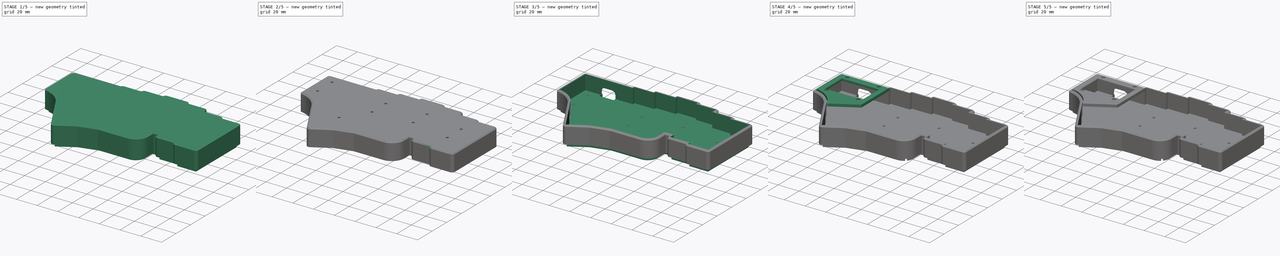
[diagram: build sequence overview — one tinted view per stage of 5, left to right]
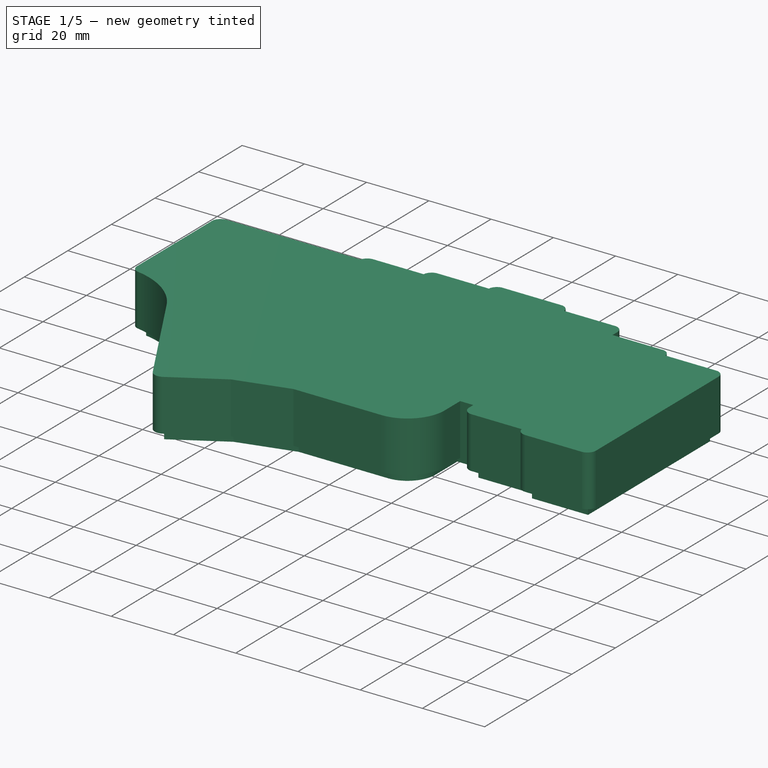
[diagram: stage 1 of 5 — iso view after this stage's code; geometry added in this stage tinted green]
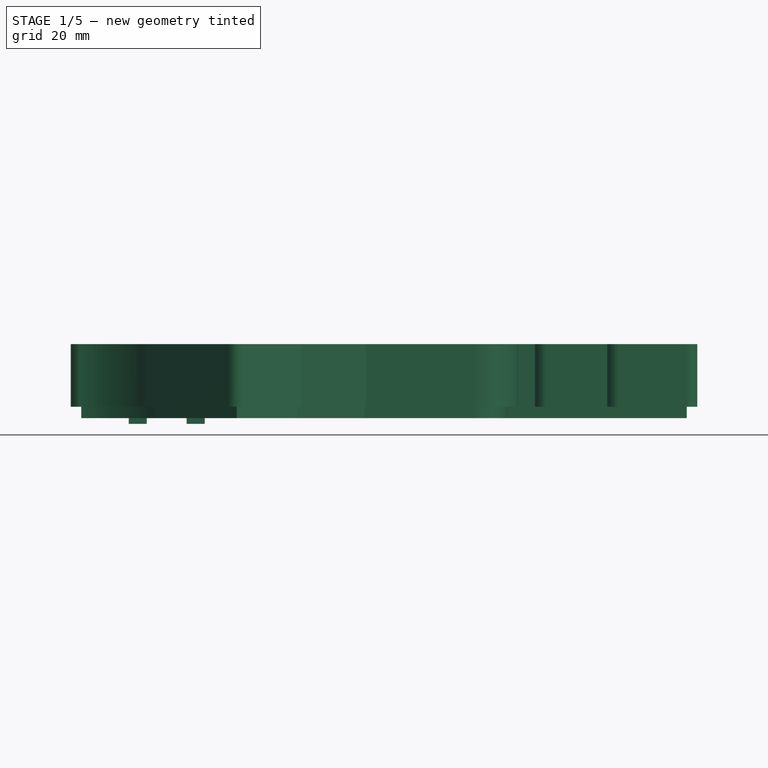
[diagram: stage 1 of 5 — front view after this stage's code; geometry added in this stage tinted green]
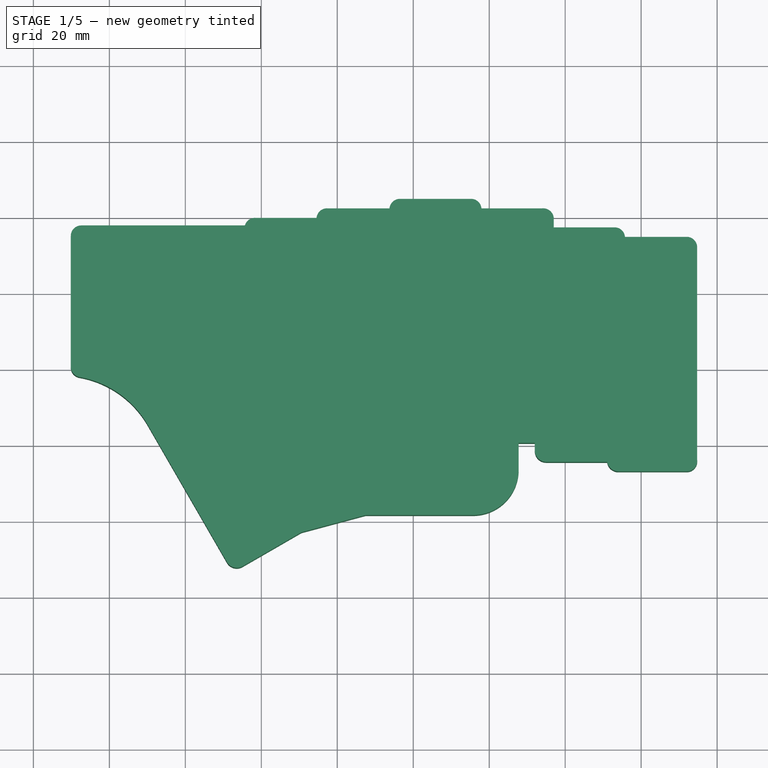
[diagram: stage 1 of 5 — top view after this stage's code; geometry added in this stage tinted green]
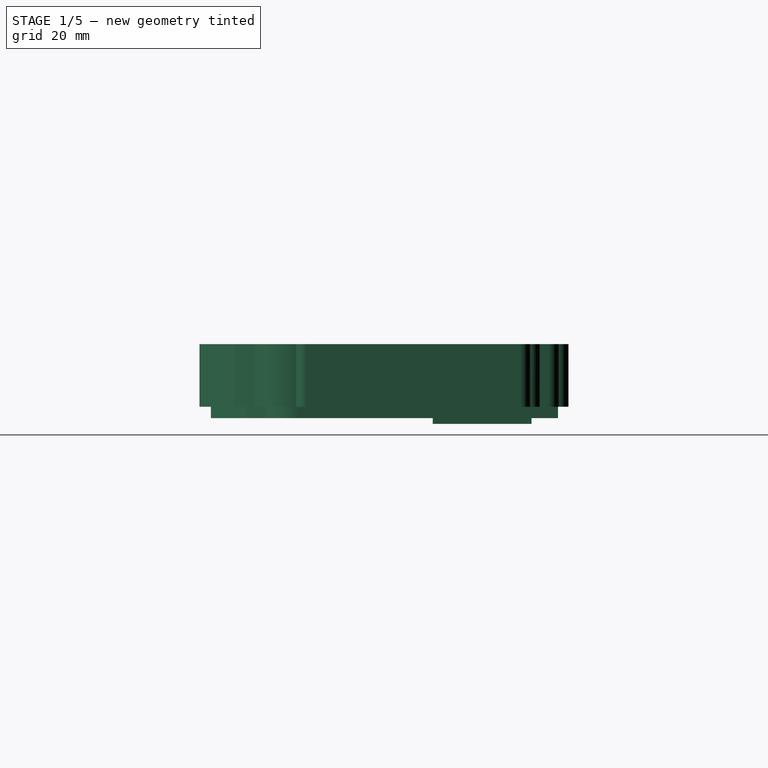
[diagram: stage 1 of 5 — right view after this stage's code; geometry added in this stage tinted green]
FCSTD DOCUMENT  (FreeCAD 1.0R39109 (Git))
Label: keyboard2
License: All rights reserved
LicenseURL: https://en.wikipedia.org/wiki/All_rights_reserved
objects: Sketcher::SketchObject×18, PartDesign::Pocket×12, PartDesign::Pad×5, PartDesign::Chamfer×5, PartDesign::ShapeBinder×4, PartDesign::Body×4, Part::Offset2D×3, PartDesign::Fillet×1
note: 116 computed .brp shape members not serialized (recipe doc carries the construction recipe); baked Part::Feature solids carry a one-line shape summary decoded from their .brp

FEATURE [Sketcher::SketchObject] Sketch
  ArcFitTolerance = 1e-06
  AttachmentSupport = -> [XY_Plane]
  FullyConstrained = false
  MakeInternals = false
  MapMode = 5
  sketch-geometry (187):
    g0: LineSegment StartX=-43 StartY=72.5 StartZ=0 EndX=-43 EndY=58.5 EndZ=0
    g1: LineSegment StartX=-43 StartY=58.5 StartZ=0 EndX=-29 EndY=58.5 EndZ=0
    g2: LineSegment StartX=-29 StartY=58.5 StartZ=0 EndX=-29 EndY=72.5 EndZ=0
    g3: LineSegment StartX=-29 StartY=72.5 StartZ=0 EndX=-43 EndY=72.5 EndZ=0
    g4: LineSegment StartX=-43 StartY=53.5 StartZ=0 EndX=-43 EndY=39.5 EndZ=0
    g5: LineSegment StartX=-43 StartY=39.5 StartZ=0 EndX=-29 EndY=39.5 EndZ=0
    g6: LineSegment StartX=-29 StartY=39.5 StartZ=0 EndX=-29 EndY=53.5 EndZ=0
    g7: LineSegment StartX=-29 StartY=53.5 StartZ=0 EndX=-43 EndY=53.5 EndZ=0
    g8: LineSegment StartX=-43 StartY=34.5 StartZ=0 EndX=-43 EndY=20.5 EndZ=0
    g9: LineSegment StartX=-43 StartY=20.5 StartZ=0 EndX=-29 EndY=20.5 EndZ=0
    g10: LineSegment StartX=-29 StartY=20.5 StartZ=0 EndX=-29 EndY=34.5 EndZ=0
    g11: LineSegment StartX=-29 StartY=34.5 StartZ=0 EndX=-43 EndY=34.5 EndZ=0
    g12: LineSegment StartX=-119 StartY=75 StartZ=0 EndX=-119 EndY=61 EndZ=0
    g13: LineSegment StartX=-119 StartY=61 StartZ=0 EndX=-105 EndY=61 EndZ=0
    g14: LineSegment StartX=-105 StartY=61 StartZ=0 EndX=-105 EndY=75 EndZ=0
    g15: LineSegment StartX=-105 StartY=75 StartZ=0 EndX=-119 EndY=75 EndZ=0
    g16: LineSegment StartX=-119 StartY=56 StartZ=0 EndX=-119 EndY=42 EndZ=0
    g17: LineSegment StartX=-119 StartY=42 StartZ=0 EndX=-105 EndY=42 EndZ=0
    g18: LineSegment StartX=-105 StartY=42 StartZ=0 EndX=-105 EndY=56 EndZ=0
    g19: LineSegment StartX=-105 StartY=56 StartZ=0 EndX=-119 EndY=56 EndZ=0
    g20: LineSegment StartX=-119 StartY=37 StartZ=0 EndX=-119 EndY=23 EndZ=0
    g21: LineSegment StartX=-119 StartY=23 StartZ=0 EndX=-105 EndY=23 EndZ=0
    g22: LineSegment StartX=-105 StartY=23 StartZ=0 EndX=-105 EndY=37 EndZ=0
    g23: LineSegment StartX=-105 StartY=37 StartZ=0 EndX=-119 EndY=37 EndZ=0
    g24: LineSegment StartX=-62 StartY=77.5 StartZ=0 EndX=-62 EndY=63.5 EndZ=0
    g25: LineSegment StartX=-62 StartY=63.5 StartZ=0 EndX=-48 EndY=63.5 EndZ=0
    g26: LineSegment StartX=-48 StartY=63.5 StartZ=0 EndX=-48 EndY=77.5 EndZ=0
    g27: LineSegment StartX=-48 StartY=77.5 StartZ=0 EndX=-62 EndY=77.5 EndZ=0
    g28: LineSegment StartX=-62 StartY=58.5 StartZ=0 EndX=-62 EndY=44.5 EndZ=0
    g29: LineSegment StartX=-62 StartY=44.5 StartZ=0 EndX=-48 EndY=44.5 EndZ=0
    g30: LineSegment StartX=-48 StartY=44.5 StartZ=0 EndX=-48 EndY=58.5 EndZ=0
    g31: LineSegment StartX=-48 StartY=58.5 StartZ=0 EndX=-62 EndY=58.5 EndZ=0
    g32: LineSegment StartX=-62 StartY=39.5 StartZ=0 EndX=-62 EndY=25.5 EndZ=0
    g33: LineSegment StartX=-62 StartY=25.5 StartZ=0 EndX=-48 EndY=25.5 EndZ=0
    g34: LineSegment StartX=-48 StartY=25.5 StartZ=0 EndX=-48 EndY=39.5 EndZ=0
    g35: LineSegment StartX=-48 StartY=39.5 StartZ=0 EndX=-62 EndY=39.5 EndZ=0
    g36: LineSegment StartX=-24 StartY=70 StartZ=0 EndX=-24 EndY=56 EndZ=0
    g37: LineSegment StartX=-24 StartY=56 StartZ=0 EndX=-10 EndY=56 EndZ=0
    g38: LineSegment StartX=-10 StartY=56 StartZ=0 EndX=-10 EndY=70 EndZ=0
    g39: LineSegment StartX=-10 StartY=70 StartZ=0 EndX=-24 EndY=70 EndZ=0
    g40: LineSegment StartX=-24 StartY=51 StartZ=0 EndX=-24 EndY=37 EndZ=0
    g41: LineSegment StartX=-24 StartY=37 StartZ=0 EndX=-10 EndY=37 EndZ=0
    g42: LineSegment StartX=-10 StartY=37 StartZ=0 EndX=-10 EndY=51 EndZ=0
    g43: LineSegment StartX=-10 StartY=51 StartZ=0 EndX=-24 EndY=51 EndZ=0
    g44: LineSegment StartX=-24 StartY=32 StartZ=0 EndX=-24 EndY=18 EndZ=0
    g45: LineSegment StartX=-24 StartY=18 StartZ=0 EndX=-10 EndY=18 EndZ=0
    g46: LineSegment StartX=-10 StartY=18 StartZ=0 EndX=-10 EndY=32 EndZ=0
    g47: LineSegment StartX=-10 StartY=32 StartZ=0 EndX=-24 EndY=32 EndZ=0
    g48: LineSegment StartX=-81 StartY=80 StartZ=0 EndX=-81 EndY=66 EndZ=0
    g49: LineSegment StartX=-81 StartY=66 StartZ=0 EndX=-67 EndY=66 EndZ=0
    g50: LineSegment StartX=-67 StartY=66 StartZ=0 EndX=-67 EndY=80 EndZ=0
    g51: LineSegment StartX=-67 StartY=80 StartZ=0 EndX=-81 EndY=80 EndZ=0
    g52: LineSegment StartX=-81 StartY=61 StartZ=0 EndX=-81 EndY=47 EndZ=0
    g53: LineSegment StartX=-81 StartY=47 StartZ=0 EndX=-67 EndY=47 EndZ=0
    g54: LineSegment StartX=-67 StartY=47 StartZ=0 EndX=-67 EndY=61 EndZ=0
    g55: LineSegment StartX=-67 StartY=61 StartZ=0 EndX=-81 EndY=61 EndZ=0
    g56: LineSegment StartX=-81 StartY=42 StartZ=0 EndX=-81 EndY=28 EndZ=0
    g57: LineSegment StartX=-81 StartY=28 StartZ=0 EndX=-67 EndY=28 EndZ=0
    g58: LineSegment StartX=-67 StartY=28 StartZ=0 EndX=-67 EndY=42 EndZ=0
    g59: LineSegment StartX=-67 StartY=42 StartZ=0 EndX=-81 EndY=42 EndZ=0
    g60: LineSegment StartX=-100 StartY=77.5 StartZ=0 EndX=-100 EndY=63.5 EndZ=0
    g61: LineSegment StartX=-100 StartY=63.5 StartZ=0 EndX=-86 EndY=63.5 EndZ=0
    g62: LineSegment StartX=-86 StartY=63.5 StartZ=0 EndX=-86 EndY=77.5 EndZ=0
    g63: LineSegment StartX=-86 StartY=77.5 StartZ=0 EndX=-100 EndY=77.5 EndZ=0
    g64: LineSegment StartX=-100 StartY=58.5 StartZ=0 EndX=-100 EndY=44.5 EndZ=0
    g65: LineSegment StartX=-100 StartY=44.5 StartZ=0 EndX=-86 EndY=44.5 EndZ=0
    g66: LineSegment StartX=-86 StartY=44.5 StartZ=0 EndX=-86 EndY=58.5 EndZ=0
    g67: LineSegment StartX=-86 StartY=58.5 StartZ=0 EndX=-100 EndY=58.5 EndZ=0
    g68: LineSegment StartX=-100 StartY=39.5 StartZ=0 EndX=-100 EndY=25.5 EndZ=0
    g69: LineSegment StartX=-100 StartY=25.5 StartZ=0 EndX=-86 EndY=25.5 EndZ=0
    g70: LineSegment StartX=-86 StartY=25.5 StartZ=0 EndX=-86 EndY=39.5 EndZ=0
    g71: LineSegment StartX=-86 StartY=39.5 StartZ=0 EndX=-100 EndY=39.5 EndZ=0
    g72: LineSegment [constr] StartX=-140 StartY=85 StartZ=0 EndX=0 EndY=85 EndZ=0
    g73: LineSegment StartX=-76.5 StartY=20.5 StartZ=0 EndX=-90.5 EndY=20.5 EndZ=0
    g74: LineSegment [constr] StartX=-90.5 StartY=20.5 StartZ=0 EndX=-90.5 EndY=6.5 EndZ=0
    g75: LineSegment StartX=-90.5 StartY=6.5 StartZ=0 EndX=-76.5 EndY=6.5 EndZ=0
    g76: LineSegment StartX=-76.5 StartY=6.5 StartZ=0 EndX=-76.5 EndY=20.5 EndZ=0
    g77: GeomPoint [constr] X=-83.5 Y=13.5 Z=0
    g78: LineSegment [constr] StartX=-83.5 StartY=15.2746 StartZ=0 EndX=-83.5 EndY=31.5846 EndZ=0
    g79: LineSegment StartX=-90.5 StartY=20.5 StartZ=0 EndX=-90.5 EndY=6.5 EndZ=0
    g80: LineSegment StartX=-99.0856 StartY=19.4084 StartZ=0 EndX=-112.609 EndY=15.7849 EndZ=0
    g81: LineSegment StartX=-112.609 StartY=15.7849 StartZ=0 EndX=-108.985 EndY=2.26196 EndZ=0
    g82: LineSegment StartX=-108.985 StartY=2.26196 StartZ=0 EndX=-95.4621 EndY=5.88543 EndZ=0
    g83: LineSegment StartX=-95.4621 StartY=5.88543 StartZ=0 EndX=-99.0856 EndY=19.4084 EndZ=0
    g84: LineSegment StartX=-120.599 StartY=12.4595 StartZ=0 EndX=-132.723 EndY=5.4595 EndZ=0
    g85: LineSegment StartX=-132.723 StartY=5.4595 StartZ=0 EndX=-125.723 EndY=-6.66486 EndZ=0
    g86: LineSegment StartX=-125.723 StartY=-6.66486 StartZ=0 EndX=-113.599 EndY=0.335142 EndZ=0
    g87: LineSegment StartX=-113.599 StartY=0.335142 StartZ=0 EndX=-120.599 EndY=12.4595 EndZ=0
    g88: LineSegment [constr] StartX=-90.5 StartY=20.5 StartZ=0 EndX=-90.5 EndY=-26.7243 EndZ=0
    g89: LineSegment StartX=-130.099 StartY=28.914 StartZ=0 EndX=-142.223 EndY=21.914 EndZ=0
    g90: LineSegment StartX=-142.223 StartY=21.914 StartZ=0 EndX=-135.223 EndY=9.78962 EndZ=0
    g91: LineSegment StartX=-135.223 StartY=9.78962 StartZ=0 EndX=-123.099 EndY=16.7896 EndZ=0
    g92: LineSegment StartX=-123.099 StartY=16.7896 StartZ=0 EndX=-130.099 EndY=28.914 EndZ=0
    g93: LineSegment StartX=-121.5 StartY=77 StartZ=0 EndX=-102.5 EndY=77 EndZ=0
    g94: LineSegment StartX=-102.5 StartY=77 StartZ=0 EndX=-102.5 EndY=79.5 EndZ=0
    g95: LineSegment StartX=-102.5 StartY=79.5 StartZ=0 EndX=-83.3 EndY=79.5 EndZ=0
    g96: LineSegment StartX=-83.3 StartY=79.5 StartZ=0 EndX=-83.3 EndY=82 EndZ=0
    g97: LineSegment StartX=-83.3 StartY=82 StartZ=0 EndX=-65 EndY=82 EndZ=0
    g98: LineSegment StartX=-65 StartY=82 StartZ=0 EndX=-65 EndY=79.5 EndZ=0
    g99: LineSegment StartX=-65 StartY=79.5 StartZ=0 EndX=-46 EndY=79.5 EndZ=0
    g100: LineSegment StartX=-46 StartY=79.5 StartZ=0 EndX=-46 EndY=74.5 EndZ=0
    g101: LineSegment StartX=-46 StartY=74.5 StartZ=0 EndX=-27 EndY=74.5 EndZ=0
    g102: LineSegment StartX=-27 StartY=74.5 StartZ=0 EndX=-27 EndY=72 EndZ=0
    g103: LineSegment StartX=-27 StartY=72 StartZ=0 EndX=-8 EndY=72 EndZ=0
    g104: LineSegment StartX=-8 StartY=16 StartZ=0 EndX=-26 EndY=16 EndZ=0
    g105: LineSegment StartX=-26 StartY=16 StartZ=0 EndX=-26 EndY=18.5 EndZ=0
    g106: LineSegment StartX=-26 StartY=18.5 StartZ=0 EndX=-45 EndY=18.5 EndZ=0
    g107: LineSegment StartX=-45 StartY=18.5 StartZ=0 EndX=-45 EndY=23.5 EndZ=0
    g108: LineSegment StartX=-45 StartY=23.5 StartZ=0 EndX=-55.25 EndY=23.5 EndZ=0
    g109: LineSegment StartX=-92.9052 StartY=4.5 StartZ=0 EndX=-110.595 EndY=-0.239977 EndZ=0
    g110: LineSegment StartX=-110.595 StartY=-0.239977 StartZ=0 EndX=-126.455 EndY=-9.39691 EndZ=0
    g111: LineSegment StartX=-121.5 StartY=75 StartZ=0 EndX=-121.5 EndY=77 EndZ=0
    g112: LineSegment StartX=-8 StartY=72 StartZ=0 EndX=-8 EndY=16 EndZ=0
    g113: ArcOfCircle CenterX=-64.25 CenterY=13.5 CenterZ=0 NormalX=0 NormalY=0 NormalZ=1 AngleXU=0 Radius=9 StartAngle=4.71239 EndAngle=6.28319
    g114: LineSegment StartX=-55.25 StartY=13.5 StartZ=0 EndX=-55.25 EndY=23.5 EndZ=0
    g115: Circle [constr] CenterX=-64.5 CenterY=14 CenterZ=0 NormalX=0 NormalY=0 NormalZ=1 AngleXU=0 Radius=7.25
    g116: Circle CenterX=-64.5 CenterY=14 CenterZ=0 NormalX=0 NormalY=0 NormalZ=1 AngleXU=0 Radius=3.5
    g117: LineSegment StartX=-64.25 StartY=4.5 StartZ=0 EndX=-92.9052 EndY=4.5 EndZ=0
    g118: LineSegment StartX=-126.455 StartY=-9.39691 StartZ=0 EndX=-147.318 EndY=26.7385 EndZ=0
    g119: LineSegment [constr] StartX=-162.6 StartY=74.9 StartZ=0 EndX=-162.6 EndY=41.4 EndZ=0
    g120: LineSegment [constr] StartX=-162.6 StartY=41.4 StartZ=0 EndX=-127.2 EndY=41.4 EndZ=0
    g121: LineSegment [constr] StartX=-127.2 StartY=41.4 StartZ=0 EndX=-127.2 EndY=74.9 EndZ=0
    g122: LineSegment [constr] StartX=-127.2 StartY=74.9 StartZ=0 EndX=-162.6 EndY=74.9 EndZ=0
    g123: Circle [constr] CenterX=-160.1 CenterY=72.4 CenterZ=0 NormalX=0 NormalY=0 NormalZ=1 AngleXU=0 Radius=1.7
    g124: Circle [constr] CenterX=-129.7 CenterY=72.4 CenterZ=0 NormalX=0 NormalY=0 NormalZ=1 AngleXU=0 Radius=1.7
    g125: Circle [constr] CenterX=-129.7 CenterY=43.9 CenterZ=0 NormalX=0 NormalY=0 NormalZ=1 AngleXU=0 Radius=1.7
    g126: Circle [constr] CenterX=-160.1 CenterY=43.9 CenterZ=0 NormalX=0 NormalY=0 NormalZ=1 AngleXU=0 Radius=1.7
    g127: LineSegment [constr] StartX=-150.15 StartY=74 StartZ=0 EndX=-150.15 EndY=71 EndZ=0
    g128: LineSegment [constr] StartX=-150.15 StartY=71 StartZ=0 EndX=-139.65 EndY=71 EndZ=0
    g129: LineSegment [constr] StartX=-139.65 StartY=71 StartZ=0 EndX=-139.65 EndY=74 EndZ=0
    g130: LineSegment [constr] StartX=-139.65 StartY=74 StartZ=0 EndX=-150.15 EndY=74 EndZ=0
    g131: LineSegment [constr] StartX=-127.2 StartY=69.3 StartZ=0 EndX=-162.6 EndY=69.3 EndZ=0
    g132: LineSegment [constr] StartX=-162.6 StartY=69.3 StartZ=0 EndX=-162.6 EndY=46.3 EndZ=0
    g133: LineSegment [constr] StartX=-162.6 StartY=46.3 StartZ=0 EndX=-127.2 EndY=46.3 EndZ=0
    g134: LineSegment [constr] StartX=-127.2 StartY=46.3 StartZ=0 EndX=-127.2 EndY=69.3 EndZ=0
    g135: LineSegment [constr] StartX=-121.5 StartY=75 StartZ=0 EndX=-167.4 EndY=75 EndZ=0
    g136: LineSegment [constr] StartX=-167.4 StartY=75 StartZ=0 EndX=-167.4 EndY=40.8 EndZ=0
    g137: LineSegment [constr] StartX=-167.4 StartY=40.8 StartZ=0 EndX=-121.5 EndY=40.8 EndZ=0
    g138: LineSegment [constr] StartX=-121.5 StartY=40.8 StartZ=0 EndX=-121.5 EndY=75 EndZ=0
    g139: LineSegment StartX=-121.5 StartY=75 StartZ=0 EndX=-167.4 EndY=75 EndZ=0
    g140: ArcOfCircle CenterX=-172.437 CenterY=12.2363 CenterZ=0 NormalX=0 NormalY=0 NormalZ=1 AngleXU=0 Radius=29.0044 StartAngle=0.523599 EndAngle=1.39626
    g141: LineSegment StartX=-167.4 StartY=40.8 StartZ=0 EndX=-167.4 EndY=75 EndZ=0
    g142: Circle CenterX=-160.1 CenterY=72.4 CenterZ=0 NormalX=0 NormalY=0 NormalZ=1 AngleXU=0 Radius=1.7
    g143: Circle CenterX=-129.7 CenterY=72.4 CenterZ=0 NormalX=0 NormalY=0 NormalZ=1 AngleXU=0 Radius=1.7
    g144: Circle CenterX=-129.7 CenterY=43.9 CenterZ=0 NormalX=0 NormalY=0 NormalZ=1 AngleXU=0 Radius=1.7
    g145: Circle CenterX=-160.1 CenterY=43.9 CenterZ=0 NormalX=0 NormalY=0 NormalZ=1 AngleXU=0 Radius=1.7
    g146: Circle CenterX=-102.5 CenterY=59.75 CenterZ=0 NormalX=0 NormalY=0 NormalZ=1 AngleXU=0 Radius=1.2
    g147: Circle CenterX=-102.5 CenterY=40.75 CenterZ=0 NormalX=0 NormalY=0 NormalZ=1 AngleXU=0 Radius=1.2
    g148: Circle CenterX=-117.745 CenterY=17.4182 CenterZ=0 NormalX=0 NormalY=0 NormalZ=1 AngleXU=0 Radius=1.2
    g149: Circle CenterX=-64.5 CenterY=62.25 CenterZ=0 NormalX=0 NormalY=0 NormalZ=1 AngleXU=0 Radius=1.2
    g150: Circle CenterX=-64.5 CenterY=43.25 CenterZ=0 NormalX=0 NormalY=0 NormalZ=1 AngleXU=0 Radius=1.2
    g151: Circle CenterX=-26.5 CenterY=54.75 CenterZ=0 NormalX=0 NormalY=0 NormalZ=1 AngleXU=0 Radius=1.2
    g152: Circle CenterX=-26.5 CenterY=35.75 CenterZ=0 NormalX=0 NormalY=0 NormalZ=1 AngleXU=0 Radius=1.2
    g153: LineSegment [constr] StartX=-102.5 StartY=59.75 StartZ=0 EndX=-100 EndY=63.5 EndZ=0
    g154: LineSegment [constr] StartX=-102.5 StartY=59.75 StartZ=0 EndX=-105 EndY=61 EndZ=0
    g155: LineSegment [constr] StartX=-102.5 StartY=59.75 StartZ=0 EndX=-105 EndY=56 EndZ=0
    g156: LineSegment [constr] StartX=-102.5 StartY=59.75 StartZ=0 EndX=-100 EndY=58.5 EndZ=0
    g157: LineSegment [constr] StartX=-64.5 StartY=62.25 StartZ=0 EndX=-67 EndY=66 EndZ=0
    g158: LineSegment [constr] StartX=-64.5 StartY=62.25 StartZ=0 EndX=-62 EndY=63.5 EndZ=0
    g159: LineSegment [constr] StartX=-64.5 StartY=62.25 StartZ=0 EndX=-67 EndY=61 EndZ=0
    g160: LineSegment [constr] StartX=-102.5 StartY=40.75 StartZ=0 EndX=-105 EndY=42 EndZ=0
    g161: LineSegment [constr] StartX=-102.5 StartY=40.75 StartZ=0 EndX=-100 EndY=44.5 EndZ=0
    g162: LineSegment [constr] StartX=-102.5 StartY=40.75 StartZ=0 EndX=-100 EndY=39.5 EndZ=0
    g163: LineSegment [constr] StartX=-64.5 StartY=43.25 StartZ=0 EndX=-62 EndY=44.5 EndZ=0
    g164: LineSegment [constr] StartX=-64.5 StartY=43.25 StartZ=0 EndX=-67 EndY=47 EndZ=0
    g165: LineSegment [constr] StartX=-64.5 StartY=43.25 StartZ=0 EndX=-67 EndY=42 EndZ=0
    g166: LineSegment [constr] StartX=-64.5 StartY=43.25 StartZ=0 EndX=-62 EndY=39.5 EndZ=0
    g167: LineSegment [constr] StartX=-26.5 StartY=54.75 StartZ=0 EndX=-29 EndY=58.5 EndZ=0
    g168: LineSegment [constr] StartX=-26.5 StartY=54.75 StartZ=0 EndX=-24 EndY=56 EndZ=0
    g169: LineSegment [constr] StartX=-26.5 StartY=54.75 StartZ=0 EndX=-24 EndY=51 EndZ=0
    g170: LineSegment [constr] StartX=-26.5 StartY=35.75 StartZ=0 EndX=-29 EndY=39.5 EndZ=0
    g171: LineSegment [constr] StartX=-26.5 StartY=35.75 StartZ=0 EndX=-24 EndY=37 EndZ=0
    g172: LineSegment [constr] StartX=-26.5 StartY=35.75 StartZ=0 EndX=-29 EndY=34.5 EndZ=0
    g173: LineSegment [constr] StartX=-26.5 StartY=35.75 StartZ=0 EndX=-24 EndY=32 EndZ=0
    g174: LineSegment [constr] StartX=-117.745 StartY=17.4182 StartZ=0 EndX=-119 EndY=23 EndZ=0
    g175: LineSegment [constr] StartX=-117.745 StartY=17.4182 StartZ=0 EndX=-123.099 EndY=16.7896 EndZ=0
    g176: LineSegment [constr] StartX=-117.745 StartY=17.4182 StartZ=0 EndX=-120.599 EndY=12.4595 EndZ=0
    g177: LineSegment [constr] StartX=-117.745 StartY=17.4182 StartZ=0 EndX=-112.609 EndY=15.7849 EndZ=0
    g178: LineSegment [constr] StartX=-64.5 StartY=62.25 StartZ=0 EndX=-62 EndY=58.5 EndZ=0
    g179: LineSegment [constr] StartX=-29 StartY=53.5 StartZ=0 EndX=-26.5 EndY=54.75 EndZ=0
    g180: LineSegment [constr] StartX=-105 StartY=37 StartZ=0 EndX=-102.5 EndY=40.75 EndZ=0
    g181: LineSegment StartX=-150.15 StartY=74 StartZ=0 EndX=-150.15 EndY=71 EndZ=0
    g182: LineSegment StartX=-150.15 StartY=71 StartZ=0 EndX=-139.65 EndY=71 EndZ=0
    g183: LineSegment StartX=-139.65 StartY=71 StartZ=0 EndX=-139.65 EndY=74 EndZ=0
    g184: LineSegment StartX=-139.65 StartY=74 StartZ=0 EndX=-150.15 EndY=74 EndZ=0
    g185: Circle CenterX=-160.1 CenterY=68.1 CenterZ=0 NormalX=0 NormalY=0 NormalZ=1 AngleXU=0 Radius=1.2
    g186: Circle CenterX=-160.1 CenterY=48.2 CenterZ=0 NormalX=0 NormalY=0 NormalZ=1 AngleXU=0 Radius=1.2
  constraints (519):
    c: Coincident(g0,g1)
    c: Coincident(g1,g2)
    c: Coincident(g2,g3)
    c: Coincident(g3,g0)
    c: Vertical(g0)
    c: Vertical(g2)
    c: Horizontal(g1)
    c: Horizontal(g3)
    c: DistanceX(g1,g1) = 14  'Switch width'
    c: DistanceY(g0,g0) = 14  'switch height'
    c: Coincident(g4,g5)
    c: Coincident(g5,g6)
    c: Coincident(g6,g7)
    c: Coincident(g7,g4)
    c: Vertical(g4)
    c: Vertical(g6)
    c: Horizontal(g5)
    c: Horizontal(g7)
    c: Coincident(g8,g9)
    c: Coincident(g9,g10)
    c: Coincident(g10,g11)
    c: Coincident(g11,g8)
    c: Vertical(g8)
    c: Vertical(g10)
    c: Horizontal(g9)
    c: Horizontal(g11)
    c: Equal(g4,g0)
    c: Equal(g8,g0)
    c: Equal(g7,g3)
    c: Equal(g11,g3)
    c: Vertical(g1,g6)
    c: Vertical(g10,g5)
    c: Distance(g6,g1) = 5
    c: Distance(g10,g5) = 5
    c: Coincident(g12,g13)
    c: Coincident(g13,g14)
    c: Coincident(g14,g15)
    c: Coincident(g15,g12)
    c: Vertical(g12)
    c: Vertical(g14)
    c: Horizontal(g13)
    c: Horizontal(g15)
    c: DistanceX(g13,g13) = 14
    c: DistanceY(g12,g12) = 14
    c: Coincident(g16,g17)
    c: Coincident(g17,g18)
    c: Coincident(g18,g19)
    c: Coincident(g19,g16)
    c: Vertical(g16)
    c: Vertical(g18)
    c: Horizontal(g17)
    c: Horizontal(g19)
    c: Coincident(g20,g21)
    c: Coincident(g21,g22)
    c: Coincident(g22,g23)
    c: Coincident(g23,g20)
    c: Vertical(g20)
    c: Vertical(g22)
    c: Horizontal(g21)
    c: Horizontal(g23)
    c: Equal(g16,g12)
    c: Equal(g20,g12)
    c: Equal(g19,g15)
    c: Equal(g23,g15)
    c: Vertical(g13,g18)
    c: Vertical(g22,g17)
    c: Distance(g18,g13) = 5
    c: Distance(g22,g17) = 5
    c: Coincident(g24,g25)
    c: Coincident(g25,g26)
    c: Coincident(g26,g27)
    c: Coincident(g27,g24)
    c: Vertical(g24)
    c: Vertical(g26)
    c: Horizontal(g25)
    c: Horizontal(g27)
    c: DistanceX(g25,g25) = 14
    c: DistanceY(g24,g24) = 14
    c: Coincident(g28,g29)
    c: Coincident(g29,g30)
    c: Coincident(g30,g31)
    c: Coincident(g31,g28)
    c: Vertical(g28)
    c: Vertical(g30)
    c: Horizontal(g29)
    c: Horizontal(g31)
    c: Coincident(g32,g33)
    c: Coincident(g33,g34)
    c: Coincident(g34,g35)
    c: Coincident(g35,g32)
    c: Vertical(g32)
    c: Vertical(g34)
    c: Horizontal(g33)
    c: Horizontal(g35)
    c: Equal(g28,g24)
    c: Equal(g32,g24)
    c: Equal(g31,g27)
    c: Equal(g35,g27)
    c: Vertical(g25,g30)
    c: Vertical(g34,g29)
    c: Distance(g30,g25) = 5
    c: Distance(g34,g29) = 5
    c: Coincident(g36,g37)
    c: Coincident(g37,g38)
    c: Coincident(g38,g39)
    c: Coincident(g39,g36)
    c: Vertical(g36)
    c: Vertical(g38)
    c: Horizontal(g37)
    c: Horizontal(g39)
    c: DistanceX(g37,g37) = 14
    c: DistanceY(g36,g36) = 14
    c: Coincident(g40,g41)
    c: Coincident(g41,g42)
    c: Coincident(g42,g43)
    c: Coincident(g43,g40)
    c: Vertical(g40)
    c: Vertical(g42)
    c: Horizontal(g41)
    c: Horizontal(g43)
    c: Coincident(g44,g45)
    c: Coincident(g45,g46)
    c: Coincident(g46,g47)
    c: Coincident(g47,g44)
    c: Vertical(g44)
    c: Vertical(g46)
    c: Horizontal(g45)
    c: Horizontal(g47)
    c: Equal(g40,g36)
    c: Equal(g44,g36)
    c: Equal(g43,g39)
    c: Equal(g47,g39)
    c: Vertical(g46,g41)
    c: Distance(g46,g41) = 5
    c: Coincident(g48,g49)
    c: Coincident(g49,g50)
    c: Coincident(g50,g51)
    c: Coincident(g51,g48)
    c: Vertical(g48)
    c: Vertical(g50)
    c: Horizontal(g49)
    c: Horizontal(g51)
    c: DistanceX(g49,g49) = 14
    c: DistanceY(g48,g48) = 14
    c: Coincident(g52,g53)
    c: Coincident(g53,g54)
    c: Coincident(g54,g55)
    c: Coincident(g55,g52)
    c: Vertical(g52)
    c: Vertical(g54)
    c: Horizontal(g53)
    c: Horizontal(g55)
    c: Coincident(g56,g57)
    c: Coincident(g57,g58)
    c: Coincident(g58,g59)
    c: Coincident(g59,g56)
    c: Vertical(g56)
    c: Vertical(g58)
    c: Horizontal(g57)
    c: Horizontal(g59)
    c: Equal(g52,g48)
    c: Equal(g56,g48)
    c: Equal(g55,g51)
    c: Equal(g59,g51)
    c: Vertical(g49,g54)
    c: Vertical(g58,g53)
    c: Distance(g54,g49) = 5
    c: Distance(g58,g53) = 5
    c: Coincident(g60,g61)
    c: Coincident(g61,g62)
    c: Coincident(g62,g63)
    c: Coincident(g63,g60)
    c: Vertical(g60)
    c: Vertical(g62)
    c: Horizontal(g61)
    c: Horizontal(g63)
    c: DistanceX(g61,g61) = 14
    c: DistanceY(g60,g60) = 14
    c: Coincident(g64,g65)
    c: Coincident(g65,g66)
    c: Coincident(g66,g67)
    c: Coincident(g67,g64)
    c: Vertical(g64)
    c: Vertical(g66)
    c: Horizontal(g65)
    c: Horizontal(g67)
    c: Coincident(g68,g69)
    c: Coincident(g69,g70)
    c: Coincident(g70,g71)
    c: Coincident(g71,g68)
    c: Vertical(g68)
    c: Vertical(g70)
    c: Horizontal(g69)
    c: Horizontal(g71)
    c: Equal(g64,g60)
    c: Equal(g68,g60)
    c: Equal(g67,g63)
    c: Equal(g71,g63)
    c: Vertical(g61,g66)
    c: Vertical(g70,g65)
    c: Distance(g66,g61) = 5
    c: Distance(g70,g65) = 5
    c: Distance(g14,g60) = 5
    c: Distance(g48,g62) = 5
    c: Distance(g50,g24) = 5
    c: Distance(g26,g0) = 5
    c: Distance(g2,g36) = 5
    c: Horizontal(g72)
    c: Distance(g48,g72) = 5
    c: Distance(g60,g72) = 7.5
    c: Distance(g12,g72) = 10
    c: Distance(g24,g72) = 7.5
    c: Distance(g0,g72) = 12.5
    c: Distance(g36,g72) = 15
    c: DistanceX(g72,g72) = 140
    c: Vertical(g72,g-1)
    c: Distance(g-1,g72) = 85
    c: DistanceY(g42,g37) = 5
    c: DistanceX(g6,g40) = 5
    c: DistanceX(g38,g72) = 10
    c: Coincident(g73,g74)
    c: Coincident(g74,g75)
    c: Coincident(g75,g76)
    c: Coincident(g76,g73)
    c: Horizontal(g73)
    c: Horizontal(g75)
    c: Vertical(g74)
    c: Vertical(g76)
    c: Symmetric(g75,g73,g77)
    c: Equal(g73,g71)
    c: Equal(g74,g68)
    c: Distance(g69,g73) = 5
    c: Vertical(g78)
    c: Distance(g69,g78) = 2.5
    c: Coincident(g79,g73)
    c: Coincident(g79,g74)
    c: Distance(g78,g79) = 7
    c: Coincident(g80,g81)
    c: Coincident(g81,g82)
    c: Coincident(g82,g83)
    c: Coincident(g83,g80)
    c: Angle(g82,g81) = 1.5708
    c: Angle(g80,g83) = 1.5708
    c: Angle(g81,g80) = 1.5708
    c: Distance(g80,g80) = 14
    c: Distance(g82,g80) = 14
    c: Coincident(g84,g85)
    c: Coincident(g85,g86)
    c: Coincident(g86,g87)
    c: Coincident(g87,g84)
    c: Distance(g84) = 14
    c: Distance(g85) = 14
    c: Angle(g85,g84) = 1.5708
    c: Angle(g86,g85) = 1.5708
    c: Coincident(g88,g73)
    c: Vertical(g88)
    c: Angle(g82,g88) = 1.309
    c: Distance(g21,g80) = 5
    c: Distance(g82,g74) = 5
    c: Coincident(g89,g90)
    c: Coincident(g90,g91)
    c: Coincident(g91,g92)
    c: Coincident(g92,g89)
    c: Parallel(g90,g85)
    c: Distance(g89,g89) = 14
    c: Distance(g90,g89) = 14
    c: Distance(g84,g91) = 5
    c: DistanceY(g78,g78) = 16.31
    c: DistanceY(g88,g88) = 47.2243
    c: Horizontal(g93)
    c: Coincident(g93,g94)
    c: Vertical(g94)
    c: Coincident(g94,g95)
    c: Horizontal(g95)
    c: Coincident(g95,g96)
    c: Vertical(g96)
    c: Coincident(g96,g97)
    c: Horizontal(g97)
    c: Coincident(g97,g98)
    c: Vertical(g98)
    c: Coincident(g98,g99)
    c: Horizontal(g99)
    c: Coincident(g99,g100)
    c: Coincident(g100,g101)
    c: Horizontal(g101)
    c: Coincident(g101,g102)
    c: Vertical(g102)
    c: Coincident(g102,g103)
    c: Horizontal(g103)
    c: Horizontal(g104)
    c: Coincident(g104,g105)
    c: Vertical(g105)
    c: Coincident(g105,g106)
    c: Horizontal(g106)
    c: Coincident(g106,g107)
    c: Coincident(g107,g108)
    c: Horizontal(g108)
    c: Coincident(g109,g110)
    c: Coincident(g111,g93)
    c: Vertical(g100)
    c: Vertical(g111)
    c: Coincident(g112,g103)
    c: Coincident(g112,g104)
    c: Vertical(g112)
    c: Distance(g14,g93) = 2
    c: Distance(g60,g94) = 2.5
    c: Distance(g60,g95) = 2
    c: Distance(g12,g111) = 2.5
    c: Distance(g48,g96) = 2.3
    c: Distance(g48,g97) = 2
    c: Distance(g50,g98) = 2
    c: Distance(g24,g99) = 2
    c: Distance(g26,g100) = 2
    c: Distance(g0,g101) = 2
    c: Distance(g102,g2) = 2
    c: Distance(g36,g103) = 2
    c: Distance(g38,g112) = 2
    c: Distance(g45,g104) = 2
    c: Distance(g9,g106) = 2
    c: Distance(g44,g105) = 2
    c: Vertical(g107)
    c: Distance(g8,g107) = 2
    c: Distance(g33,g108) = 2
    c: Coincident(g114,g108)
    c: Vertical(g114)
    c: Tangent(g114,g113) = -1.5708
    c: Diameter(g115) = 14.5
    c: Coincident(g116,g115)
    c: Diameter(g116) = 7
    c: Parallel(g109,g82)
    c: Distance(g82,g109) = 2
    c: Distance(g86,g110) = 2
    c: Coincident(g117,g109)
    c: Horizontal(g117)
    c: Tangent(g117,g113) = 1.5708
    c: DistanceX(g115,g113) = 9.25
    c: DistanceY(g113,g115) = 9.5
    c: Distance(g75,g117) = 2
    c: DistanceX(g73,g115) = 12
    c: Distance(g114) = 10
    c: Distance(g111) = 2
    c: Angle(g86,g88) = 1.0472
    c: Distance(g86,g81) = 5
    c: Parallel(g86,g110)
    c: Equal(g109,g110)
    c: Distance(g92) = 14
    c: Coincident(g118,g110)
    c: Angle(g91,g90) = 1.5708
    c: Angle(g84,g87) = 1.5708
    c: Angle(g110,g118) = 1.5708
    c: Distance(g110,g85) = 2
    c: Distance(g90,g118) = 2
    c: Angle(g89,g92) = 1.5708
    c: Coincident(g119,g120)
    c: Coincident(g120,g121)
    c: Coincident(g121,g122)
    c: Coincident(g122,g119)
    c: Vertical(g119)
    c: Vertical(g121)
    c: Horizontal(g120)
    c: Horizontal(g122)
    c: Distance(g122) = 35.4
    c: Distance(g119) = 33.5
    c: Equal(g123,g124)
    c: Equal(g124,g125)
    c: Equal(g125,g126)
    c: Diameter(g123) = 3.4
    c: Distance(g124,g121) = 2.5
    c: Distance(g124,g122) = 2.5
    c: Distance(g123,g119) = 2.5
    c: Distance(g123,g122) = 2.5
    c: Distance(g125,g121) = 2.5
    c: Distance(g125,g120) = 2.5
    c: Distance(g126,g119) = 2.5
    c: Distance(g126,g120) = 2.5
    c: Coincident(g127,g128)
    c: Coincident(g128,g129)
    c: Coincident(g129,g130)
    c: Coincident(g130,g127)
    c: Vertical(g127)
    c: Vertical(g129)
    c: Horizontal(g128)
    c: Horizontal(g130)
    c: Distance(g130) = 10.5
    c: Distance(g127,g127) = 3
    c: Distance(g129,g122) = 0.9
    c: Distance(g127,g119) = 12.45
    c: Coincident(g131,g132)
    c: Coincident(g132,g133)
    c: Coincident(g133,g134)
    c: Coincident(g134,g131)
    c: Horizontal(g131)
    c: Horizontal(g133)
    c: Vertical(g132)
    c: Vertical(g134)
    c: PointOnObject(g131,g121)
    c: PointOnObject(g132,g119)
    c: Distance(g131,g121) = 5.6
    c: Distance(g132,g131) = 23
    c: Coincident(g135,g136)
    c: Coincident(g136,g137)
    c: Coincident(g137,g138)
    c: Coincident(g138,g135)
    c: Horizontal(g135)
    c: Horizontal(g137)
    c: Vertical(g136)
    c: Vertical(g138)
    c: Distance(g131,g135) = 5.7
    c: Distance(g135,g121) = 5.7
    c: Distance(g135,g119) = 4.8
    c: Distance(g136,g133) = 5.5
    c: Coincident(g139,g111)
    c: Coincident(g139,g135)
    c: Horizontal(g139)
    c: Distance(g16,g138) = 2.5
    c: Coincident(g140,g136)
    c: Tangent(g140,g118) = -1.5708
    c: Coincident(g141,g136)
    c: Coincident(g141,g135)
    c: Angle(g140) = 0.872665
    c: Coincident(g142,g123)
    c: Equal(g142,g123)
    c: Coincident(g143,g124)
    c: Equal(g143,g124)
    c: Coincident(g144,g125)
    c: Equal(g144,g125)
    c: Coincident(g145,g126)
    c: Equal(g145,g126)
    c: Coincident(g153,g146)
    c: Coincident(g153,g60)
    c: Coincident(g154,g146)
    c: Coincident(g154,g13)
    c: Coincident(g155,g146)
    c: Coincident(g155,g18)
    c: Coincident(g156,g146)
    c: Coincident(g156,g64)
    c: Coincident(g157,g149)
    c: Coincident(g157,g49)
    c: Coincident(g158,g149)
    c: Coincident(g158,g24)
    c: Coincident(g159,g149)
    c: Coincident(g159,g54)
    c: Coincident(g160,g147)
    c: Coincident(g160,g17)
    c: Coincident(g161,g147)
    c: Coincident(g161,g64)
    c: Coincident(g162,g147)
    c: Coincident(g162,g68)
    c: Coincident(g163,g150)
    c: Coincident(g163,g28)
    c: Coincident(g164,g150)
    c: Coincident(g164,g53)
    c: Coincident(g165,g150)
    c: Coincident(g165,g58)
    c: Coincident(g166,g150)
    c: Coincident(g166,g32)
    c: Coincident(g167,g151)
    c: Coincident(g167,g1)
    c: Coincident(g168,g151)
    c: Coincident(g168,g36)
    c: Coincident(g169,g151)
    c: Coincident(g169,g40)
    c: Coincident(g170,g152)
    c: Coincident(g170,g5)
    c: Coincident(g171,g152)
    c: Coincident(g171,g40)
    c: Coincident(g172,g152)
    c: Coincident(g172,g10)
    c: Coincident(g173,g152)
    c: Coincident(g173,g44)
    c: Coincident(g174,g148)
    c: Coincident(g174,g20)
    c: Coincident(g175,g148)
    c: Coincident(g175,g91)
    c: Coincident(g176,g148)
    c: Coincident(g176,g84)
    c: Coincident(g177,g148)
    c: Coincident(g177,g80)
    c: Equal(g153,g155)
    c: Equal(g156,g154)
    c: Equal(g162,g160)
    c: Coincident(g178,g149)
    c: Coincident(g178,g28)
    c: Equal(g158,g159)
    c: Equal(g178,g157)
    c: Equal(g166,g164)
    c: Equal(g163,g165)
    c: Equal(g176,g174)
    c: Equal(g177,g175)
    c: Equal(g167,g169)
    c: Coincident(g179,g6)
    c: Coincident(g179,g151)
    c: Equal(g168,g179)
    c: Equal(g171,g172)
    c: Equal(g173,g170)
    c: Diameter(g146) = 2.4
    c: Equal(g146,g149)
    c: Equal(g146,g151)
    c: Equal(g146,g147)
    c: Coincident(g180,g22)
    c: Coincident(g180,g147)
    c: Equal(g161,g180)
    c: Equal(g146,g150)
    c: Equal(g146,g152)
    c: Equal(g146,g148)
    c: Coincident(g181,g127)
    c: Coincident(g181,g127)
    c: Coincident(g182,g127)
    c: Coincident(g182,g128)
    c: Coincident(g183,g128)
    c: Coincident(g183,g129)
    c: Coincident(g184,g129)
    c: Coincident(g184,g127)
    c: Tangent(g185,g131)
    c: Diameter(g185) = 2.4
    c: DistanceX(g185,g123) = 0
    c: Diameter(g186) = 2.4
    c: DistanceY(g126,g186) = 4.3
    c: DistanceX(g186,g126) = 0
FEATURE [PartDesign::Pad] Pad
  Direction = (0,0,1)
  Length = 3.5
  Length2 = 10
  Profile = -> Sketch
  ReferenceAxis = -> Sketch [N_Axis]
  Refine = true
  Suppressed = false
  Type = 0
FEATURE [Sketcher::SketchObject] Sketch005
  ArcFitTolerance = 1e-06
  AttachmentSupport = -> [XY_Plane]
  ExternalGeometry = -> [Sketch,Pad]
  FullyConstrained = true
  MakeInternals = false
  MapMode = 5
  sketch-geometry (263):
    g0: LineSegment StartX=-114.25 StartY=61 StartZ=0 EndX=-114.25 EndY=59.75 EndZ=0
    g1: LineSegment StartX=-114.25 StartY=59.75 StartZ=0 EndX=-109.75 EndY=59.75 EndZ=0
    g2: LineSegment StartX=-109.75 StartY=59.75 StartZ=0 EndX=-109.75 EndY=61 EndZ=0
    g3: LineSegment StartX=-109.75 StartY=61 StartZ=0 EndX=-114.25 EndY=61 EndZ=0
    g4: LineSegment StartX=-95.25 StartY=63.5 StartZ=0 EndX=-95.25 EndY=62.25 EndZ=0
    g5: LineSegment StartX=-95.25 StartY=62.25 StartZ=0 EndX=-90.75 EndY=62.25 EndZ=0
    g6: LineSegment StartX=-90.75 StartY=62.25 StartZ=0 EndX=-90.75 EndY=63.5 EndZ=0
    g7: LineSegment StartX=-90.75 StartY=63.5 StartZ=0 EndX=-95.25 EndY=63.5 EndZ=0
    g8: LineSegment StartX=-109.75 StartY=75 StartZ=0 EndX=-109.75 EndY=76.25 EndZ=0
    g9: LineSegment StartX=-109.75 StartY=76.25 StartZ=0 EndX=-114.25 EndY=76.25 EndZ=0
    g10: LineSegment StartX=-114.25 StartY=76.25 StartZ=0 EndX=-114.25 EndY=75 EndZ=0
    g11: LineSegment StartX=-114.25 StartY=75 StartZ=0 EndX=-109.75 EndY=75 EndZ=0
    g12: LineSegment StartX=-90.75 StartY=77.5 StartZ=0 EndX=-90.75 EndY=78.75 EndZ=0
    g13: LineSegment StartX=-90.75 StartY=78.75 StartZ=0 EndX=-95.25 EndY=78.75 EndZ=0
    g14: LineSegment StartX=-95.25 StartY=78.75 StartZ=0 EndX=-95.25 EndY=77.5 EndZ=0
    g15: LineSegment StartX=-95.25 StartY=77.5 StartZ=0 EndX=-90.75 EndY=77.5 EndZ=0
    g16: LineSegment StartX=-71.75 StartY=80 StartZ=0 EndX=-71.75 EndY=81.25 EndZ=0
    g17: LineSegment StartX=-71.75 StartY=81.25 StartZ=0 EndX=-76.25 EndY=81.25 EndZ=0
    g18: LineSegment StartX=-76.25 StartY=81.25 StartZ=0 EndX=-76.25 EndY=80 EndZ=0
    g19: LineSegment StartX=-76.25 StartY=80 StartZ=0 EndX=-71.75 EndY=80 EndZ=0
    g20: LineSegment StartX=-52.75 StartY=77.5 StartZ=0 EndX=-52.75 EndY=78.75 EndZ=0
    g21: LineSegment StartX=-52.75 StartY=78.75 StartZ=0 EndX=-57.25 EndY=78.75 EndZ=0
    g22: LineSegment StartX=-57.25 StartY=78.75 StartZ=0 EndX=-57.25 EndY=77.5 EndZ=0
    g23: LineSegment StartX=-57.25 StartY=77.5 StartZ=0 EndX=-52.75 EndY=77.5 EndZ=0
    g24: LineSegment StartX=-33.75 StartY=72.5 StartZ=0 EndX=-33.75 EndY=73.75 EndZ=0
    g25: LineSegment StartX=-33.75 StartY=73.75 StartZ=0 EndX=-38.25 EndY=73.75 EndZ=0
    g26: LineSegment StartX=-38.25 StartY=73.75 StartZ=0 EndX=-38.25 EndY=72.5 EndZ=0
    g27: LineSegment StartX=-38.25 StartY=72.5 StartZ=0 EndX=-33.75 EndY=72.5 EndZ=0
    g28: LineSegment StartX=-14.75 StartY=70 StartZ=0 EndX=-14.75 EndY=71.25 EndZ=0
    g29: LineSegment StartX=-14.75 StartY=71.25 StartZ=0 EndX=-19.25 EndY=71.25 EndZ=0
    g30: LineSegment StartX=-19.25 StartY=71.25 StartZ=0 EndX=-19.25 EndY=70 EndZ=0
    g31: LineSegment StartX=-19.25 StartY=70 StartZ=0 EndX=-14.75 EndY=70 EndZ=0
    g32: LineSegment StartX=-71.75 StartY=66 StartZ=0 EndX=-76.25 EndY=66 EndZ=0
    g33: LineSegment StartX=-76.25 StartY=66 StartZ=0 EndX=-76.25 EndY=64.75 EndZ=0
    g34: LineSegment StartX=-76.25 StartY=64.75 StartZ=0 EndX=-71.75 EndY=64.75 EndZ=0
    g35: LineSegment StartX=-71.75 StartY=64.75 StartZ=0 EndX=-71.75 EndY=66 EndZ=0
    g36: LineSegment StartX=-52.75 StartY=63.5 StartZ=0 EndX=-57.25 EndY=63.5 EndZ=0
    g37: LineSegment StartX=-57.25 StartY=63.5 StartZ=0 EndX=-57.25 EndY=62.25 EndZ=0
    g38: LineSegment StartX=-57.25 StartY=62.25 StartZ=0 EndX=-52.75 EndY=62.25 EndZ=0
    g39: LineSegment StartX=-52.75 StartY=62.25 StartZ=0 EndX=-52.75 EndY=63.5 EndZ=0
    g40: LineSegment StartX=-33.75 StartY=58.5 StartZ=0 EndX=-38.25 EndY=58.5 EndZ=0
    g41: LineSegment StartX=-38.25 StartY=58.5 StartZ=0 EndX=-38.25 EndY=57.25 EndZ=0
    g42: LineSegment StartX=-38.25 StartY=57.25 StartZ=0 EndX=-33.75 EndY=57.25 EndZ=0
    g43: LineSegment StartX=-33.75 StartY=57.25 StartZ=0 EndX=-33.75 EndY=58.5 EndZ=0
    g44: LineSegment StartX=-14.75 StartY=56 StartZ=0 EndX=-19.25 EndY=56 EndZ=0
    g45: LineSegment StartX=-19.25 StartY=56 StartZ=0 EndX=-19.25 EndY=54.75 EndZ=0
    g46: LineSegment StartX=-19.25 StartY=54.75 StartZ=0 EndX=-14.75 EndY=54.75 EndZ=0
    g47: LineSegment StartX=-14.75 StartY=54.75 StartZ=0 EndX=-14.75 EndY=56 EndZ=0
    g48: LineSegment StartX=-109.75 StartY=56 StartZ=0 EndX=-109.75 EndY=57.25 EndZ=0
    g49: LineSegment StartX=-109.75 StartY=57.25 StartZ=0 EndX=-114.25 EndY=57.25 EndZ=0
    g50: LineSegment StartX=-114.25 StartY=57.25 StartZ=0 EndX=-114.25 EndY=56 EndZ=0
    g51: LineSegment StartX=-114.25 StartY=56 StartZ=0 EndX=-109.75 EndY=56 EndZ=0
    g52: LineSegment StartX=-90.75 StartY=58.5 StartZ=0 EndX=-90.75 EndY=59.75 EndZ=0
    g53: LineSegment StartX=-90.75 StartY=59.75 StartZ=0 EndX=-95.25 EndY=59.75 EndZ=0
    g54: LineSegment StartX=-95.25 StartY=59.75 StartZ=0 EndX=-95.25 EndY=58.5 EndZ=0
    g55: LineSegment StartX=-95.25 StartY=58.5 StartZ=0 EndX=-90.75 EndY=58.5 EndZ=0
    g56: LineSegment StartX=-71.75 StartY=61 StartZ=0 EndX=-71.75 EndY=62.25 EndZ=0
    g57: LineSegment StartX=-71.75 StartY=62.25 StartZ=0 EndX=-76.25 EndY=62.25 EndZ=0
    g58: LineSegment StartX=-76.25 StartY=62.25 StartZ=0 EndX=-76.25 EndY=61 EndZ=0
    g59: LineSegment StartX=-76.25 StartY=61 StartZ=0 EndX=-71.75 EndY=61 EndZ=0
    g60: LineSegment StartX=-52.75 StartY=58.5 StartZ=0 EndX=-52.75 EndY=59.75 EndZ=0
    g61: LineSegment StartX=-52.75 StartY=59.75 StartZ=0 EndX=-57.25 EndY=59.75 EndZ=0
    g62: LineSegment StartX=-57.25 StartY=59.75 StartZ=0 EndX=-57.25 EndY=58.5 EndZ=0
    g63: LineSegment StartX=-57.25 StartY=58.5 StartZ=0 EndX=-52.75 EndY=58.5 EndZ=0
    g64: LineSegment StartX=-33.75 StartY=53.5 StartZ=0 EndX=-33.75 EndY=54.75 EndZ=0
    g65: LineSegment StartX=-33.75 StartY=54.75 StartZ=0 EndX=-38.25 EndY=54.75 EndZ=0
    g66: LineSegment StartX=-38.25 StartY=54.75 StartZ=0 EndX=-38.25 EndY=53.5 EndZ=0
    g67: LineSegment StartX=-38.25 StartY=53.5 StartZ=0 EndX=-33.75 EndY=53.5 EndZ=0
    g68: LineSegment StartX=-14.5 StartY=51 StartZ=0 EndX=-14.5 EndY=52.25 EndZ=0
    g69: LineSegment StartX=-14.5 StartY=52.25 StartZ=0 EndX=-19 EndY=52.25 EndZ=0
    g70: LineSegment StartX=-19 StartY=52.25 StartZ=0 EndX=-19 EndY=51 EndZ=0
    g71: LineSegment StartX=-19 StartY=51 StartZ=0 EndX=-14.5 EndY=51 EndZ=0
    g72: LineSegment StartX=-114.25 StartY=42 StartZ=0 EndX=-114.25 EndY=40.75 EndZ=0
    g73: LineSegment StartX=-114.25 StartY=40.75 StartZ=0 EndX=-109.75 EndY=40.75 EndZ=0
    g74: LineSegment StartX=-109.75 StartY=40.75 StartZ=0 EndX=-109.75 EndY=42 EndZ=0
    g75: LineSegment StartX=-109.75 StartY=42 StartZ=0 EndX=-114.25 EndY=42 EndZ=0
    g76: LineSegment StartX=-95.25 StartY=44.5 StartZ=0 EndX=-95.25 EndY=43.25 EndZ=0
    g77: LineSegment StartX=-95.25 StartY=43.25 StartZ=0 EndX=-90.75 EndY=43.25 EndZ=0
    g78: LineSegment StartX=-90.75 StartY=43.25 StartZ=0 EndX=-90.75 EndY=44.5 EndZ=0
    g79: LineSegment StartX=-90.75 StartY=44.5 StartZ=0 EndX=-95.25 EndY=44.5 EndZ=0
    g80: LineSegment StartX=-76.25 StartY=47 StartZ=0 EndX=-76.25 EndY=45.75 EndZ=0
    g81: LineSegment StartX=-76.25 StartY=45.75 StartZ=0 EndX=-71.75 EndY=45.75 EndZ=0
    g82: LineSegment StartX=-71.75 StartY=45.75 StartZ=0 EndX=-71.75 EndY=47 EndZ=0
    g83: LineSegment StartX=-71.75 StartY=47 StartZ=0 EndX=-76.25 EndY=47 EndZ=0
    g84: LineSegment StartX=-57.25 StartY=44.5 StartZ=0 EndX=-57.25 EndY=43.25 EndZ=0
    g85: LineSegment StartX=-57.25 StartY=43.25 StartZ=0 EndX=-52.75 EndY=43.25 EndZ=0
    g86: LineSegment StartX=-52.75 StartY=43.25 StartZ=0 EndX=-52.75 EndY=44.5 EndZ=0
    g87: LineSegment StartX=-52.75 StartY=44.5 StartZ=0 EndX=-57.25 EndY=44.5 EndZ=0
    g88: LineSegment StartX=-38.25 StartY=39.5 StartZ=0 EndX=-38.25 EndY=38.25 EndZ=0
    g89: LineSegment StartX=-38.25 StartY=38.25 StartZ=0 EndX=-33.75 EndY=38.25 EndZ=0
    g90: LineSegment StartX=-33.75 StartY=38.25 StartZ=0 EndX=-33.75 EndY=39.5 EndZ=0
    g91: LineSegment StartX=-33.75 StartY=39.5 StartZ=0 EndX=-38.25 EndY=39.5 EndZ=0
    g92: LineSegment StartX=-19.25 StartY=37 StartZ=0 EndX=-19.25 EndY=35.75 EndZ=0
    g93: LineSegment StartX=-19.25 StartY=35.75 StartZ=0 EndX=-14.75 EndY=35.75 EndZ=0
    g94: LineSegment StartX=-14.75 StartY=35.75 StartZ=0 EndX=-14.75 EndY=37 EndZ=0
    g95: LineSegment StartX=-14.75 StartY=37 StartZ=0 EndX=-19.25 EndY=37 EndZ=0
    g96: LineSegment StartX=-114.25 StartY=37 StartZ=0 EndX=-109.75 EndY=37 EndZ=0
    g97: LineSegment StartX=-109.75 StartY=37 StartZ=0 EndX=-109.75 EndY=38.25 EndZ=0
    g98: LineSegment StartX=-109.75 StartY=38.25 StartZ=0 EndX=-114.25 EndY=38.25 EndZ=0
    g99: LineSegment StartX=-114.25 StartY=38.25 StartZ=0 EndX=-114.25 EndY=37 EndZ=0
    g100: LineSegment StartX=-95.25 StartY=39.5 StartZ=0 EndX=-90.75 EndY=39.5 EndZ=0
    g101: LineSegment StartX=-90.75 StartY=39.5 StartZ=0 EndX=-90.75 EndY=40.75 EndZ=0
    g102: LineSegment StartX=-90.75 StartY=40.75 StartZ=0 EndX=-95.25 EndY=40.75 EndZ=0
    g103: LineSegment StartX=-95.25 StartY=40.75 StartZ=0 EndX=-95.25 EndY=39.5 EndZ=0
    g104: LineSegment StartX=-76.25 StartY=42 StartZ=0 EndX=-71.75 EndY=42 EndZ=0
    g105: LineSegment StartX=-71.75 StartY=42 StartZ=0 EndX=-71.75 EndY=43.25 EndZ=0
    g106: LineSegment StartX=-71.75 StartY=43.25 StartZ=0 EndX=-76.25 EndY=43.25 EndZ=0
    g107: LineSegment StartX=-76.25 StartY=43.25 StartZ=0 EndX=-76.25 EndY=42 EndZ=0
    g108: LineSegment StartX=-57.25 StartY=39.5 StartZ=0 EndX=-52.75 EndY=39.5 EndZ=0
    g109: LineSegment StartX=-52.75 StartY=39.5 StartZ=0 EndX=-52.75 EndY=40.75 EndZ=0
    g110: LineSegment StartX=-52.75 StartY=40.75 StartZ=0 EndX=-57.25 EndY=40.75 EndZ=0
    g111: LineSegment StartX=-57.25 StartY=40.75 StartZ=0 EndX=-57.25 EndY=39.5 EndZ=0
    g112: LineSegment StartX=-38.25 StartY=34.5 StartZ=0 EndX=-33.75 EndY=34.5 EndZ=0
    g113: LineSegment StartX=-33.75 StartY=34.5 StartZ=0 EndX=-33.75 EndY=35.75 EndZ=0
    g114: LineSegment StartX=-33.75 StartY=35.75 StartZ=0 EndX=-38.25 EndY=35.75 EndZ=0
    g115: LineSegment StartX=-38.25 StartY=35.75 StartZ=0 EndX=-38.25 EndY=34.5 EndZ=0
    g116: LineSegment StartX=-19.25 StartY=32 StartZ=0 EndX=-14.75 EndY=32 EndZ=0
    g117: LineSegment StartX=-14.75 StartY=32 StartZ=0 EndX=-14.75 EndY=33.25 EndZ=0
    g118: LineSegment StartX=-14.75 StartY=33.25 StartZ=0 EndX=-19.25 EndY=33.25 EndZ=0
    g119: LineSegment StartX=-19.25 StartY=33.25 StartZ=0 EndX=-19.25 EndY=32 EndZ=0
    g120: LineSegment StartX=-14.75 StartY=18 StartZ=0 EndX=-19.25 EndY=18 EndZ=0
    g121: LineSegment StartX=-19.25 StartY=18 StartZ=0 EndX=-19.25 EndY=16.75 EndZ=0
    g122: LineSegment StartX=-19.25 StartY=16.75 StartZ=0 EndX=-14.75 EndY=16.75 EndZ=0
    g123: LineSegment StartX=-14.75 StartY=16.75 StartZ=0 EndX=-14.75 EndY=18 EndZ=0
    g124: LineSegment StartX=-33.75 StartY=20.5 StartZ=0 EndX=-38.25 EndY=20.5 EndZ=0
    g125: LineSegment StartX=-38.25 StartY=20.5 StartZ=0 EndX=-38.25 EndY=19.25 EndZ=0
    g126: LineSegment StartX=-38.25 StartY=19.25 StartZ=0 EndX=-33.75 EndY=19.25 EndZ=0
    g127: LineSegment StartX=-33.75 StartY=19.25 StartZ=0 EndX=-33.75 EndY=20.5 EndZ=0
    g128: LineSegment StartX=-52.75 StartY=25.5 StartZ=0 EndX=-57.25 EndY=25.5 EndZ=0
    g129: LineSegment StartX=-57.25 StartY=25.5 StartZ=0 EndX=-57.25 EndY=24.25 EndZ=0
    g130: LineSegment StartX=-57.25 StartY=24.25 StartZ=0 EndX=-52.75 EndY=24.25 EndZ=0
    g131: LineSegment StartX=-52.75 StartY=24.25 StartZ=0 EndX=-52.75 EndY=25.5 EndZ=0
    g132: LineSegment StartX=-71.75 StartY=28 StartZ=0 EndX=-76.25 EndY=28 EndZ=0
    g133: LineSegment StartX=-76.25 StartY=28 StartZ=0 EndX=-76.25 EndY=26.75 EndZ=0
    g134: LineSegment StartX=-76.25 StartY=26.75 StartZ=0 EndX=-71.75 EndY=26.75 EndZ=0
    g135: LineSegment StartX=-71.75 StartY=26.75 StartZ=0 EndX=-71.75 EndY=28 EndZ=0
    g136: LineSegment StartX=-90.75 StartY=25.5 StartZ=0 EndX=-95.25 EndY=25.5 EndZ=0
    g137: LineSegment StartX=-95.25 StartY=25.5 StartZ=0 EndX=-95.25 EndY=24.25 EndZ=0
    g138: LineSegment StartX=-95.25 StartY=24.25 StartZ=0 EndX=-90.75 EndY=24.25 EndZ=0
    g139: LineSegment StartX=-90.75 StartY=24.25 StartZ=0 EndX=-90.75 EndY=25.5 EndZ=0
    g140: LineSegment StartX=-109.75 StartY=23 StartZ=0 EndX=-114.25 EndY=23 EndZ=0
    g141: LineSegment StartX=-114.25 StartY=23 StartZ=0 EndX=-114.25 EndY=21.75 EndZ=0
    g142: LineSegment StartX=-114.25 StartY=21.75 StartZ=0 EndX=-109.75 EndY=21.75 EndZ=0
    g143: LineSegment StartX=-109.75 StartY=21.75 StartZ=0 EndX=-109.75 EndY=23 EndZ=0
    g144: LineSegment StartX=-81.25 StartY=20.5 StartZ=0 EndX=-81.25 EndY=21.75 EndZ=0
    g145: LineSegment StartX=-81.25 StartY=21.75 StartZ=0 EndX=-85.75 EndY=21.75 EndZ=0
    g146: LineSegment StartX=-85.75 StartY=21.75 StartZ=0 EndX=-85.75 EndY=20.5 EndZ=0
    g147: LineSegment StartX=-85.75 StartY=20.5 StartZ=0 EndX=-81.25 EndY=20.5 EndZ=0
    g148: LineSegment StartX=-85.75 StartY=6.5 StartZ=0 EndX=-85.75 EndY=5.25 EndZ=0
    g149: LineSegment StartX=-85.75 StartY=5.25 StartZ=0 EndX=-81.25 EndY=5.25 EndZ=0
    g150: LineSegment StartX=-81.25 StartY=5.25 StartZ=0 EndX=-81.25 EndY=6.5 EndZ=0
    g151: LineSegment StartX=-81.25 StartY=6.5 StartZ=0 EndX=-85.75 EndY=6.5 EndZ=0
    g152: LineSegment StartX=-103.592 StartY=18.201 StartZ=0 EndX=-103.915 EndY=19.4084 EndZ=0
    g153: LineSegment StartX=-103.915 StartY=19.4084 StartZ=0 EndX=-108.262 EndY=18.2437 EndZ=0
    g154: LineSegment StartX=-108.262 StartY=18.2437 StartZ=0 EndX=-107.938 EndY=17.0363 EndZ=0
    g155: LineSegment StartX=-107.938 StartY=17.0363 StartZ=0 EndX=-103.592 EndY=18.201 EndZ=0
    g156: LineSegment StartX=-100.132 StartY=4.63406 StartZ=0 EndX=-104.479 EndY=3.46937 EndZ=0
    g157: LineSegment StartX=-104.479 StartY=3.46937 StartZ=0 EndX=-104.155 EndY=2.26196 EndZ=0
    g158: LineSegment StartX=-104.155 StartY=2.26196 StartZ=0 EndX=-99.8088 EndY=3.42665 EndZ=0
    g159: LineSegment StartX=-99.8088 StartY=3.42665 StartZ=0 EndX=-100.132 EndY=4.63406 EndZ=0
    g160: LineSegment StartX=-134.429 StartY=26.414 StartZ=0 EndX=-137.893 EndY=24.414 EndZ=0
    g161: LineSegment StartX=-137.893 StartY=24.414 StartZ=0 EndX=-138.518 EndY=25.4965 EndZ=0
    g162: LineSegment StartX=-138.518 StartY=25.4965 StartZ=0 EndX=-135.054 EndY=27.4965 EndZ=0
    g163: LineSegment StartX=-135.054 StartY=27.4965 StartZ=0 EndX=-134.429 EndY=26.414 EndZ=0
    g164: LineSegment StartX=-130.893 StartY=12.2896 StartZ=0 EndX=-130.268 EndY=11.2071 EndZ=0
    g165: LineSegment StartX=-130.268 StartY=11.2071 StartZ=0 EndX=-126.804 EndY=13.2071 EndZ=0
    g166: LineSegment StartX=-126.804 StartY=13.2071 StartZ=0 EndX=-127.429 EndY=14.2896 EndZ=0
    g167: LineSegment StartX=-127.429 StartY=14.2896 StartZ=0 EndX=-130.893 EndY=12.2896 EndZ=0
    g168: LineSegment StartX=-128.393 StartY=7.9595 StartZ=0 EndX=-129.018 EndY=9.04203 EndZ=0
    g169: LineSegment StartX=-129.018 StartY=9.04203 StartZ=0 EndX=-125.554 EndY=11.042 EndZ=0
    g170: LineSegment StartX=-125.554 StartY=11.042 StartZ=0 EndX=-124.929 EndY=9.9595 EndZ=0
    g171: LineSegment StartX=-124.929 StartY=9.9595 StartZ=0 EndX=-128.393 EndY=7.9595 EndZ=0
    g172: LineSegment StartX=-117.929 StartY=-2.16486 StartZ=0 EndX=-117.304 EndY=-3.24739 EndZ=0
    g173: LineSegment StartX=-117.304 StartY=-3.24739 StartZ=0 EndX=-120.768 EndY=-5.24739 EndZ=0
    g174: LineSegment StartX=-120.768 StartY=-5.24739 StartZ=0 EndX=-121.393 EndY=-4.16486 EndZ=0
    g175: LineSegment StartX=-121.393 StartY=-4.16486 StartZ=0 EndX=-117.929 EndY=-2.16486 EndZ=0
    g176: LineSegment [constr] StartX=-119 StartY=75 StartZ=0 EndX=-114.25 EndY=75 EndZ=0
    g177: LineSegment [constr] StartX=-119 StartY=75 StartZ=0 EndX=-114.25 EndY=76.25 EndZ=0
    g178: LineSegment [constr] StartX=-109.75 StartY=76.25 StartZ=0 EndX=-105 EndY=75 EndZ=0
    g179: LineSegment [constr] StartX=-100 StartY=77.5 StartZ=0 EndX=-95.25 EndY=78.75 EndZ=0
    g180: LineSegment [constr] StartX=-90.75 StartY=78.75 StartZ=0 EndX=-86 EndY=77.5 EndZ=0
    g181: LineSegment [constr] StartX=-81 StartY=80 StartZ=0 EndX=-76.25 EndY=81.25 EndZ=0
    g182: LineSegment [constr] StartX=-71.75 StartY=81.25 StartZ=0 EndX=-67 EndY=80 EndZ=0
    g183: LineSegment [constr] StartX=-62 StartY=77.5 StartZ=0 EndX=-57.25 EndY=78.75 EndZ=0
    g184: LineSegment [constr] StartX=-48 StartY=77.5 StartZ=0 EndX=-52.75 EndY=78.75 EndZ=0
    g185: LineSegment [constr] StartX=-43 StartY=72.5 StartZ=0 EndX=-38.25 EndY=73.75 EndZ=0
    g186: LineSegment [constr] StartX=-33.75 StartY=73.75 StartZ=0 EndX=-29 EndY=72.5 EndZ=0
    g187: LineSegment [constr] StartX=-24 StartY=70 StartZ=0 EndX=-19.25 EndY=71.25 EndZ=0
    g188: LineSegment [constr] StartX=-14.75 StartY=71.25 StartZ=0 EndX=-10 EndY=70 EndZ=0
    g189: LineSegment [constr] StartX=-119 StartY=61 StartZ=0 EndX=-114.25 EndY=59.75 EndZ=0
    g190: LineSegment [constr] StartX=-109.75 StartY=59.75 StartZ=0 EndX=-105 EndY=61 EndZ=0
    g191: LineSegment [constr] StartX=-114.25 StartY=57.25 StartZ=0 EndX=-119 EndY=56 EndZ=0
    g192: LineSegment [constr] StartX=-109.75 StartY=57.25 StartZ=0 EndX=-105 EndY=56 EndZ=0
    g193: LineSegment [constr] StartX=-100 StartY=63.5 StartZ=0 EndX=-95.25 EndY=62.25 EndZ=0
    g194: LineSegment [constr] StartX=-90.75 StartY=62.25 StartZ=0 EndX=-86 EndY=63.5 EndZ=0
    g195: LineSegment [constr] StartX=-86 StartY=58.5 StartZ=0 EndX=-90.75 EndY=59.75 EndZ=0
    g196: LineSegment [constr] StartX=-95.25 StartY=59.75 StartZ=0 EndX=-100 EndY=58.5 EndZ=0
    g197: LineSegment [constr] StartX=-81 StartY=66 StartZ=0 EndX=-76.25 EndY=64.75 EndZ=0
    g198: LineSegment [constr] StartX=-71.75 StartY=64.75 StartZ=0 EndX=-67 EndY=66 EndZ=0
    g199: LineSegment [constr] StartX=-81 StartY=61 StartZ=0 EndX=-76.25 EndY=62.25 EndZ=0
    g200: LineSegment [constr] StartX=-71.75 StartY=62.25 StartZ=0 EndX=-67 EndY=61 EndZ=0
    g201: LineSegment [constr] StartX=-62 StartY=63.5 StartZ=0 EndX=-57.25 EndY=62.25 EndZ=0
    g202: LineSegment [constr] StartX=-52.75 StartY=62.25 StartZ=0 EndX=-48 EndY=63.5 EndZ=0
    g203: LineSegment [constr] StartX=-48 StartY=58.5 StartZ=0 EndX=-52.75 EndY=59.75 EndZ=0
    g204: LineSegment [constr] StartX=-57.25 StartY=59.75 StartZ=0 EndX=-62 EndY=58.5 EndZ=0
    g205: LineSegment [constr] StartX=-43 StartY=58.5 StartZ=0 EndX=-38.25 EndY=57.25 EndZ=0
    g206: LineSegment [constr] StartX=-33.75 StartY=57.25 StartZ=0 EndX=-29 EndY=58.5 EndZ=0
    g207: LineSegment [constr] StartX=-33.75 StartY=54.75 StartZ=0 EndX=-29 EndY=53.5 EndZ=0
    g208: LineSegment [constr] StartX=-38.25 StartY=54.75 StartZ=0 EndX=-43 EndY=53.5 EndZ=0
    g209: LineSegment [constr] StartX=-19.25 StartY=54.75 StartZ=0 EndX=-24 EndY=56 EndZ=0
    g210: LineSegment [constr] StartX=-14.75 StartY=54.75 StartZ=0 EndX=-10 EndY=56 EndZ=0
    g211: LineSegment [constr] StartX=-114.25 StartY=40.75 StartZ=0 EndX=-119 EndY=42 EndZ=0
    g212: LineSegment [constr] StartX=-109.75 StartY=40.75 StartZ=0 EndX=-105 EndY=42 EndZ=0
    g213: LineSegment [constr] StartX=-109.75 StartY=38.25 StartZ=0 EndX=-105 EndY=37 EndZ=0
    g214: LineSegment [constr] StartX=-114.25 StartY=38.25 StartZ=0 EndX=-119 EndY=37 EndZ=0
    g215: LineSegment [constr] StartX=-95.25 StartY=43.25 StartZ=0 EndX=-100 EndY=44.5 EndZ=0
    g216: LineSegment [constr] StartX=-90.75 StartY=43.25 StartZ=0 EndX=-86 EndY=44.5 EndZ=0
    g217: LineSegment [constr] StartX=-90.75 StartY=40.75 StartZ=0 EndX=-86 EndY=39.5 EndZ=0
    g218: LineSegment [constr] StartX=-95.25 StartY=40.75 StartZ=0 EndX=-100 EndY=39.5 EndZ=0
    g219: LineSegment [constr] StartX=-76.25 StartY=45.75 StartZ=0 EndX=-81 EndY=47 EndZ=0
    g220: LineSegment [constr] StartX=-71.75 StartY=45.75 StartZ=0 EndX=-67 EndY=47 EndZ=0
    g221: LineSegment [constr] StartX=-71.75 StartY=43.25 StartZ=0 EndX=-67 EndY=42 EndZ=0
    g222: LineSegment [constr] StartX=-76.25 StartY=43.25 StartZ=0 EndX=-81 EndY=42 EndZ=0
    g223: LineSegment [constr] StartX=-62 StartY=44.5 StartZ=0 EndX=-57.25 EndY=43.25 EndZ=0
    g224: LineSegment [constr] StartX=-52.75 StartY=43.25 StartZ=0 EndX=-48 EndY=44.5 EndZ=0
    g225: LineSegment [constr] StartX=-57.25 StartY=40.75 StartZ=0 EndX=-62 EndY=39.5 EndZ=0
    g226: LineSegment [constr] StartX=-52.75 StartY=40.75 StartZ=0 EndX=-48 EndY=39.5 EndZ=0
    g227: LineSegment [constr] StartX=-43 StartY=39.5 StartZ=0 EndX=-38.25 EndY=38.25 EndZ=0
    g228: LineSegment [constr] StartX=-33.75 StartY=38.25 StartZ=0 EndX=-29 EndY=39.5 EndZ=0
    g229: LineSegment [constr] StartX=-38.25 StartY=35.75 StartZ=0 EndX=-43 EndY=34.5 EndZ=0
    g230: LineSegment [constr] StartX=-33.75 StartY=35.75 StartZ=0 EndX=-29 EndY=34.5 EndZ=0
    g231: LineSegment [constr] StartX=-19.25 StartY=35.75 StartZ=0 EndX=-24 EndY=37 EndZ=0
    g232: LineSegment [constr] StartX=-14.75 StartY=35.75 StartZ=0 EndX=-10 EndY=37 EndZ=0
    g233: LineSegment [constr] StartX=-19.25 StartY=33.25 StartZ=0 EndX=-24 EndY=32 EndZ=0
    g234: LineSegment [constr] StartX=-14.75 StartY=33.25 StartZ=0 EndX=-10 EndY=32 EndZ=0
    g235: LineSegment [constr] StartX=-19.25 StartY=16.75 StartZ=0 EndX=-24 EndY=18 EndZ=0
    g236: LineSegment [constr] StartX=-14.75 StartY=16.75 StartZ=0 EndX=-10 EndY=18 EndZ=0
    g237: LineSegment [constr] StartX=-43 StartY=20.5 StartZ=0 EndX=-38.25 EndY=19.25 EndZ=0
    g238: LineSegment [constr] StartX=-33.75 StartY=19.25 StartZ=0 EndX=-29 EndY=20.5 EndZ=0
    g239: LineSegment [constr] StartX=-57.25 StartY=24.25 StartZ=0 EndX=-62 EndY=25.5 EndZ=0
    g240: LineSegment [constr] StartX=-52.75 StartY=24.25 StartZ=0 EndX=-48 EndY=25.5 EndZ=0
    g241: LineSegment [constr] StartX=-81 StartY=28 StartZ=0 EndX=-76.25 EndY=26.75 EndZ=0
    g242: LineSegment [constr] StartX=-71.75 StartY=26.75 StartZ=0 EndX=-67 EndY=28 EndZ=0
    g243: LineSegment [constr] StartX=-100 StartY=25.5 StartZ=0 EndX=-95.25 EndY=24.25 EndZ=0
    g244: LineSegment [constr] StartX=-90.75 StartY=24.25 StartZ=0 EndX=-86 EndY=25.5 EndZ=0
    g245: LineSegment [constr] StartX=-114.25 StartY=21.75 StartZ=0 EndX=-119 EndY=23 EndZ=0
    g246: LineSegment [constr] StartX=-109.75 StartY=21.75 StartZ=0 EndX=-105 EndY=23 EndZ=0
    g247: LineSegment [constr] StartX=-90.5 StartY=20.5 StartZ=0 EndX=-85.75 EndY=21.75 EndZ=0
    g248: LineSegment [constr] StartX=-81.25 StartY=21.75 StartZ=0 EndX=-76.5 EndY=20.5 EndZ=0
    g249: LineSegment [constr] StartX=-90.5 StartY=6.5 StartZ=0 EndX=-85.75 EndY=5.25 EndZ=0
    g250: LineSegment [constr] StartX=-76.5 StartY=6.5 StartZ=0 EndX=-81.25 EndY=5.25 EndZ=0
    g251: LineSegment [constr] StartX=-108.262 StartY=18.2437 StartZ=0 EndX=-112.609 EndY=15.7849 EndZ=0
    g252: LineSegment [constr] StartX=-103.915 StartY=19.4084 StartZ=0 EndX=-99.0856 EndY=19.4084 EndZ=0
    g253: LineSegment [constr] StartX=-95.4621 StartY=5.88543 StartZ=0 EndX=-99.8088 EndY=3.42665 EndZ=0
    g254: LineSegment [constr] StartX=-104.155 StartY=2.26196 StartZ=0 EndX=-108.985 EndY=2.26196 EndZ=0
    g255: LineSegment [constr] StartX=-120.768 StartY=-5.24739 StartZ=0 EndX=-125.723 EndY=-6.66486 EndZ=0
    g256: LineSegment [constr] StartX=-117.304 StartY=-3.24739 StartZ=0 EndX=-113.599 EndY=0.335142 EndZ=0
    g257: LineSegment [constr] StartX=-130.268 StartY=11.2071 StartZ=0 EndX=-135.223 EndY=9.78962 EndZ=0
    g258: LineSegment [constr] StartX=-126.804 StartY=13.2071 StartZ=0 EndX=-123.099 EndY=16.7896 EndZ=0
    g259: LineSegment [constr] StartX=-132.723 StartY=5.4595 StartZ=0 EndX=-129.018 EndY=9.04203 EndZ=0
    g260: LineSegment [constr] StartX=-125.554 StartY=11.042 StartZ=0 EndX=-120.599 EndY=12.4595 EndZ=0
    g261: LineSegment [constr] StartX=-138.518 StartY=25.4965 StartZ=0 EndX=-142.223 EndY=21.914 EndZ=0
    g262: LineSegment [constr] StartX=-135.054 StartY=27.4965 StartZ=0 EndX=-130.099 EndY=28.914 EndZ=0
  constraints (702):
    c: Coincident(g0,g1)
    c: Coincident(g1,g2)
    c: Coincident(g2,g3)
    c: Coincident(g3,g0)
    c: Vertical(g0)
    c: Vertical(g2)
    c: Horizontal(g1)
    c: Horizontal(g3)
    c: PointOnObject(g0,g-4)
    c: Coincident(g4,g5)
    c: Coincident(g5,g6)
    c: Coincident(g6,g7)
    c: Coincident(g7,g4)
    c: Vertical(g4)
    c: Vertical(g6)
    c: Horizontal(g5)
    c: Horizontal(g7)
    c: PointOnObject(g4,g-6)
    c: Equal(g0,g4)
    c: Equal(g1,g5)
    c: Coincident(g8,g9)
    c: Coincident(g9,g10)
    c: Coincident(g10,g11)
    c: Coincident(g11,g8)
    c: Vertical(g8)
    c: Vertical(g10)
    c: Horizontal(g9)
    c: Horizontal(g11)
    c: PointOnObject(g8,g-3)
    c: Coincident(g12,g13)
    c: Coincident(g13,g14)
    c: Coincident(g14,g15)
    c: Coincident(g15,g12)
    c: Vertical(g12)
    c: Vertical(g14)
    c: Horizontal(g13)
    c: Horizontal(g15)
    c: PointOnObject(g12,g-5)
    c: Coincident(g16,g17)
    c: Coincident(g17,g18)
    c: Coincident(g18,g19)
    c: Coincident(g19,g16)
    c: Vertical(g16)
    c: Vertical(g18)
    c: Horizontal(g17)
    c: Horizontal(g19)
    c: PointOnObject(g16,g-7)
    c: Coincident(g20,g21)
    c: Coincident(g21,g22)
    c: Coincident(g22,g23)
    c: Coincident(g23,g20)
    c: Vertical(g20)
    c: Vertical(g22)
    c: Horizontal(g21)
    c: Horizontal(g23)
    c: PointOnObject(g20,g-9)
    c: Coincident(g24,g25)
    c: Coincident(g25,g26)
    c: Coincident(g26,g27)
    c: Coincident(g27,g24)
    c: Vertical(g24)
    c: Vertical(g26)
    c: Horizontal(g25)
    c: Horizontal(g27)
    c: PointOnObject(g24,g-11)
    c: Coincident(g28,g29)
    c: Coincident(g29,g30)
    c: Coincident(g30,g31)
    c: Coincident(g31,g28)
    c: Vertical(g28)
    c: Vertical(g30)
    c: Horizontal(g29)
    c: Horizontal(g31)
    c: PointOnObject(g28,g-13)
    c: Coincident(g32,g33)
    c: Coincident(g33,g34)
    c: Coincident(g34,g35)
    c: Coincident(g35,g32)
    c: Horizontal(g32)
    c: Horizontal(g34)
    c: Vertical(g33)
    c: Vertical(g35)
    c: PointOnObject(g32,g-8)
    c: Coincident(g36,g37)
    c: Coincident(g37,g38)
    c: Coincident(g38,g39)
    c: Coincident(g39,g36)
    c: Horizontal(g36)
    c: Horizontal(g38)
    c: Vertical(g37)
    c: Vertical(g39)
    c: PointOnObject(g36,g-10)
    c: Coincident(g40,g41)
    c: Coincident(g41,g42)
    c: Coincident(g42,g43)
    c: Coincident(g43,g40)
    c: Horizontal(g40)
    c: Horizontal(g42)
    c: Vertical(g41)
    c: Vertical(g43)
    c: PointOnObject(g40,g-12)
    c: Coincident(g44,g45)
    c: Coincident(g45,g46)
    c: Coincident(g46,g47)
    c: Coincident(g47,g44)
    c: Horizontal(g44)
    c: Horizontal(g46)
    c: Vertical(g45)
    c: Vertical(g47)
    c: PointOnObject(g44,g-14)
    c: Coincident(g48,g49)
    c: Coincident(g49,g50)
    c: Coincident(g50,g51)
    c: Coincident(g51,g48)
    c: Vertical(g48)
    c: Vertical(g50)
    c: Horizontal(g49)
    c: Horizontal(g51)
    c: PointOnObject(g48,g-15)
    c: Coincident(g52,g53)
    c: Coincident(g53,g54)
    c: Coincident(g54,g55)
    c: Coincident(g55,g52)
    c: Vertical(g52)
    c: Vertical(g54)
    c: Horizontal(g53)
    c: Horizontal(g55)
    c: PointOnObject(g52,g-17)
    c: Coincident(g56,g57)
    c: Coincident(g57,g58)
    c: Coincident(g58,g59)
    c: Coincident(g59,g56)
    c: Vertical(g56)
    c: Vertical(g58)
    c: Horizontal(g57)
    c: Horizontal(g59)
    c: PointOnObject(g56,g-19)
    c: Coincident(g60,g61)
    c: Coincident(g61,g62)
    c: Coincident(g62,g63)
    c: Coincident(g63,g60)
    c: Vertical(g60)
    c: Vertical(g62)
    c: Horizontal(g61)
    c: Horizontal(g63)
    c: PointOnObject(g60,g-21)
    c: Coincident(g64,g65)
    c: Coincident(g65,g66)
    c: Coincident(g66,g67)
    c: Coincident(g67,g64)
    c: Vertical(g64)
    c: Vertical(g66)
    c: Horizontal(g65)
    c: Horizontal(g67)
    c: PointOnObject(g64,g-23)
    c: Coincident(g68,g69)
    c: Coincident(g69,g70)
    c: Coincident(g70,g71)
    c: Coincident(g71,g68)
    c: Vertical(g68)
    c: Vertical(g70)
    c: Horizontal(g69)
    c: Horizontal(g71)
    c: PointOnObject(g68,g-25)
    c: Coincident(g72,g73)
    c: Coincident(g73,g74)
    c: Coincident(g74,g75)
    c: Coincident(g75,g72)
    c: Vertical(g72)
    c: Vertical(g74)
    c: Horizontal(g73)
    c: Horizontal(g75)
    c: PointOnObject(g72,g-16)
    c: Coincident(g76,g77)
    c: Coincident(g77,g78)
    c: Coincident(g78,g79)
    c: Coincident(g79,g76)
    c: Vertical(g76)
    c: Vertical(g78)
    c: Horizontal(g77)
    c: Horizontal(g79)
    c: PointOnObject(g76,g-18)
    c: Coincident(g80,g81)
    c: Coincident(g81,g82)
    c: Coincident(g82,g83)
    c: Coincident(g83,g80)
    c: Vertical(g80)
    c: Vertical(g82)
    c: Horizontal(g81)
    c: Horizontal(g83)
    c: PointOnObject(g80,g-20)
    c: Coincident(g84,g85)
    c: Coincident(g85,g86)
    c: Coincident(g86,g87)
    c: Coincident(g87,g84)
    c: Vertical(g84)
    c: Vertical(g86)
    c: Horizontal(g85)
    c: Horizontal(g87)
    c: PointOnObject(g84,g-22)
    c: Coincident(g88,g89)
    c: Coincident(g89,g90)
    c: Coincident(g90,g91)
    c: Coincident(g91,g88)
    c: Vertical(g88)
    c: Vertical(g90)
    c: Horizontal(g89)
    c: Horizontal(g91)
    c: PointOnObject(g88,g-24)
    c: Coincident(g92,g93)
    c: Coincident(g93,g94)
    c: Coincident(g94,g95)
    c: Coincident(g95,g92)
    c: Vertical(g92)
    c: Vertical(g94)
    c: Horizontal(g93)
    c: Horizontal(g95)
    c: PointOnObject(g92,g-26)
    c: Coincident(g96,g97)
    c: Coincident(g97,g98)
    c: Coincident(g98,g99)
    c: Coincident(g99,g96)
    c: Horizontal(g96)
    c: Horizontal(g98)
    c: Vertical(g97)
    c: Vertical(g99)
    c: PointOnObject(g96,g-37)
    c: Coincident(g100,g101)
    c: Coincident(g101,g102)
    c: Coincident(g102,g103)
    c: Coincident(g103,g100)
    c: Horizontal(g100)
    c: Horizontal(g102)
    c: Vertical(g101)
    c: Vertical(g103)
    c: PointOnObject(g100,g-35)
    c: Coincident(g104,g105)
    c: Coincident(g105,g106)
    c: Coincident(g106,g107)
    c: Coincident(g107,g104)
    c: Horizontal(g104)
    c: Horizontal(g106)
    c: Vertical(g105)
    c: Vertical(g107)
    c: PointOnObject(g104,g-33)
    c: Coincident(g108,g109)
    c: Coincident(g109,g110)
    c: Coincident(g110,g111)
    c: Coincident(g111,g108)
    c: Horizontal(g108)
    c: Horizontal(g110)
    c: Vertical(g109)
    c: Vertical(g111)
    c: PointOnObject(g108,g-31)
    c: Coincident(g112,g113)
    c: Coincident(g113,g114)
    c: Coincident(g114,g115)
    c: Coincident(g115,g112)
    c: Horizontal(g112)
    c: Horizontal(g114)
    c: Vertical(g113)
    c: Vertical(g115)
    c: PointOnObject(g112,g-29)
    c: Coincident(g116,g117)
    c: Coincident(g117,g118)
    c: Coincident(g118,g119)
    c: Coincident(g119,g116)
    c: Horizontal(g116)
    c: Horizontal(g118)
    c: Vertical(g117)
    c: Vertical(g119)
    c: PointOnObject(g116,g-27)
    c: Coincident(g120,g121)
    c: Coincident(g121,g122)
    c: Coincident(g122,g123)
    c: Coincident(g123,g120)
    c: Horizontal(g120)
    c: Horizontal(g122)
    c: Vertical(g121)
    c: Vertical(g123)
    c: PointOnObject(g120,g-28)
    c: Coincident(g124,g125)
    c: Coincident(g125,g126)
    c: Coincident(g126,g127)
    c: Coincident(g127,g124)
    c: Horizontal(g124)
    c: Horizontal(g126)
    c: Vertical(g125)
    c: Vertical(g127)
    c: PointOnObject(g124,g-30)
    c: Coincident(g128,g129)
    c: Coincident(g129,g130)
    c: Coincident(g130,g131)
    c: Coincident(g131,g128)
    c: Horizontal(g128)
    c: Horizontal(g130)
    c: Vertical(g129)
    c: Vertical(g131)
    c: PointOnObject(g128,g-32)
    c: Coincident(g132,g133)
    c: Coincident(g133,g134)
    c: Coincident(g134,g135)
    c: Coincident(g135,g132)
    c: Horizontal(g132)
    c: Horizontal(g134)
    c: Vertical(g133)
    c: Vertical(g135)
    c: PointOnObject(g132,g-34)
    c: Coincident(g136,g137)
    c: Coincident(g137,g138)
    c: Coincident(g138,g139)
    c: Coincident(g139,g136)
    c: Horizontal(g136)
    c: Horizontal(g138)
    c: Vertical(g137)
    c: Vertical(g139)
    c: PointOnObject(g136,g-36)
    c: Coincident(g140,g141)
    c: Coincident(g141,g142)
    c: Coincident(g142,g143)
    c: Coincident(g143,g140)
    c: Horizontal(g140)
    c: Horizontal(g142)
    c: Vertical(g141)
    c: Vertical(g143)
    c: PointOnObject(g140,g-38)
    c: Coincident(g144,g145)
    c: Coincident(g145,g146)
    c: Coincident(g146,g147)
    c: Coincident(g147,g144)
    c: Vertical(g144)
    c: Vertical(g146)
    c: Horizontal(g145)
    c: Horizontal(g147)
    c: PointOnObject(g144,g-39)
    c: Coincident(g148,g149)
    c: Coincident(g149,g150)
    c: Coincident(g150,g151)
    c: Coincident(g151,g148)
    c: Vertical(g148)
    c: Vertical(g150)
    c: Horizontal(g149)
    c: Horizontal(g151)
    c: PointOnObject(g148,g-40)
    c: Equal(g10,g14)
    c: Equal(g14,g0)
    c: Equal(g4,g18)
    c: Equal(g18,g33)
    c: Equal(g33,g58)
    c: Equal(g58,g22)
    c: Equal(g22,g37)
    c: Equal(g37,g62)
    c: Equal(g62,g26)
    c: Equal(g26,g41)
    c: Equal(g41,g66)
    c: Equal(g66,g30)
    c: Equal(g30,g45)
    c: Equal(g45,g70)
    c: Equal(g70,g54)
    c: Equal(g54,g50)
    c: Equal(g50,g72)
    c: Equal(g72,g76)
    c: Equal(g76,g103)
    c: Equal(g103,g80)
    c: Equal(g80,g107)
    c: Equal(g107,g84)
    c: Equal(g84,g111)
    c: Equal(g111,g88)
    c: Equal(g88,g115)
    c: Equal(g115,g92)
    c: Equal(g92,g119)
    c: Equal(g119,g121)
    c: Equal(g121,g125)
    c: Equal(g125,g129)
    c: Equal(g129,g133)
    c: Equal(g133,g137)
    c: Equal(g137,g146)
    c: Equal(g146,g141)
    c: Equal(g141,g99)
    c: Equal(g9,g13)
    c: Equal(g13,g17)
    c: Equal(g17,g21)
    c: Equal(g21,g25)
    c: Equal(g25,g29)
    c: Equal(g29,g46)
    c: Equal(g46,g42)
    c: Equal(g42,g38)
    c: Equal(g38,g61)
    c: Equal(g61,g65)
    c: Equal(g65,g69)
    c: Equal(g69,g57)
    c: Equal(g57,g34)
    c: Equal(g34,g5)
    c: Equal(g5,g53)
    c: Equal(g1,g49)
    c: Equal(g49,g73)
    c: Equal(g73,g98)
    c: Equal(g98,g102)
    c: Equal(g102,g77)
    c: Equal(g77,g106)
    c: Equal(g106,g81)
    c: Equal(g81,g110)
    c: Equal(g110,g85)
    c: Equal(g85,g89)
    c: Equal(g89,g114)
    c: Equal(g114,g93)
    c: Equal(g93,g118)
    c: Equal(g118,g126)
    c: Equal(g126,g130)
    c: Equal(g130,g122)
    c: Equal(g122,g134)
    c: Equal(g134,g145)
    c: Equal(g145,g138)
    c: Equal(g138,g142)
    c: Equal(g142,g149)
    c: Distance(g8,g8) = 1.25
    c: Distance(g9) = 4.5
    c: Distance(g70,g-25) = 5
    c: PointOnObject(g152,g-41)
    c: Coincident(g153,g152)
    c: Coincident(g154,g153)
    c: PointOnObject(g154,g-41)
    c: Coincident(g155,g154)
    c: Coincident(g155,g152)
    c: Parallel(g153,g-41)
    c: Parallel(g152,g-47)
    c: Equal(g153,g9)
    c: Parallel(g154,g-47)
    c: Equal(g14,g152)
    c: PointOnObject(g156,g-42)
    c: PointOnObject(g156,g-42)
    c: Coincident(g157,g156)
    c: Coincident(g158,g157)
    c: Coincident(g159,g158)
    c: Coincident(g159,g156)
    c: Equal(g159,g152)
    c: Equal(g157,g154)
    c: Equal(g158,g153)
    c: Parallel(g159,g-47)
    c: Parallel(g157,g-47)
    c: Equal(g150,g144)
    c: PointOnObject(g160,g-45)
    c: PointOnObject(g160,g-45)
    c: Coincident(g160,g161)
    c: Coincident(g161,g162)
    c: Coincident(g162,g163)
    c: Coincident(g163,g160)
    c: PointOnObject(g164,g-46)
    c: Coincident(g164,g165)
    c: Coincident(g165,g166)
    c: PointOnObject(g166,g-46)
    c: Coincident(g166,g167)
    c: Coincident(g167,g164)
    c: PointOnObject(g168,g-43)
    c: Coincident(g168,g169)
    c: Coincident(g169,g170)
    c: PointOnObject(g170,g-43)
    c: Coincident(g170,g171)
    c: Coincident(g171,g168)
    c: PointOnObject(g172,g-44)
    c: Coincident(g172,g173)
    c: Coincident(g173,g174)
    c: PointOnObject(g174,g-44)
    c: Coincident(g174,g175)
    c: Coincident(g175,g172)
    c: Parallel(g163,g-48)
    c: Parallel(g161,g-48)
    c: Distance(g162,g161) = 4
    c: Distance(g162,g160) = 1.25
    c: Equal(g163,g161)
    c: Parallel(g166,g-48)
    c: Parallel(g165,g-46)
    c: Parallel(g170,g-48)
    c: Parallel(g169,g-46)
    c: Equal(g163,g166)
    c: Equal(g166,g170)
    c: Equal(g170,g172)
    c: Equal(g160,g165)
    c: Equal(g165,g169)
    c: Equal(g169,g175)
    c: Parallel(g164,g-48)
    c: Parallel(g168,g-48)
    c: Parallel(g174,g-48)
    c: Parallel(g172,g-48)
    c: Equal(g174,g168)
    c: Coincident(g176,g-49)
    c: Coincident(g176,g10)
    c: Coincident(g177,g176)
    c: Coincident(g177,g9)
    c: Coincident(g178,g8)
    c: Coincident(g178,g-3)
    c: Equal(g178,g177)
    c: Coincident(g179,g-5)
    c: Coincident(g179,g13)
    c: Coincident(g180,g12)
    c: Coincident(g180,g-5)
    c: Equal(g180,g179)
    c: Coincident(g181,g-7)
    c: Coincident(g181,g17)
    c: Coincident(g182,g16)
    c: Coincident(g182,g-7)
    c: Equal(g181,g182)
    c: Coincident(g183,g-9)
    c: Coincident(g183,g21)
    c: Coincident(g184,g-9)
    c: Coincident(g184,g20)
    c: Equal(g184,g183)
    c: Coincident(g185,g-11)
    c: Coincident(g185,g25)
    c: Coincident(g186,g24)
    c: Coincident(g186,g-11)
    c: Equal(g186,g185)
    c: Coincident(g187,g-13)
    c: Coincident(g187,g29)
    c: Coincident(g188,g28)
    c: Coincident(g188,g-13)
    c: Equal(g188,g187)
    c: Coincident(g189,g-49)
    c: Coincident(g189,g0)
    c: Coincident(g190,g1)
    c: Coincident(g190,g-4)
    c: Coincident(g191,g49)
    c: Coincident(g191,g-15)
    c: Coincident(g192,g48)
    c: Coincident(g192,g-15)
    c: Equal(g192,g191)
    c: Equal(g190,g189)
    c: Coincident(g193,g-6)
    c: Coincident(g193,g4)
    c: Coincident(g194,g5)
    c: Coincident(g194,g-6)
    c: Coincident(g195,g-17)
    c: Coincident(g195,g52)
    c: Coincident(g196,g53)
    c: Coincident(g196,g-17)
    c: Equal(g196,g195)
    c: Equal(g194,g193)
    c: Coincident(g197,g-8)
    c: Coincident(g197,g33)
    c: Coincident(g198,g34)
    c: Coincident(g198,g-8)
    c: Equal(g198,g197)
    c: Coincident(g199,g-19)
    c: Coincident(g199,g57)
    c: Coincident(g200,g56)
    c: Coincident(g200,g-19)
    c: Equal(g199,g200)
    c: Coincident(g201,g-10)
    c: Coincident(g201,g37)
    c: Coincident(g202,g38)
    c: Coincident(g202,g-10)
    c: Coincident(g203,g-21)
    c: Coincident(g203,g60)
    c: Coincident(g204,g61)
    c: Coincident(g204,g-21)
    c: Equal(g204,g203)
    c: Equal(g202,g201)
    c: Coincident(g205,g-12)
    c: Coincident(g205,g41)
    c: Coincident(g206,g42)
    c: Coincident(g206,g-12)
    c: Coincident(g207,g64)
    c: Coincident(g207,g-23)
    c: Coincident(g208,g65)
    c: Coincident(g208,g-23)
    c: Equal(g208,g207)
    c: Equal(g206,g205)
    c: Coincident(g209,g45)
    c: Coincident(g209,g-14)
    c: Coincident(g210,g46)
    c: Coincident(g210,g-14)
    c: Equal(g210,g209)
    c: Coincident(g211,g72)
    c: Coincident(g211,g-16)
    c: Coincident(g212,g73)
    c: Coincident(g212,g-16)
    c: Coincident(g213,g97)
    c: Coincident(g213,g-37)
    c: Coincident(g214,g98)
    c: Coincident(g214,g-37)
    c: Equal(g214,g213)
    c: Equal(g212,g211)
    c: Coincident(g215,g76)
    c: Coincident(g215,g-18)
    c: Coincident(g216,g77)
    c: Coincident(g216,g-18)
    c: Coincident(g217,g101)
    c: Coincident(g217,g-35)
    c: Coincident(g218,g102)
    c: Coincident(g218,g-35)
    c: Equal(g218,g217)
    c: Equal(g215,g216)
    c: Coincident(g219,g80)
    c: Coincident(g219,g-20)
    c: Coincident(g220,g81)
    c: Coincident(g220,g-20)
    c: Coincident(g221,g105)
    c: Coincident(g221,g-33)
    c: Coincident(g222,g106)
    c: Coincident(g222,g-33)
    c: Equal(g222,g221)
    c: Equal(g219,g220)
    c: Coincident(g223,g-22)
    c: Coincident(g223,g84)
    c: Coincident(g224,g85)
    c: Coincident(g224,g-22)
    c: Coincident(g225,g110)
    c: Coincident(g225,g-31)
    c: Coincident(g226,g109)
    c: Coincident(g226,g-31)
    c: Equal(g224,g223)
    c: Equal(g225,g226)
    c: Coincident(g227,g-24)
    c: Coincident(g227,g88)
    c: Coincident(g228,g89)
    c: Coincident(g228,g-24)
    c: Coincident(g229,g114)
    c: Coincident(g229,g-29)
    c: Coincident(g230,g113)
    c: Coincident(g230,g-29)
    c: Equal(g227,g228)
    c: Equal(g230,g229)
    c: Coincident(g231,g92)
    c: Coincident(g231,g-26)
    c: Coincident(g232,g93)
    c: Coincident(g232,g-26)
    c: Coincident(g233,g118)
    c: Coincident(g233,g-27)
    c: Coincident(g234,g117)
    c: Coincident(g234,g-27)
    c: Equal(g232,g231)
    c: Equal(g233,g234)
    c: Coincident(g235,g121)
    c: Coincident(g235,g-28)
    c: Coincident(g236,g122)
    c: Coincident(g236,g-28)
    c: Equal(g236,g235)
    c: Coincident(g237,g-30)
    c: Coincident(g237,g125)
    c: Coincident(g238,g126)
    c: Coincident(g238,g-30)
    c: Equal(g237,g238)
    c: Coincident(g239,g129)
    c: Coincident(g239,g-32)
    c: Coincident(g240,g130)
    c: Coincident(g240,g-32)
    c: Equal(g240,g239)
    c: Coincident(g241,g-34)
    c: Coincident(g241,g133)
    c: Coincident(g242,g134)
    c: Coincident(g242,g-34)
    c: Equal(g242,g241)
    c: Coincident(g243,g-36)
    c: Coincident(g243,g137)
    c: Coincident(g244,g138)
    c: Coincident(g244,g-36)
    c: Equal(g244,g243)
    c: Coincident(g245,g141)
    c: Coincident(g245,g-38)
    c: Coincident(g246,g142)
    c: Coincident(g246,g-38)
    c: Equal(g246,g245)
    c: Coincident(g247,g-39)
    c: Coincident(g247,g145)
    c: Coincident(g248,g144)
    c: Coincident(g248,g-39)
    c: Equal(g248,g247)
    c: Coincident(g249,g-40)
    c: Coincident(g249,g148)
    c: Coincident(g250,g-40)
    c: Coincident(g250,g149)
    c: Equal(g250,g249)
    c: Coincident(g251,g153)
    c: Coincident(g251,g-41)
    c: Coincident(g252,g152)
    c: Coincident(g252,g-47)
    c: Horizontal(g252)
    c: Coincident(g253,g-47)
    c: Coincident(g253,g158)
    c: Coincident(g254,g157)
    c: Coincident(g254,g-42)
    c: Horizontal(g254)
    c: Coincident(g255,g173)
    c: Coincident(g255,g-44)
    c: Coincident(g256,g172)
    c: Coincident(g256,g-44)
    c: Equal(g256,g255)
    c: Coincident(g257,g164)
    c: Coincident(g257,g-46)
    c: Coincident(g258,g165)
    c: Coincident(g258,g-48)
    c: Equal(g258,g257)
    c: Coincident(g259,g-43)
    c: Coincident(g259,g168)
    c: Coincident(g260,g169)
    c: Coincident(g260,g-43)
    c: Equal(g260,g259)
    c: Coincident(g261,g161)
    c: Coincident(g261,g-45)
    c: Coincident(g262,g162)
    c: Coincident(g262,g-48)
    c: Equal(g262,g261)
FEATURE [PartDesign::Pocket] Pocket001
  BaseFeature = -> Pad
  Direction = (0,0,-1)
  Length = 2
  Length2 = 5
  Profile = -> Sketch005
  ReferenceAxis = -> Sketch005 [N_Axis]
  Refine = true
  Reversed = true
  Suppressed = false
  Type = 0
FEATURE [Sketcher::SketchObject] Sketch012
  ArcFitTolerance = 1e-06
  AttachmentSupport = -> [Pad]
  ExternalGeometry = -> [Sketch]
  FullyConstrained = true
  MakeInternals = false
  MapMode = 5
  Placement = pos=(0,0,0) rot=(1,0,0;3.14159rad)
  sketch-geometry (18):
    g0: LineSegment StartX=-150.15 StartY=-74 StartZ=0 EndX=-153.9 EndY=-74 EndZ=0
    g1: LineSegment StartX=-153.9 StartY=-74 StartZ=0 EndX=-153.9 EndY=-50 EndZ=0
    g2: LineSegment StartX=-135.9 StartY=-50 StartZ=0 EndX=-135.9 EndY=-74 EndZ=0
    g3: LineSegment StartX=-135.9 StartY=-74 StartZ=0 EndX=-139.65 EndY=-74 EndZ=0
    g4: LineSegment StartX=-134.9 StartY=-75 StartZ=0 EndX=-134.9 EndY=-49 EndZ=0
    g5: LineSegment StartX=-154.9 StartY=-49 StartZ=0 EndX=-154.9 EndY=-75 EndZ=0
    g6: LineSegment StartX=-154.9 StartY=-75 StartZ=0 EndX=-150.15 EndY=-75 EndZ=0
    g7: LineSegment StartX=-150.15 StartY=-75 StartZ=0 EndX=-150.15 EndY=-74 EndZ=0
    g8: LineSegment StartX=-134.9 StartY=-75 StartZ=0 EndX=-139.65 EndY=-75 EndZ=0
    g9: LineSegment StartX=-139.65 StartY=-75 StartZ=0 EndX=-139.65 EndY=-74 EndZ=0
    g10: LineSegment StartX=-153.9 StartY=-50 StartZ=0 EndX=-150.15 EndY=-50 EndZ=0
    g11: LineSegment StartX=-150.15 StartY=-50 StartZ=0 EndX=-150.15 EndY=-49 EndZ=0
    g12: LineSegment StartX=-154.9 StartY=-49 StartZ=0 EndX=-150.15 EndY=-49 EndZ=0
    g13: LineSegment StartX=-135.9 StartY=-50 StartZ=0 EndX=-139.65 EndY=-50 EndZ=0
    g14: LineSegment StartX=-139.65 StartY=-50 StartZ=0 EndX=-139.65 EndY=-49 EndZ=0
    g15: LineSegment StartX=-139.65 StartY=-49 StartZ=0 EndX=-134.9 EndY=-49 EndZ=0
    g16: LineSegment [constr] StartX=-129.7 StartY=-72.4 StartZ=0 EndX=-135.9 EndY=-74 EndZ=0
    g17: LineSegment [constr] StartX=-160.1 StartY=-72.4 StartZ=0 EndX=-153.9 EndY=-74 EndZ=0
  constraints (50):
    c: Coincident(g-4,g0)
    c: Horizontal(g0)
    c: Coincident(g0,g1)
    c: Vertical(g1)
    c: Vertical(g2)
    c: Coincident(g2,g3)
    c: Coincident(g3,g-3)
    c: Horizontal(g3)
    c: PointOnObject(g4,g-7)
    c: Vertical(g4)
    c: PointOnObject(g5,g-7)
    c: Vertical(g5)
    c: Coincident(g5,g6)
    c: PointOnObject(g6,g-7)
    c: Coincident(g6,g7)
    c: Coincident(g7,g0)
    c: Vertical(g7)
    c: Coincident(g4,g8)
    c: PointOnObject(g8,g-7)
    c: Coincident(g8,g9)
    c: Coincident(g9,g3)
    c: Vertical(g9)
    c: Coincident(g10,g1)
    c: Horizontal(g10)
    c: Coincident(g11,g10)
    c: Vertical(g11)
    c: Coincident(g12,g5)
    c: Coincident(g12,g11)
    c: Coincident(g13,g2)
    c: Horizontal(g13)
    c: Coincident(g14,g13)
    c: Vertical(g14)
    c: Coincident(g15,g14)
    c: Coincident(g15,g4)
    c: Distance(g1) = 24
    c: Distance(g0,g2) = 18
    c: Horizontal(g15)
    c: Horizontal(g12)
    c: Distance(g2,g13) = 3.75
    c: Distance(g2,g4) = 1
    c: Distance(g1,g5) = 1
    c: Distance(g10,g11) = 1
    c: Distance(g13,g14) = 1
    c: Coincident(g16,g-6)
    c: Coincident(g16,g2)
    c: Coincident(g17,g-5)
    c: Coincident(g17,g0)
    c: Equal(g17,g16)
    c: Equal(g2,g1)
    c: Equal(g12,g15)
FEATURE [PartDesign::Pad] Pad005
  BaseFeature = -> Pocket001
  Direction = (0,0,-1)
  Length = 1.5
  Length2 = 10
  Profile = -> Sketch012
  ReferenceAxis = -> Sketch012 [N_Axis]
  Refine = true
  Suppressed = false
  Type = 0
FEATURE [Sketcher::SketchObject] Sketch013
  ArcFitTolerance = 1e-06
  AttachmentSupport = -> [Pad005]
  ExternalGeometry = -> [Sketch,Pad005,Sketch012]
  FullyConstrained = true
  MakeInternals = false
  MapMode = 5
  Placement = pos=(0,0,0) rot=(1,0,0;3.14159rad)
  sketch-geometry (16):
    g0: LineSegment StartX=-139.65 StartY=-71 StartZ=0 EndX=-150.15 EndY=-71 EndZ=0
    g1: LineSegment StartX=-150.15 StartY=-71 StartZ=0 EndX=-150.15 EndY=-46.5 EndZ=0
    g2: LineSegment StartX=-150.15 StartY=-46.5 StartZ=0 EndX=-139.65 EndY=-46.5 EndZ=0
    g3: LineSegment StartX=-139.65 StartY=-46.5 StartZ=0 EndX=-139.65 EndY=-71 EndZ=0
    g4: LineSegment StartX=-135.9 StartY=-74 StartZ=0 EndX=-138.4 EndY=-74 EndZ=0
    g5: LineSegment StartX=-138.4 StartY=-74 StartZ=0 EndX=-138.4 EndY=-52.5 EndZ=0
    g6: LineSegment StartX=-138.4 StartY=-52.5 StartZ=0 EndX=-151.4 EndY=-52.5 EndZ=0
    g7: LineSegment StartX=-151.4 StartY=-52.5 StartZ=0 EndX=-151.4 EndY=-74 EndZ=0
    g8: LineSegment StartX=-151.4 StartY=-74 StartZ=0 EndX=-153.9 EndY=-74 EndZ=0
    g9: LineSegment StartX=-153.9 StartY=-74 StartZ=0 EndX=-153.9 EndY=-50 EndZ=0
    g10: LineSegment StartX=-153.9 StartY=-50 StartZ=0 EndX=-135.9 EndY=-50 EndZ=0
    g11: LineSegment StartX=-135.9 StartY=-50 StartZ=0 EndX=-135.9 EndY=-74 EndZ=0
    g12: LineSegment StartX=-150.15 StartY=-74 StartZ=0 EndX=-150.15 EndY=-75 EndZ=0
    g13: LineSegment StartX=-150.15 StartY=-75 StartZ=0 EndX=-139.65 EndY=-75 EndZ=0
    g14: LineSegment StartX=-139.65 StartY=-75 StartZ=0 EndX=-139.65 EndY=-74 EndZ=0
    g15: LineSegment StartX=-139.65 StartY=-74 StartZ=0 EndX=-150.15 EndY=-74 EndZ=0
  constraints (40):
    c: Coincident(g-10,g0)
    c: Coincident(g0,g-7)
    c: Coincident(g0,g1)
    c: Vertical(g1)
    c: Coincident(g1,g2)
    c: Horizontal(g2)
    c: Coincident(g2,g3)
    c: Coincident(g3,g0)
    c: Vertical(g3)
    c: Coincident(g-11,g4)
    c: PointOnObject(g4,g-11)
    c: Coincident(g4,g5)
    c: Vertical(g5)
    c: Coincident(g5,g6)
    c: Horizontal(g6)
    c: Coincident(g6,g7)
    c: PointOnObject(g7,g-6)
    c: Vertical(g7)
    c: Coincident(g7,g8)
    c: Coincident(g8,g-6)
    c: Coincident(g8,g9)
    c: Coincident(g9,g-8)
    c: Coincident(g9,g10)
    c: Coincident(g10,g-9)
    c: Coincident(g10,g11)
    c: Coincident(g11,g4)
    c: Distance(g4) = 2.5
    c: Equal(g8,g4)
    c: Distance(g9,g6) = 2.5
    c: Distance(g2,g6) = 6
    c: Coincident(g12,g13)
    c: Coincident(g13,g14)
    c: Coincident(g14,g15)
    c: Coincident(g15,g12)
    c: Vertical(g12)
    c: Vertical(g14)
    c: Horizontal(g13)
    c: Horizontal(g15)
    c: Coincident(g12,g-15)
    c: Coincident(g13,g-13)
FEATURE [PartDesign::Pocket] Pocket005
  BaseFeature = -> Pad005
  Direction = (0,0,1)
  Length = 2.5
  Length2 = 5
  Profile = -> Sketch013
  ReferenceAxis = -> Sketch013 [N_Axis]
  Refine = true
  Suppressed = false
  Type = 0
FEATURE [PartDesign::ShapeBinder] ShapeBinder
  Placement = pos=(0,0,3.5) rot=(0,0,1;0rad)
  Support = -> [Pocket005]
  TraceSupport = false
FEATURE [Part::Offset2D] Offset2D  label="Inner case offset"
  Fill = false
  Intersection = false
  Join = 1
  Mode = 1
  SelfIntersection = false
  Source = -> ShapeBinder
  Value = 0.75
FEATURE [Part::Offset2D] Offset2D004  label="outer case offset"
  Fill = false
  Intersection = false
  Join = 0
  Mode = 1
  SelfIntersection = false
  Source = -> ShapeBinder
  Value = 3
FEATURE [Sketcher::SketchObject] Sketch034
  ArcFitTolerance = 1e-06
  FullyConstrained = false
  MakeInternals = false
  Placement = pos=(0,0,3) rot=(0,0,1;0rad)
  sketch-geometry (36):
    g0: ArcOfCircle CenterX=-121.673 CenterY=76.9952 CenterZ=0 NormalX=0 NormalY=0 NormalZ=1 AngleXU=-1.5708 Radius=2.76025 StartAngle=3.07874 EndAngle=4.43541
    g1: LineSegment StartX=-124.328 StartY=77.75 StartZ=0 EndX=-167.4 EndY=77.75 EndZ=0
    g2: ArcOfCircle CenterX=-167.398 CenterY=74.9976 CenterZ=0 NormalX=0 NormalY=0 NormalZ=1 AngleXU=-1.5708 Radius=2.75241 StartAngle=3.14247 EndAngle=4.71151
    g3: LineSegment StartX=-170.15 StartY=40.8 StartZ=0 EndX=-170.15 EndY=75 EndZ=0
    g4: ArcOfCircle CenterX=-167.391 CenterY=40.5632 CenterZ=0 NormalX=0 NormalY=0 NormalZ=1 AngleXU=-0.174533 Radius=2.76869 StartAngle=3.23048 EndAngle=4.6945
    g5: ArcOfCircle CenterX=-172.437 CenterY=12.2363 CenterZ=0 NormalX=0 NormalY=0 NormalZ=1 AngleXU=0 Radius=26.0044 StartAngle=0.523599 EndAngle=1.39626
    g6: LineSegment StartX=-129.053 StartY=-10.8969 StartZ=0 EndX=-149.916 EndY=25.2385 EndZ=0
    g7: ArcOfCircle CenterX=-126.455 CenterY=-9.39691 CenterZ=0 NormalX=0 NormalY=0 NormalZ=1 AngleXU=0.523599 Radius=3 StartAngle=3.14159 EndAngle=4.71239
    g8: LineSegment StartX=-109.437 StartY=-3.03553 StartZ=0 EndX=-124.955 EndY=-11.995 EndZ=0
    g9: LineSegment StartX=-92.5102 StartY=1.5 StartZ=0 EndX=-109.437 EndY=-3.03553 EndZ=0
    g10: LineSegment StartX=-64.25 StartY=1.5 StartZ=0 EndX=-92.5102 EndY=1.5 EndZ=0
    g11: ArcOfCircle CenterX=-64.25 CenterY=13.5 CenterZ=0 NormalX=0 NormalY=0 NormalZ=1 AngleXU=0 Radius=12 StartAngle=4.71239 EndAngle=6.28319
    g12: LineSegment StartX=-52.25 StartY=13.5 StartZ=0 EndX=-52.25 EndY=20.5 EndZ=0
    g13: LineSegment StartX=-48 StartY=20.5 StartZ=0 EndX=-52.25 EndY=20.5 EndZ=0
    g14: LineSegment StartX=-48 StartY=18.5 StartZ=0 EndX=-48 EndY=20.5 EndZ=0
    g15: ArcOfCircle CenterX=-45 CenterY=18.5 CenterZ=0 NormalX=0 NormalY=0 NormalZ=1 AngleXU=0 Radius=3 StartAngle=3.14159 EndAngle=4.71239
    g16: LineSegment StartX=-28.958 StartY=15.5 StartZ=0 EndX=-45 EndY=15.5 EndZ=0
    g17: ArcOfCircle CenterX=-26 CenterY=16 CenterZ=0 NormalX=0 NormalY=0 NormalZ=1 AngleXU=0 Radius=3 StartAngle=3.30904 EndAngle=4.71239
    g18: LineSegment StartX=-8 StartY=13 StartZ=0 EndX=-26 EndY=13 EndZ=0
    g19: ArcOfCircle CenterX=-8.00184 CenterY=15.7637 CenterZ=0 NormalX=0 NormalY=0 NormalZ=1 AngleXU=1.5708 Radius=2.7637 StartAngle=3.14226 EndAngle=4.79799
    g20: LineSegment StartX=-5.24826 StartY=72.0104 StartZ=0 EndX=-5.24826 EndY=16 EndZ=0
    g21: ArcOfCircle CenterX=-8.01141 CenterY=71.9868 CenterZ=0 NormalX=0 NormalY=0 NormalZ=1 AngleXU=-3.14159 Radius=2.76325 StartAngle=3.15013 EndAngle=4.70826
    g22: LineSegment StartX=-24.2573 StartY=74.75 StartZ=0 EndX=-8 EndY=74.75 EndZ=0
    g23: ArcOfCircle CenterX=-27 CenterY=74.4955 CenterZ=0 NormalX=0 NormalY=0 NormalZ=1 AngleXU=-3.14159 Radius=2.75452 StartAngle=3.23413 EndAngle=4.71239
    g24: LineSegment StartX=-43 StartY=77.25 StartZ=0 EndX=-27 EndY=77.25 EndZ=0
    g25: LineSegment StartX=-43 StartY=79.5 StartZ=0 EndX=-43 EndY=77.25 EndZ=0
    g26: ArcOfCircle CenterX=-45.7811 CenterY=79.4774 CenterZ=0 NormalX=0 NormalY=0 NormalZ=1 AngleXU=-3.14159 Radius=2.78119 StartAngle=3.1497 EndAngle=4.79118
    g27: LineSegment StartX=-62.042 StartY=82.25 StartZ=0 EndX=-46 EndY=82.25 EndZ=0
    g28: ArcOfCircle CenterX=-64.7954 CenterY=81.9921 CenterZ=0 NormalX=0 NormalY=0 NormalZ=1 AngleXU=-3.14159 Radius=2.76548 StartAngle=3.23499 EndAngle=4.78644
    g29: LineSegment StartX=-83.3 StartY=84.75 StartZ=0 EndX=-65 EndY=84.75 EndZ=0
    g30: ArcOfCircle CenterX=-83.5043 CenterY=81.9918 CenterZ=0 NormalX=0 NormalY=0 NormalZ=1 AngleXU=-1.5708 Radius=2.76578 StartAngle=3.06765 EndAngle=4.61889
    g31: LineSegment StartX=-102.5 StartY=82.25 StartZ=0 EndX=-86.258 EndY=82.25 EndZ=0
    g32: ArcOfCircle CenterX=-102.707 CenterY=79.4954 CenterZ=0 NormalX=0 NormalY=0 NormalZ=1 AngleXU=-1.5708 Radius=2.76241 StartAngle=3.06645 EndAngle=4.62009
    g33: LineSegment StartX=-121.5 StartY=79.75 StartZ=0 EndX=-105.458 EndY=79.75 EndZ=0
    g34: LineSegment [constr] StartX=-5.24476 StartY=95 StartZ=0 EndX=-159.079 EndY=95 EndZ=0
    g35: LineSegment [constr] StartX=-190.4 StartY=94.1518 StartZ=0 EndX=-190.4 EndY=-5.77068 EndZ=0
  constraints (62):
    c: Coincident(g0,g1)
    c: Horizontal(g1)
    c: Coincident(g1,g2)
    c: Coincident(g2,g3)
    c: Coincident(g3,g4)
    c: Coincident(g4,g5)
    c: Coincident(g5,g6)
    c: Coincident(g6,g7)
    c: Coincident(g7,g8)
    c: Coincident(g8,g9)
    c: Coincident(g9,g10)
    c: Horizontal(g10)
    c: Coincident(g10,g11)
    c: Coincident(g11,g12)
    c: Vertical(g12)
    c: Coincident(g12,g13)
    c: Horizontal(g13)
    c: Coincident(g13,g14)
    c: Vertical(g14)
    c: Coincident(g14,g15)
    c: Coincident(g15,g16)
    c: Horizontal(g16)
    c: Coincident(g16,g17)
    c: Coincident(g17,g18)
    c: Horizontal(g18)
    c: Coincident(g18,g19)
    c: Coincident(g19,g20)
    c: Vertical(g20)
    c: Coincident(g20,g21)
    c: Coincident(g21,g22)
    c: Horizontal(g22)
    c: Coincident(g22,g23)
    c: Coincident(g23,g24)
    c: Coincident(g24,g25)
    c: Coincident(g25,g26)
    c: Coincident(g26,g27)
    c: Coincident(g27,g28)
    c: Coincident(g28,g29)
    c: Horizontal(g29)
    c: Coincident(g29,g30)
    c: Coincident(g30,g31)
    c: Horizontal(g31)
    c: Coincident(g31,g32)
    c: Coincident(g32,g33)
    c: Horizontal(g33)
    c: Coincident(g33,g0)
    c: Block(g7)
    c: Block(g8)
    c: Distance(g21,g34) = 20.25
    c: Block(g34)
    c: Vertical(g25)
    c: Horizontal(g27)
    c: Block(g24)
    c: Distance(g26,g34) = 12.75
    c: Distance(g28,g34) = 10.25
    c: Distance(g30,g34) = 12.75
    c: Distance(g32,g34) = 15.25
    c: Distance(g0,g34) = 17.25
    c: Vertical(g35)
    c: Distance(g35,g3) = 20.25
    c: Block(g35)
    c: Vertical(g3)
FEATURE [PartDesign::Pad] Pad008
  Direction = (0,0,1)
  Length = 16.5
  Length2 = 10
  Placement = pos=(0,0,3) rot=(0,0,1;0rad)
  Profile = -> Sketch034
  ReferenceAxis = -> Sketch034 [N_Axis]
  Refine = true
  Suppressed = false
  Type = 0
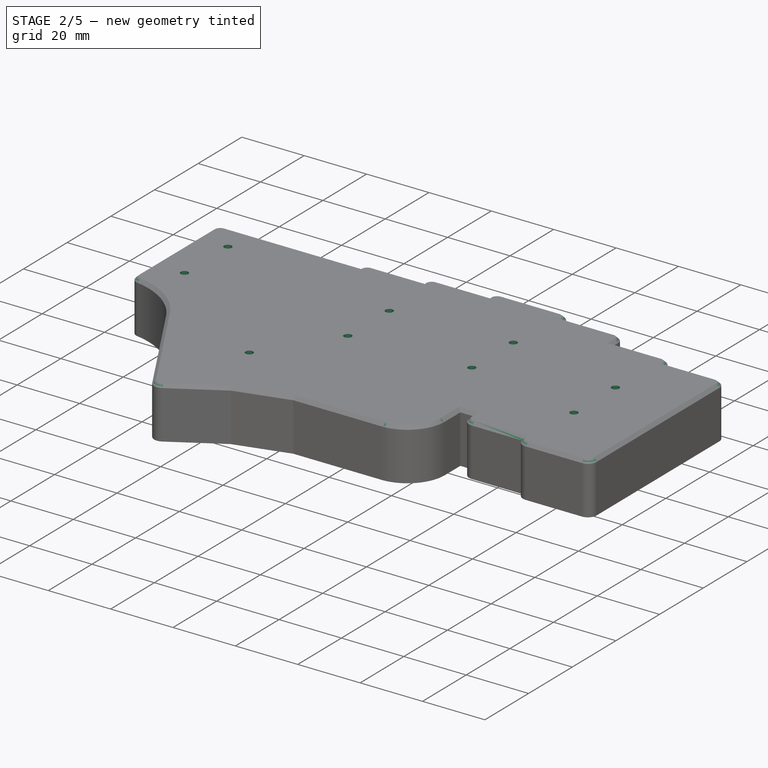
[diagram: stage 2 of 5 — iso view after this stage's code; geometry added in this stage tinted green]
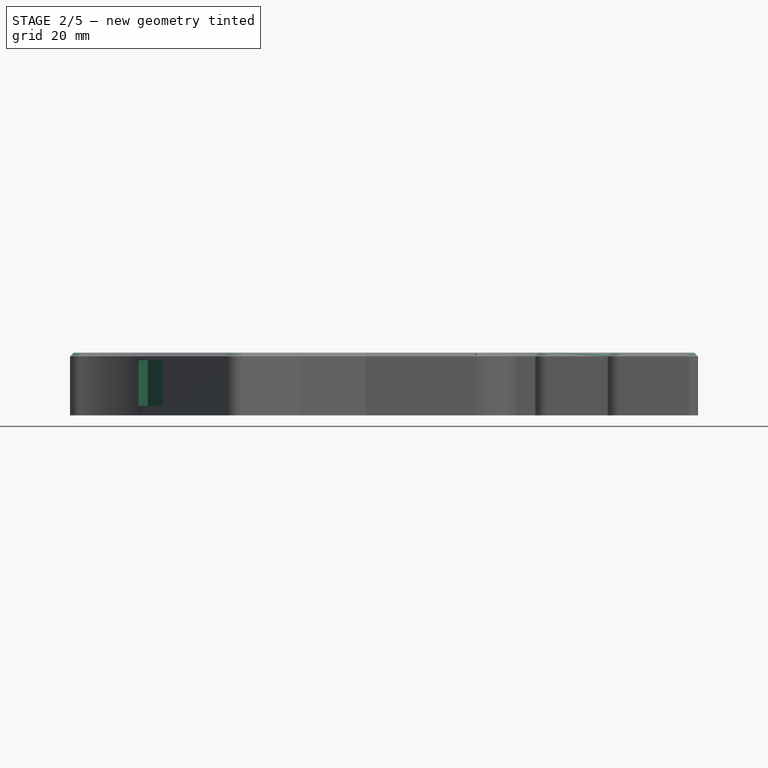
[diagram: stage 2 of 5 — front view after this stage's code; geometry added in this stage tinted green]
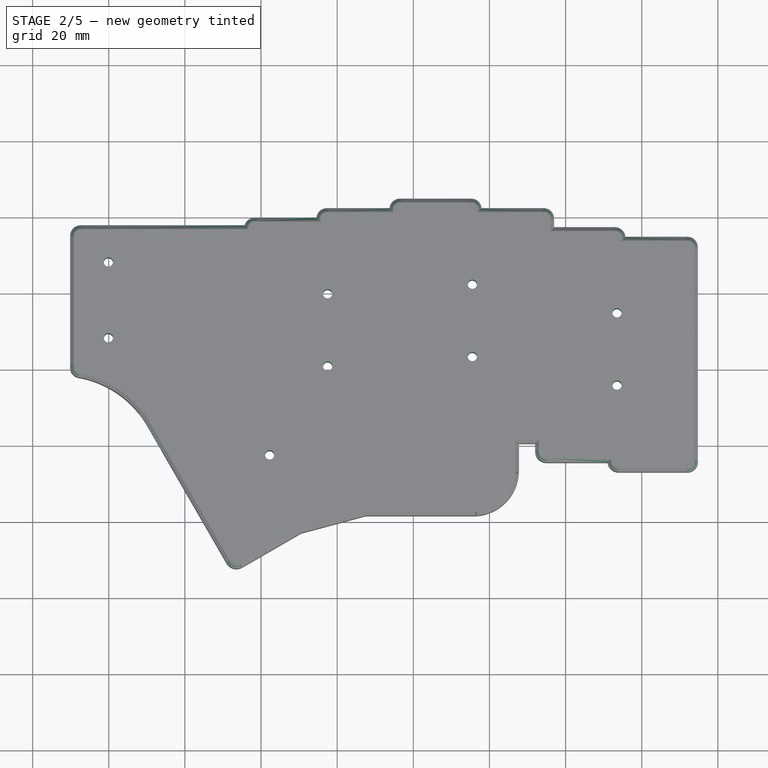
[diagram: stage 2 of 5 — top view after this stage's code; geometry added in this stage tinted green]
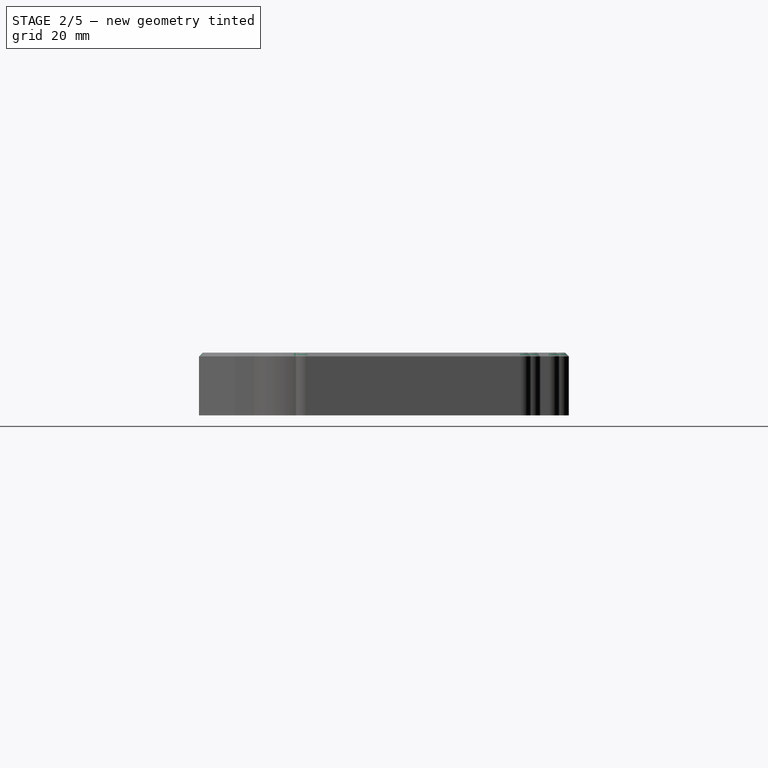
[diagram: stage 2 of 5 — right view after this stage's code; geometry added in this stage tinted green]
FEATURE [Sketcher::SketchObject] Sketch035
  ArcFitTolerance = 1e-06
  AttachmentSupport = -> [Pad008]
  ExternalGeometry = -> [ShapeBinder]
  FullyConstrained = true
  MakeInternals = false
  MapMode = 5
  Placement = pos=(0,0,19.5) rot=(0,0,1;0rad)
  sketch-geometry (9):
    g0: Circle CenterX=-102.5 CenterY=59.75 CenterZ=0 NormalX=0 NormalY=0 NormalZ=1 AngleXU=0 Radius=1.2
    g1: Circle CenterX=-64.5 CenterY=62.25 CenterZ=0 NormalX=0 NormalY=0 NormalZ=1 AngleXU=0 Radius=1.2
    g2: Circle CenterX=-26.5 CenterY=54.75 CenterZ=0 NormalX=0 NormalY=0 NormalZ=1 AngleXU=0 Radius=1.2
    g3: Circle CenterX=-64.5 CenterY=43.25 CenterZ=0 NormalX=0 NormalY=0 NormalZ=1 AngleXU=0 Radius=1.2
    g4: Circle CenterX=-102.5 CenterY=40.75 CenterZ=0 NormalX=0 NormalY=0 NormalZ=1 AngleXU=0 Radius=1.2
    g5: Circle CenterX=-26.5 CenterY=35.75 CenterZ=0 NormalX=0 NormalY=0 NormalZ=1 AngleXU=0 Radius=1.2
    g6: Circle CenterX=-117.745 CenterY=17.4182 CenterZ=0 NormalX=0 NormalY=0 NormalZ=1 AngleXU=0 Radius=1.2
    g7: Circle CenterX=-160.1 CenterY=68.1 CenterZ=0 NormalX=0 NormalY=0 NormalZ=1 AngleXU=0 Radius=1.2
    g8: Circle CenterX=-160.1 CenterY=48.2 CenterZ=0 NormalX=0 NormalY=0 NormalZ=1 AngleXU=0 Radius=1.2
  constraints (18):
    c: Coincident(g0,g-3)
    c: Equal(g0,g-3)
    c: Coincident(g1,g-4)
    c: Equal(g1,g-4)
    c: Coincident(g2,g-5)
    c: Equal(g2,g-5)
    c: Coincident(g3,g-7)
    c: Equal(g3,g-7)
    c: Coincident(g4,g-8)
    c: Equal(g4,g-8)
    c: Coincident(g5,g-6)
    c: Equal(g5,g-6)
    c: Coincident(g6,g-9)
    c: Equal(g6,g-9)
    c: Coincident(g7,g-10)
    c: Equal(g7,g-10)
    c: Coincident(g8,g-12)
    c: PointOnObject(g-11,g8)
FEATURE [PartDesign::Pocket] Pocket011
  BaseFeature = -> Pad008
  Direction = (0,0,-1)
  Length = 19
  Length2 = 5
  Placement = pos=(0,0,3) rot=(0,0,1;0rad)
  Profile = -> Sketch035
  ReferenceAxis = -> Sketch035 [N_Axis]
  Refine = true
  Suppressed = false
  Type = 0
FEATURE [Sketcher::SketchObject] Sketch036
  ArcFitTolerance = 1e-06
  ExternalGeometry = -> [Pad008]
  FullyConstrained = true
  MakeInternals = false
  MapMode = 5
  Placement = pos=(-99.3435,-57.356,3) rot=(0.377964,0.654654,0.654654;2.41886rad)
  sketch-geometry (4):
    g0: LineSegment StartX=100.815 StartY=14.5 StartZ=0 EndX=100.815 EndY=2.5 EndZ=0
    g1: LineSegment StartX=100.815 StartY=2.5 StartZ=0 EndX=88.8152 EndY=2.5 EndZ=0
    g2: LineSegment StartX=88.8152 StartY=2.5 StartZ=0 EndX=88.8152 EndY=14.5 EndZ=0
    g3: LineSegment StartX=88.8152 StartY=14.5 StartZ=0 EndX=100.815 EndY=14.5 EndZ=0
  constraints (12):
    c: Coincident(g0,g1)
    c: Coincident(g1,g2)
    c: Coincident(g2,g3)
    c: Coincident(g3,g0)
    c: Vertical(g0)
    c: Vertical(g2)
    c: Horizontal(g1)
    c: Horizontal(g3)
    c: Distance(g3) = 12
    c: Distance(g2) = 12
    c: Distance(g-4,g1) = 14
    c: Distance(g0,g-3) = 4
FEATURE [PartDesign::Pocket] Pocket012
  BaseFeature = -> Pocket011
  Direction = (-0.866025,-0.5,-1e-16)
  Length = 5
  Length2 = 5
  Placement = pos=(0,0,3) rot=(0,0,1;0rad)
  Profile = -> Sketch036
  ReferenceAxis = -> Sketch036 [N_Axis]
  Refine = true
  Suppressed = false
  Type = 0
FEATURE [Sketcher::SketchObject] Sketch037
  ArcFitTolerance = 1e-06
  AttachmentSupport = -> [Pocket012]
  ExternalGeometry = -> [ShapeBinder,Pocket012]
  FullyConstrained = false
  MakeInternals = false
  MapMode = 5
  Placement = pos=(0,77.75,3) rot=(0,0.707107,0.707107;3.14159rad)
  sketch-geometry (8):
    g0: LineSegment StartX=142.479 StartY=9.1149 StartZ=0 EndX=149.249 EndY=9.1149 EndZ=0
    g1: LineSegment StartX=138.864 StartY=5.5 StartZ=0 EndX=138.864 EndY=2.5 EndZ=0
    g2: LineSegment StartX=138.864 StartY=2.5 StartZ=0 EndX=152.864 EndY=2.5 EndZ=0
    g3: LineSegment StartX=152.864 StartY=2.5 StartZ=0 EndX=152.864 EndY=5.5 EndZ=0
    g4: ArcOfCircle CenterX=142.479 CenterY=5.5 CenterZ=0 NormalX=0 NormalY=0 NormalZ=1 AngleXU=0 Radius=3.6149 StartAngle=1.5708 EndAngle=3.14159
    g5: ArcOfCircle CenterX=149.249 CenterY=5.5 CenterZ=0 NormalX=0 NormalY=0 NormalZ=1 AngleXU=0 Radius=3.6149 StartAngle=0 EndAngle=1.5708
    g6: LineSegment [constr] StartX=124.328 StartY=0 StartZ=0 EndX=138.864 EndY=5.5 EndZ=0
    g7: LineSegment [constr] StartX=152.864 StartY=5.5 StartZ=0 EndX=167.4 EndY=0 EndZ=0
  constraints (19):
    c: Horizontal(g0)
    c: Coincident(g1,g2)
    c: Horizontal(g2)
    c: Vertical(g1)
    c: Coincident(g3,g2)
    c: Vertical(g3)
    c: Tangent(g5,g3) = -1.5708
    c: Tangent(g4,g1) = -1.5708
    c: Tangent(g4,g0) = 1.5708
    c: Tangent(g5,g0) = 1.5708
    c: Distance(g2) = 14
    c: Equal(g5,g4)
    c: Distance(g3) = 3
    c: Coincident(g6,g-4)
    c: Coincident(g6,g1)
    c: Coincident(g7,g3)
    c: Coincident(g7,g-5)
    c: Equal(g7,g6)
    c: DistanceY(g-6,g1) = 2
FEATURE [PartDesign::Pocket] Pocket013
  BaseFeature = -> Pocket012
  Direction = (0,-1,2e-16)
  Length = 3
  Length2 = 5
  Placement = pos=(0,0,3) rot=(0,0,1;0rad)
  Profile = -> Sketch037
  ReferenceAxis = -> Sketch037 [N_Axis]
  Refine = true
  Suppressed = false
  Type = 0
FEATURE [PartDesign::Chamfer] Chamfer001
  Angle = 45
  Base = -> Pocket013 [Edge9,Edge4,Edge7,Edge57,Edge59,Edge61,Edge63,Edge65,Edge67,Edge69,Edge71,Edge73,Edge75,Edge77,Edge79,Edge81,Edge83,Edge85,Edge87,Edge86,Edge84,Edge82,Edge80,Edge78,Edge76,Edge74,Edge72,Edge70,Edge68,Edge66,Edge64,Edge62,Edge60,Edge58]
  BaseFeature = -> Pocket013
  ChamferType = 0
  FlipDirection = false
  Placement = pos=(0,0,3) rot=(0,0,1;0rad)
  Refine = true
  Size = 1
  Size2 = 1
  SupportTransform = false
  Suppressed = false
  UseAllEdges = false
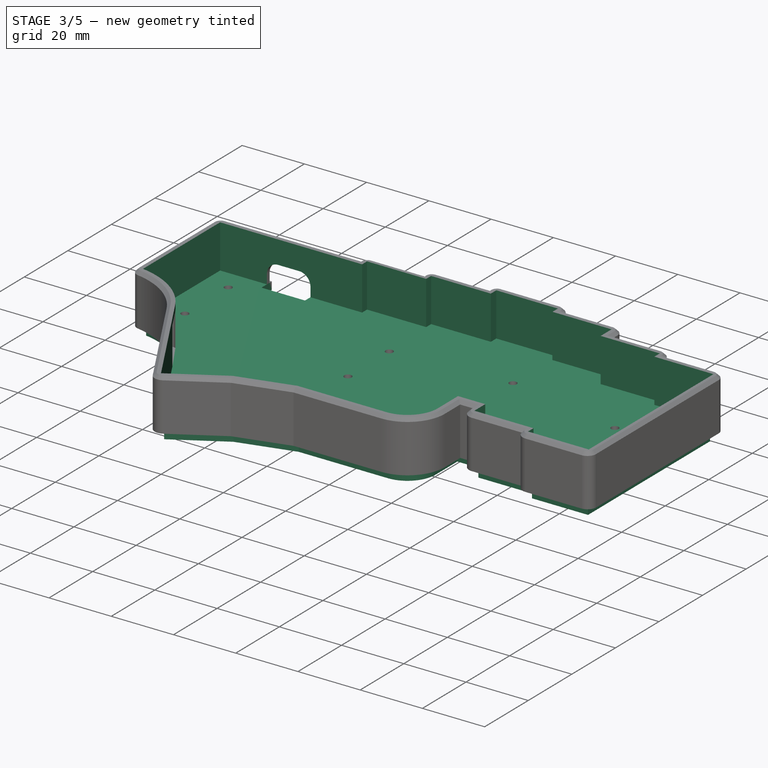
[diagram: stage 3 of 5 — iso view after this stage's code; geometry added in this stage tinted green]
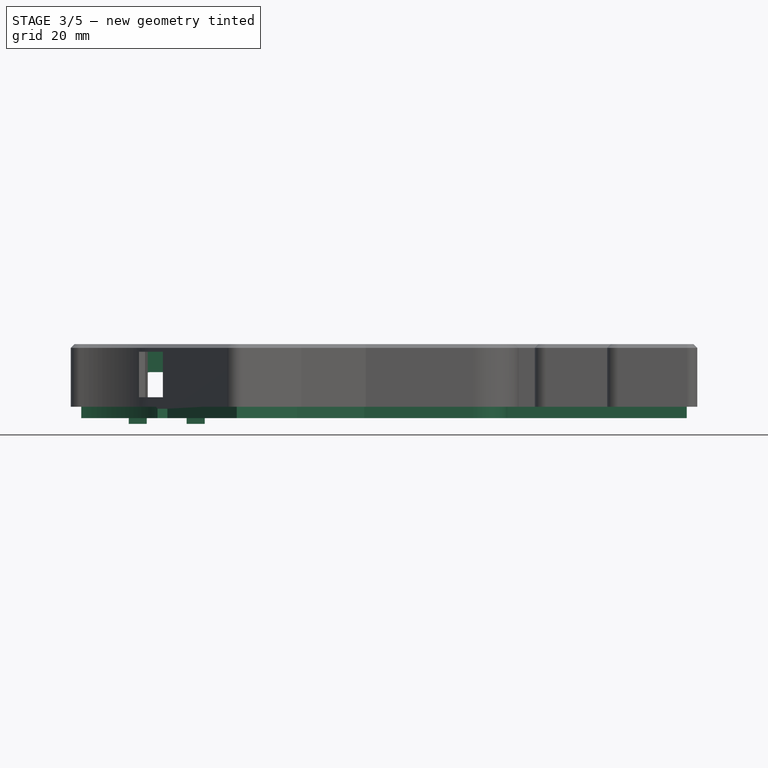
[diagram: stage 3 of 5 — front view after this stage's code; geometry added in this stage tinted green]
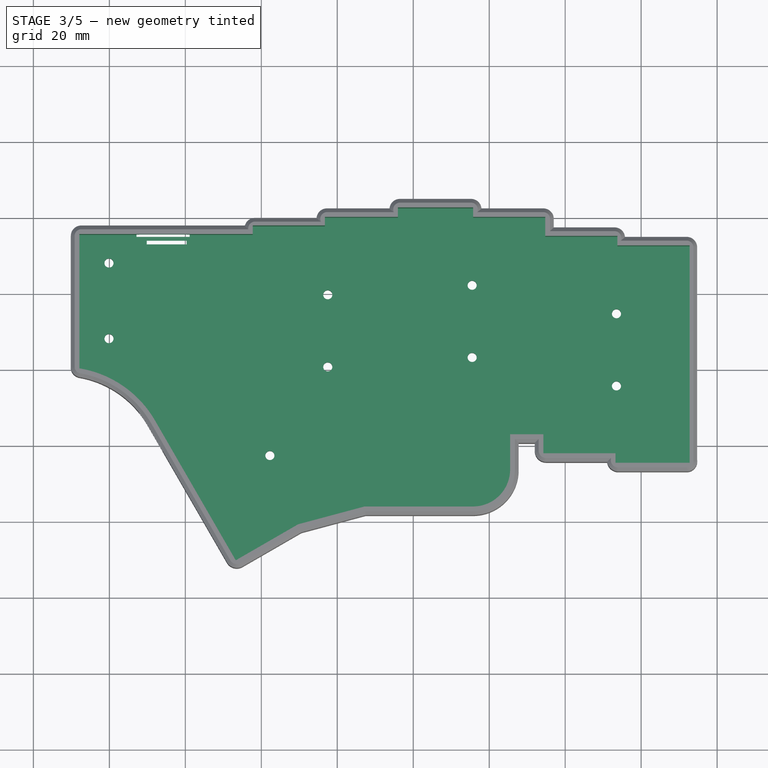
[diagram: stage 3 of 5 — top view after this stage's code; geometry added in this stage tinted green]
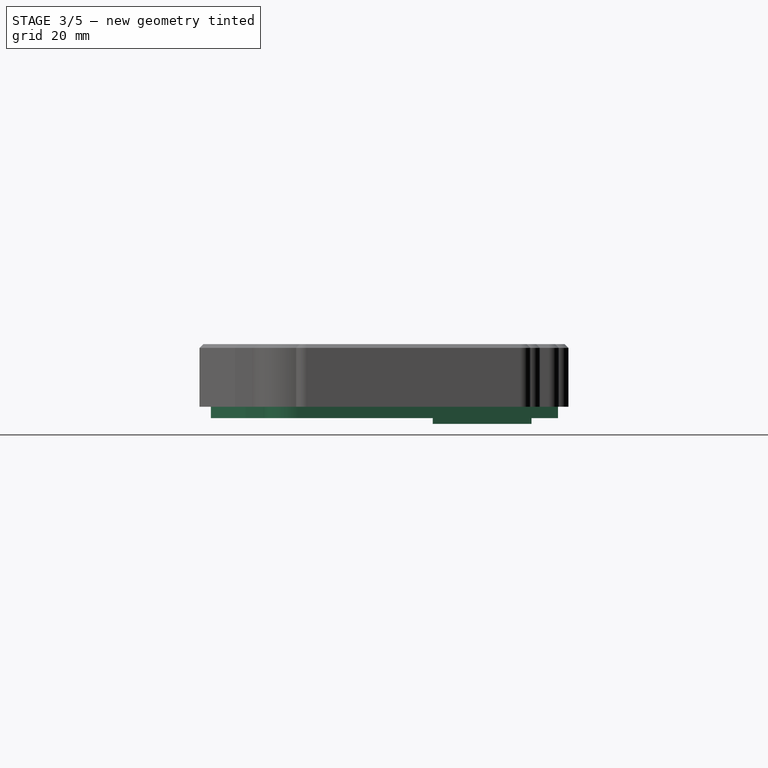
[diagram: stage 3 of 5 — right view after this stage's code; geometry added in this stage tinted green]
FEATURE [Sketcher::SketchObject] Sketch023
  ArcFitTolerance = 1e-06
  AttachmentSupport = -> [Pad]
  ExternalGeometry = -> [Pad]
  FullyConstrained = true
  MakeInternals = false
  MapMode = 5
  Placement = pos=(-98.9104,-57.106,0) rot=(0.774597,-0.447214,-0.447214;1.82348rad)
  sketch-geometry (4):
    g0: LineSegment StartX=-96.8152 StartY=-1.11e-14 StartZ=0 EndX=-96.8152 EndY=2.5 EndZ=0
    g1: LineSegment StartX=-96.8152 StartY=2.5 StartZ=0 EndX=-91.6152 EndY=2.5 EndZ=0
    g2: LineSegment StartX=-91.6152 StartY=2.5 StartZ=0 EndX=-91.6152 EndY=-1.11e-14 EndZ=0
    g3: LineSegment StartX=-91.6152 StartY=-1.11e-14 StartZ=0 EndX=-96.8152 EndY=-1.11e-14 EndZ=0
  constraints (11):
    c: Coincident(g0,g1)
    c: Coincident(g1,g2)
    c: Coincident(g2,g3)
    c: Coincident(g3,g0)
    c: Vertical(g0)
    c: Vertical(g2)
    c: Horizontal(g1)
    c: Horizontal(g3)
    c: Coincident(g0,g-4)
    c: Distance(g1,g0) = 5.2
    c: Distance(g2,g1) = 2.5
FEATURE [PartDesign::Pocket] Pocket
  BaseFeature = -> Pocket005
  Direction = (0.866025,0.5,2e-16)
  Length = 14
  Length2 = 5
  Profile = -> Sketch023
  ReferenceAxis = -> Sketch023 [N_Axis]
  Refine = true
  Suppressed = false
  Type = 0
FEATURE [PartDesign::Chamfer] Chamfer007
  Angle = 45
  Base = -> Chamfer001 [Edge54]
  BaseFeature = -> Chamfer001
  ChamferType = 0
  FlipDirection = false
  Placement = pos=(0,0,3) rot=(0,0,1;0rad)
  Refine = true
  Size = 1
  Size2 = 1
  SupportTransform = false
  Suppressed = false
  UseAllEdges = false
FEATURE [PartDesign::Chamfer] Chamfer008
  Angle = 45
  Base = -> Chamfer007 [Edge242]
  BaseFeature = -> Chamfer007
  ChamferType = 0
  FlipDirection = false
  Placement = pos=(0,0,3) rot=(0,0,1;0rad)
  Refine = true
  Size = 1
  Size2 = 1
  SupportTransform = false
  Suppressed = false
  UseAllEdges = false
FEATURE [PartDesign::Body] Body  label="switch plate"
  AllowCompound = false
  Group = -> [Sketch,Pad,Sketch005,Pocket001,Sketch012,Pad005,Sketch013,Pocket005,Sketch023,Pocket,Sketch042,Pocket016,Sketch044,Pocket018]
  Origin = -> Origin
  Tip = -> Pocket018
FEATURE [Sketcher::SketchObject] Sketch045
  ArcFitTolerance = 1e-06
  FullyConstrained = true
  MakeInternals = false
  MapMode = 5
  Placement = pos=(0,78,3) rot=(0,0.707107,0.707107;3.14159rad)
  sketch-geometry (4):
    g0: LineSegment StartX=138.864 StartY=2.5 StartZ=0 EndX=138.864 EndY=0 EndZ=0
    g1: LineSegment StartX=138.864 StartY=0 StartZ=0 EndX=152.864 EndY=0 EndZ=0
    g2: LineSegment StartX=152.864 StartY=0 StartZ=0 EndX=152.864 EndY=2.5 EndZ=0
    g3: LineSegment StartX=152.864 StartY=2.5 StartZ=0 EndX=138.864 EndY=2.5 EndZ=0
  constraints (11):
    c: Coincident(g0,g1)
    c: Coincident(g1,g2)
    c: Coincident(g2,g3)
    c: Coincident(g3,g0)
    c: Vertical(g0)
    c: Vertical(g2)
    c: Horizontal(g1)
    c: Horizontal(g3)
    c: Coincident(g0,g-4)
    c: PointOnObject(g1,g-1)
    c: DistanceX(g2,g-3) = 0
FEATURE [PartDesign::Pocket] Pocket019
  BaseFeature = -> Chamfer008
  Direction = (-1e-16,-1,2e-16)
  Length = 5
  Length2 = 5
  Placement = pos=(0,0,3) rot=(0,0,1;0rad)
  Profile = -> Sketch045
  ReferenceAxis = -> Sketch045 [N_Axis]
  Refine = true
  Suppressed = false
  Type = 0
FEATURE [Sketcher::SketchObject] Sketch047
  ArcFitTolerance = 1e-06
  ExternalGeometry = -> [Sketch036,Sketch034]
  FullyConstrained = true
  MakeInternals = false
  MapMode = 5
  Placement = pos=(-101.509,-58.606,3) rot=(0.774597,-0.447214,-0.447214;1.82348rad)
  sketch-geometry (4):
    g0: LineSegment StartX=-100.815 StartY=2.5 StartZ=0 EndX=-88.8152 EndY=2.5 EndZ=0
    g1: LineSegment StartX=-100.815 StartY=2.5 StartZ=0 EndX=-100.815 EndY=4e-16 EndZ=0
    g2: LineSegment StartX=-100.815 StartY=4e-16 StartZ=0 EndX=-88.8152 EndY=0 EndZ=0
    g3: LineSegment StartX=-88.8152 StartY=0 StartZ=0 EndX=-88.8152 EndY=2.5 EndZ=0
  constraints (10):
    c: Coincident(g0,g-3)
    c: Coincident(g0,g-3)
    c: Coincident(g1,g0)
    c: PointOnObject(g1,g-4)
    c: Vertical(g1)
    c: Coincident(g2,g1)
    c: PointOnObject(g2,g-1)
    c: Coincident(g3,g2)
    c: Coincident(g3,g0)
    c: Vertical(g3)
FEATURE [PartDesign::ShapeBinder] ShapeBinder005
  Placement = pos=(0,0,3) rot=(0,0,1;0rad)
  Support = -> [Sketch034]
  TraceSupport = false
FEATURE [Sketcher::SketchObject] Sketch051  label="57.5 inner pocket"
  ArcFitTolerance = 1e-06
  AttachmentSupport = -> [Pad008]
  FullyConstrained = false
  MakeInternals = false
  MapMode = 5
  Placement = pos=(0,0,19.5) rot=(0,0,1;0rad)
  sketch-geometry (29):
    g0: LineSegment StartX=-122.25 StartY=75.5 StartZ=0 EndX=-122.25 EndY=77.75 EndZ=0
    g1: LineSegment StartX=-122.25 StartY=75.5 StartZ=0 EndX=-167.9 EndY=75.5 EndZ=0
    g2: LineSegment StartX=-167.9 StartY=40.1241 StartZ=0 EndX=-167.9 EndY=75.5 EndZ=0
    g3: ArcOfCircle CenterX=-172.436 CenterY=12.2363 CenterZ=0 NormalX=0 NormalY=0 NormalZ=1 AngleXU=0 Radius=28.2543 StartAngle=0.523599 EndAngle=1.40954
    g4: LineSegment StartX=-126.73 StartY=-10.4214 StartZ=0 EndX=-147.967 EndY=26.3635 EndZ=0
    g5: LineSegment StartX=-110.306 StartY=-0.938866 StartZ=0 EndX=-126.73 EndY=-10.4214 EndZ=0
    g6: LineSegment StartX=-92.8064 StartY=3.75 StartZ=0 EndX=-110.306 EndY=-0.938866 EndZ=0
    g7: LineSegment StartX=-64.25 StartY=3.75 StartZ=0 EndX=-92.8064 EndY=3.75 EndZ=0
    g8: ArcOfCircle CenterX=-64.25 CenterY=13.5 CenterZ=0 NormalX=0 NormalY=0 NormalZ=1 AngleXU=0 Radius=9.75 StartAngle=4.71239 EndAngle=6.28319
    g9: LineSegment StartX=-54.5 StartY=13.5 StartZ=0 EndX=-54.5 EndY=22.75 EndZ=0
    g10: LineSegment StartX=-45.75 StartY=22.75 StartZ=0 EndX=-54.5 EndY=22.75 EndZ=0
    g11: LineSegment StartX=-45.75 StartY=17.75 StartZ=0 EndX=-45.75 EndY=22.75 EndZ=0
    g12: LineSegment StartX=-26.75 StartY=17.75 StartZ=0 EndX=-45.75 EndY=17.75 EndZ=0
    g13: LineSegment StartX=-26.75 StartY=15.25 StartZ=0 EndX=-26.75 EndY=17.75 EndZ=0
    g14: LineSegment StartX=-7.24997 StartY=15.25 StartZ=0 EndX=-26.75 EndY=15.25 EndZ=0
    g15: LineSegment StartX=-7.24997 StartY=72.5 StartZ=0 EndX=-7.24997 EndY=15.25 EndZ=0
    g16: LineSegment StartX=-26.25 StartY=72.5 StartZ=0 EndX=-7.24997 EndY=72.5 EndZ=0
    g17: LineSegment StartX=-26.25 StartY=75 StartZ=0 EndX=-26.25 EndY=72.5 EndZ=0
    g18: LineSegment StartX=-45.25 StartY=75 StartZ=0 EndX=-26.25 EndY=75 EndZ=0
    g19: LineSegment StartX=-45.25 StartY=80 StartZ=0 EndX=-45.25 EndY=75 EndZ=0
    g20: LineSegment StartX=-64.25 StartY=80 StartZ=0 EndX=-45.25 EndY=80 EndZ=0
    g21: LineSegment StartX=-64.25 StartY=82.5 StartZ=0 EndX=-64.25 EndY=80 EndZ=0
    g22: LineSegment StartX=-84.05 StartY=82.5 StartZ=0 EndX=-64.25 EndY=82.5 EndZ=0
    g23: LineSegment StartX=-84.05 StartY=80 StartZ=0 EndX=-84.05 EndY=82.5 EndZ=0
    g24: LineSegment StartX=-103.25 StartY=80 StartZ=0 EndX=-84.05 EndY=80 EndZ=0
    g25: LineSegment StartX=-103.25 StartY=77.75 StartZ=0 EndX=-103.25 EndY=80 EndZ=0
    g26: LineSegment StartX=-122.25 StartY=77.75 StartZ=0 EndX=-103.25 EndY=77.75 EndZ=0
    g27: LineSegment [constr] StartX=-3.96791 StartY=92.75 StartZ=0 EndX=-169.189 EndY=92.75 EndZ=0
    g28: LineSegment [constr] StartX=-188.15 StartY=81.9887 StartZ=0 EndX=-188.15 EndY=38.8213 EndZ=0
  constraints (60):
    c: Vertical(g0)
    c: Coincident(g0,g1)
    c: Horizontal(g1)
    c: Coincident(g1,g2)
    c: Vertical(g2)
    c: Coincident(g2,g3)
    c: Coincident(g3,g4)
    c: Coincident(g4,g5)
    c: Coincident(g5,g6)
    c: Coincident(g6,g7)
    c: Horizontal(g7)
    c: Coincident(g7,g8)
    c: Coincident(g8,g9)
    c: Vertical(g9)
    c: Coincident(g9,g10)
    c: Horizontal(g10)
    c: Coincident(g10,g11)
    c: Vertical(g11)
    c: Coincident(g11,g12)
    c: Horizontal(g12)
    c: Coincident(g12,g13)
    c: Vertical(g13)
    c: Coincident(g13,g14)
    c: Horizontal(g14)
    c: Coincident(g14,g15)
    c: Vertical(g15)
    c: Coincident(g15,g16)
    c: Horizontal(g16)
    c: Coincident(g16,g17)
    c: Vertical(g17)
    c: Coincident(g17,g18)
    c: Horizontal(g18)
    c: Coincident(g18,g19)
    c: Vertical(g19)
    c: Coincident(g19,g20)
    c: Horizontal(g20)
    c: Coincident(g20,g21)
    c: Vertical(g21)
    c: Coincident(g21,g22)
    c: Horizontal(g22)
    c: Coincident(g22,g23)
    c: Vertical(g23)
    c: Coincident(g23,g24)
    c: Horizontal(g24)
    c: Coincident(g24,g25)
    c: Vertical(g25)
    c: Coincident(g25,g26)
    c: Horizontal(g26)
    c: Coincident(g26,g0)
    c: Horizontal(g27)
    c: Block(g27)
    c: Distance(g15,g27) = 20.25
    c: Distance(g17,g27) = 17.75
    c: Distance(g19,g27) = 12.75
    c: Distance(g21,g27) = 10.25
    c: Distance(g24,g27) = 12.75
    c: Distance(g1,g27) = 17.25
    c: Vertical(g28)
    c: Distance(g28,g2) = 20.25
    c: Block(g28)
FEATURE [PartDesign::Pocket] Pocket023
  BaseFeature = -> Pocket019
  Direction = (0,0,-1)
  Length = 14
  Length2 = 5
  Placement = pos=(0,0,3) rot=(0,0,1;0rad)
  Profile = -> Sketch051
  ReferenceAxis = -> Sketch051 [N_Axis]
  Refine = true
  Suppressed = false
  Type = 0
FEATURE [PartDesign::Body] Body006  label="Case"
  AllowCompound = false
  Group = -> [ShapeBinder,Sketch034,Pad008,Sketch035,Pocket011,Sketch036,Pocket012,Sketch037,Pocket013,Chamfer001,Chamfer007,Chamfer008,Sketch045,Pocket019,Sketch047,ShapeBinder005,Sketch051,Pocket023]
  Origin = -> Origin006
  Tip = -> Pocket023
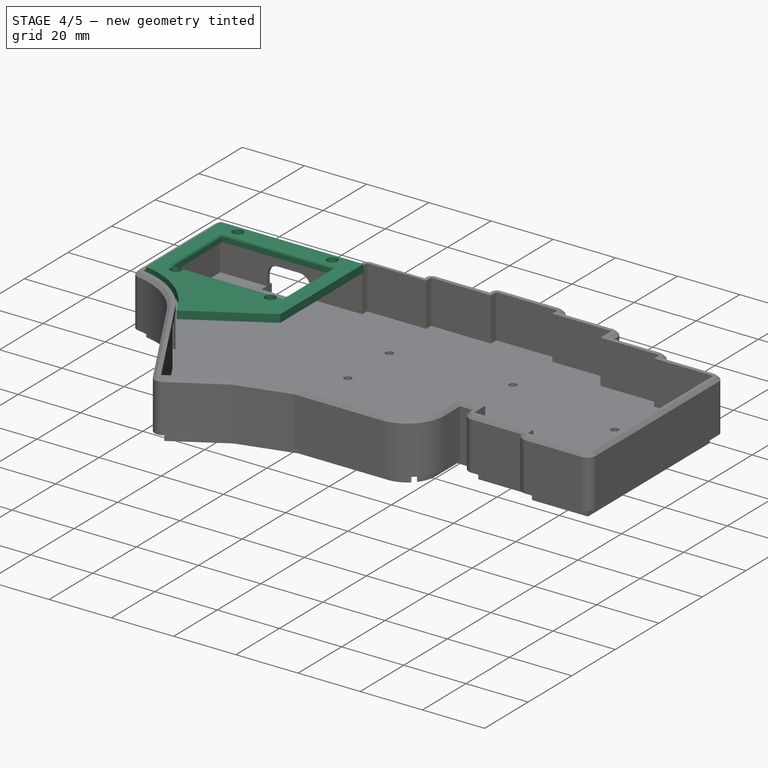
[diagram: stage 4 of 5 — iso view after this stage's code; geometry added in this stage tinted green]
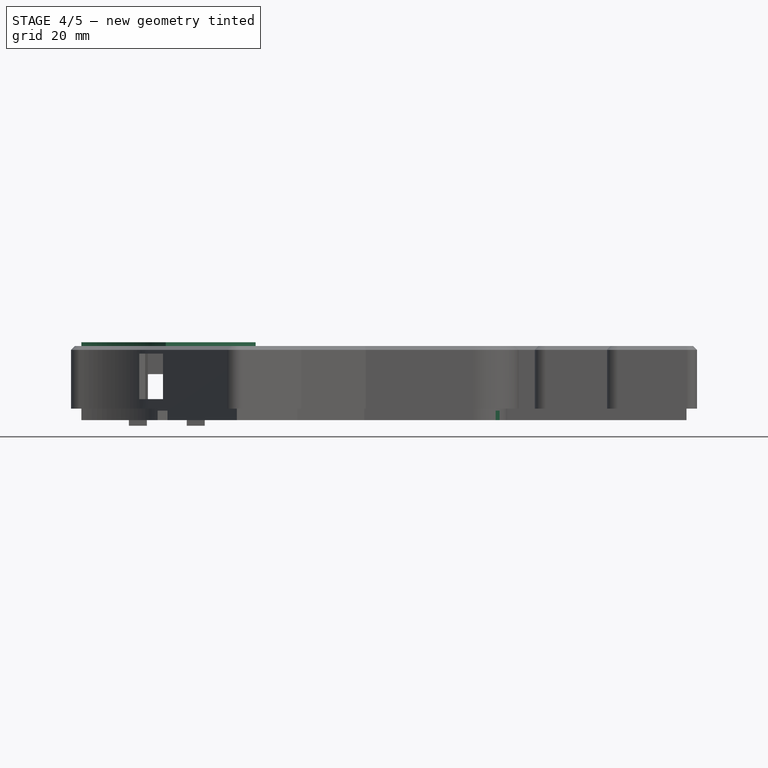
[diagram: stage 4 of 5 — front view after this stage's code; geometry added in this stage tinted green]
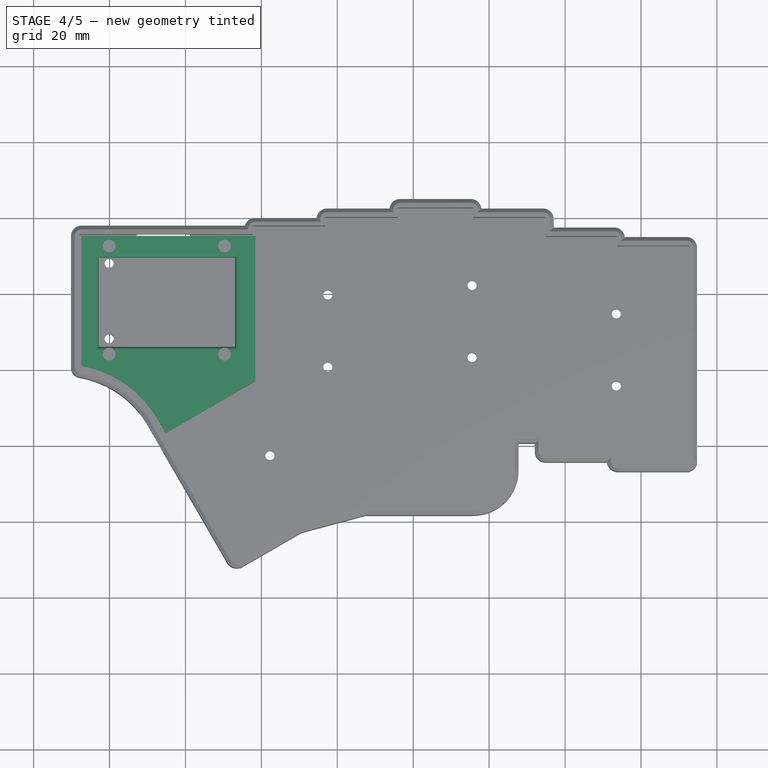
[diagram: stage 4 of 5 — top view after this stage's code; geometry added in this stage tinted green]
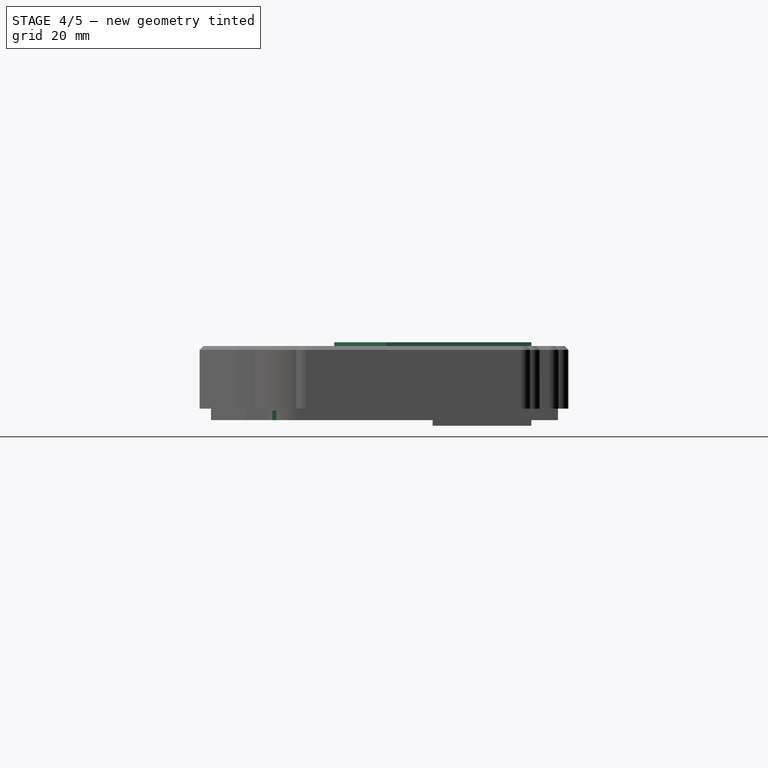
[diagram: stage 4 of 5 — right view after this stage's code; geometry added in this stage tinted green]
FEATURE [PartDesign::ShapeBinder] ShapeBinder003
  Placement = pos=(0,0,18) rot=(0,0,1;0rad)
  TraceSupport = false
FEATURE [PartDesign::ShapeBinder] ShapeBinder004
  Support = -> [Sketch]
  TraceSupport = false
FEATURE [Part::Offset2D] Offset2D005  label="oled cover base offset"
  Fill = false
  Intersection = false
  Join = 1
  Mode = 1
  SelfIntersection = false
  Source = -> ShapeBinder003
  Value = -0.2
FEATURE [Sketcher::SketchObject] Sketch038
  ArcFitTolerance = 1e-06
  ExternalGeometry = -> [ShapeBinder004,ShapeBinder003]
  FullyConstrained = false
  MakeInternals = false
  Placement = pos=(0,0,18) rot=(0,0,1;0rad)
  sketch-geometry (16):
    g0: LineSegment StartX=-121.5 StartY=75 StartZ=0 EndX=-167.4 EndY=75 EndZ=0
    g1: Circle CenterX=-129.7 CenterY=72.4 CenterZ=0 NormalX=0 NormalY=0 NormalZ=1 AngleXU=0 Radius=1.7
    g2: Circle CenterX=-160.1 CenterY=43.9 CenterZ=0 NormalX=0 NormalY=0 NormalZ=1 AngleXU=0 Radius=1.7
    g3: Circle CenterX=-129.7 CenterY=43.9 CenterZ=0 NormalX=0 NormalY=0 NormalZ=1 AngleXU=0 Radius=1.7
    g4: LineSegment StartX=-145.203 StartY=23.0805 StartZ=0 EndX=-121.5 EndY=36.7653 EndZ=0
    g5: LineSegment StartX=-121.5 StartY=75 StartZ=0 EndX=-121.5 EndY=36.7653 EndZ=0
    g6: LineSegment StartX=-162.85 StartY=69.3 StartZ=0 EndX=-162.85 EndY=45.8 EndZ=0
    g7: LineSegment StartX=-162.85 StartY=45.8 StartZ=0 EndX=-126.95 EndY=45.8 EndZ=0
    g8: LineSegment StartX=-126.95 StartY=45.8 StartZ=0 EndX=-126.95 EndY=69.3 EndZ=0
    g9: LineSegment StartX=-162.85 StartY=69.3 StartZ=0 EndX=-126.95 EndY=69.3 EndZ=0
    g10: Circle CenterX=-160.1 CenterY=72.4 CenterZ=0 NormalX=0 NormalY=0 NormalZ=1 AngleXU=0 Radius=1.7
    g11: LineSegment [constr] StartX=-129.7 StartY=72.4 StartZ=0 EndX=-126.95 EndY=69.3 EndZ=0
    g12: LineSegment [constr] StartX=-160.1 StartY=72.4 StartZ=0 EndX=-162.85 EndY=69.3 EndZ=0
    g13: LineSegment StartX=-167.4 StartY=75 StartZ=0 EndX=-167.4 EndY=40.8 EndZ=0
    g14: ArcOfCircle CenterX=-172.437 CenterY=12.2363 CenterZ=0 NormalX=0 NormalY=0 NormalZ=1 AngleXU=0 Radius=29.0044 StartAngle=0.523599 EndAngle=1.39626
    g15: LineSegment StartX=-147.318 StartY=26.7385 StartZ=0 EndX=-145.203 EndY=23.0805 EndZ=0
  constraints (39):
    c: Horizontal(g0)
    c: Coincident(g1,g-5)
    c: Equal(g1,g-5)
    c: Coincident(g2,g-6)
    c: Equal(g2,g-6)
    c: Coincident(g3,g-7)
    c: Equal(g3,g-7)
    c: Coincident(g5,g0)
    c: Coincident(g5,g4)
    c: Vertical(g5)
    c: Parallel(g4,g-11)
    c: Distance(g-11,g4) = 2.5
    c: Coincident(g6,g7)
    c: Coincident(g7,g8)
    c: Horizontal(g7)
    c: Vertical(g6)
    c: Vertical(g8)
    c: Distance(g8) = 23.5
    c: Distance(g-9,g0) = 0.5
    c: DistanceX(g0,g-13) = 0
    c: Coincident(g9,g6)
    c: Coincident(g9,g8)
    c: Horizontal(g9)
    c: Distance(g9) = 35.9
    c: Coincident(g10,g-4)
    c: Equal(g10,g-4)
    c: Coincident(g11,g1)
    c: Coincident(g11,g8)
    c: Coincident(g12,g10)
    c: Coincident(g12,g6)
    c: Equal(g12,g11)
    c: Distance(g1,g9) = 3.1
    c: Coincident(g13,g0)
    c: Coincident(g13,g-15)
    c: Vertical(g13)
    c: Coincident(g14,g13)
    c: Tangent(g14,g-15) = -1.5708
    c: Coincident(g15,g14)
    c: Coincident(g15,g4)
FEATURE [PartDesign::Pad] Pad009
  Direction = (0,0,1)
  Length = 2.5
  Length2 = 10
  Placement = pos=(0,0,18) rot=(0,0,1;0rad)
  Profile = -> Sketch038
  ReferenceAxis = -> Sketch038 [N_Axis]
  Refine = true
  Suppressed = false
  Type = 0
FEATURE [PartDesign::Fillet] Fillet
  Base = -> Pad009 [Edge30,Edge22,Edge28,Edge25]
  BaseFeature = -> Pad009
  Placement = pos=(0,0,18) rot=(0,0,1;0rad)
  Radius = 1
  Refine = true
  SupportTransform = false
  Suppressed = false
  UseAllEdges = false
FEATURE [PartDesign::Body] Body008  label="oled washer"
  AllowCompound = false
  Group = -> [Sketch041,Pad010]
  Origin = -> Origin008
  Tip = -> Pad010
FEATURE [Sketcher::SketchObject] Sketch042
  ArcFitTolerance = 1e-06
  AttachmentSupport = -> [Pocket]
  ExternalGeometry = -> [Sketch]
  FullyConstrained = true
  MakeInternals = false
  MapMode = 5
  Placement = pos=(0,0,0) rot=(1,0,0;3.14159rad)
  sketch-geometry (7):
    g0: LineSegment StartX=-71.75 StartY=-6.75 StartZ=0 EndX=-71.75 EndY=-21.25 EndZ=0
    g1: LineSegment StartX=-71.75 StartY=-21.25 StartZ=0 EndX=-57.25 EndY=-21.25 EndZ=0
    g2: LineSegment StartX=-57.25 StartY=-21.25 StartZ=0 EndX=-57.25 EndY=-6.75 EndZ=0
    g3: LineSegment StartX=-57.25 StartY=-6.75 StartZ=0 EndX=-71.75 EndY=-6.75 EndZ=0
    g4: LineSegment [constr] StartX=-64.5 StartY=-14 StartZ=0 EndX=-57.25 EndY=-6.75 EndZ=0
    g5: LineSegment [constr] StartX=-64.5 StartY=-14 StartZ=0 EndX=-71.75 EndY=-21.25 EndZ=0
    g6: LineSegment [constr] StartX=-64.5 StartY=-14 StartZ=0 EndX=-57.25 EndY=-21.25 EndZ=0
  constraints (18):
    c: Coincident(g0,g1)
    c: Coincident(g1,g2)
    c: Coincident(g2,g3)
    c: Coincident(g3,g0)
    c: Vertical(g0)
    c: Vertical(g2)
    c: Horizontal(g1)
    c: Horizontal(g3)
    c: Distance(g3) = 14.5
    c: Distance(g2) = 14.5
    c: Coincident(g4,g-3)
    c: Coincident(g4,g2)
    c: Coincident(g5,g4)
    c: Coincident(g5,g0)
    c: Equal(g4,g5)
    c: Coincident(g6,g4)
    c: Coincident(g6,g1)
    c: Equal(g5,g6)
FEATURE [PartDesign::Pocket] Pocket016
  BaseFeature = -> Pocket
  Direction = (0,0,1)
  Length = 2.5
  Length2 = 5
  Profile = -> Sketch042
  ReferenceAxis = -> Sketch042 [N_Axis]
  Refine = true
  Suppressed = false
  Type = 0
FEATURE [PartDesign::Body] Body007  label="Oled frame"
  AllowCompound = false
  Group = -> [ShapeBinder003,ShapeBinder004,Sketch038,Pad009,Fillet,Sketch039,Pocket014,Sketch040,Pocket015,Chamfer009,Chamfer010]
  Origin = -> Origin007
  Tip = -> Chamfer010
FEATURE [Sketcher::SketchObject] Sketch044
  ArcFitTolerance = 1e-06
  AttachmentSupport = -> [Pocket005]
  ExternalGeometry = -> [Pocket005]
  FullyConstrained = true
  MakeInternals = false
  MapMode = 5
  Placement = pos=(0,0,0) rot=(1,0,0;3.14159rad)
  sketch-geometry (8):
    g0: LineSegment StartX=-150.15 StartY=-52.5 StartZ=0 EndX=-151.4 EndY=-52.5 EndZ=0
    g1: LineSegment StartX=-151.4 StartY=-52.5 StartZ=0 EndX=-151.4 EndY=-74 EndZ=0
    g2: LineSegment StartX=-151.4 StartY=-74 StartZ=0 EndX=-150.15 EndY=-74 EndZ=0
    g3: LineSegment StartX=-150.15 StartY=-74 StartZ=0 EndX=-150.15 EndY=-52.5 EndZ=0
    g4: LineSegment StartX=-138.4 StartY=-74 StartZ=0 EndX=-138.4 EndY=-52.5 EndZ=0
    g5: LineSegment StartX=-138.4 StartY=-52.5 StartZ=0 EndX=-139.65 EndY=-52.5 EndZ=0
    g6: LineSegment StartX=-139.65 StartY=-52.5 StartZ=0 EndX=-139.65 EndY=-74 EndZ=0
    g7: LineSegment StartX=-139.65 StartY=-74 StartZ=0 EndX=-138.4 EndY=-74 EndZ=0
  constraints (20):
    c: Coincident(g0,g1)
    c: Coincident(g1,g2)
    c: Coincident(g2,g3)
    c: Coincident(g3,g0)
    c: Horizontal(g0)
    c: Horizontal(g2)
    c: Vertical(g1)
    c: Vertical(g3)
    c: Coincident(g0,g-3)
    c: Coincident(g1,g-4)
    c: Coincident(g4,g5)
    c: Coincident(g5,g6)
    c: Coincident(g6,g7)
    c: Coincident(g7,g4)
    c: Vertical(g4)
    c: Vertical(g6)
    c: Horizontal(g5)
    c: Horizontal(g7)
    c: Coincident(g4,g-6)
    c: Coincident(g5,g-5)
FEATURE [PartDesign::Pocket] Pocket018
  BaseFeature = -> Pocket016
  Direction = (0,0,1)
  Length = 0.5
  Length2 = 5
  Profile = -> Sketch044
  ReferenceAxis = -> Sketch044 [N_Axis]
  Refine = true
  Suppressed = false
  Type = 0
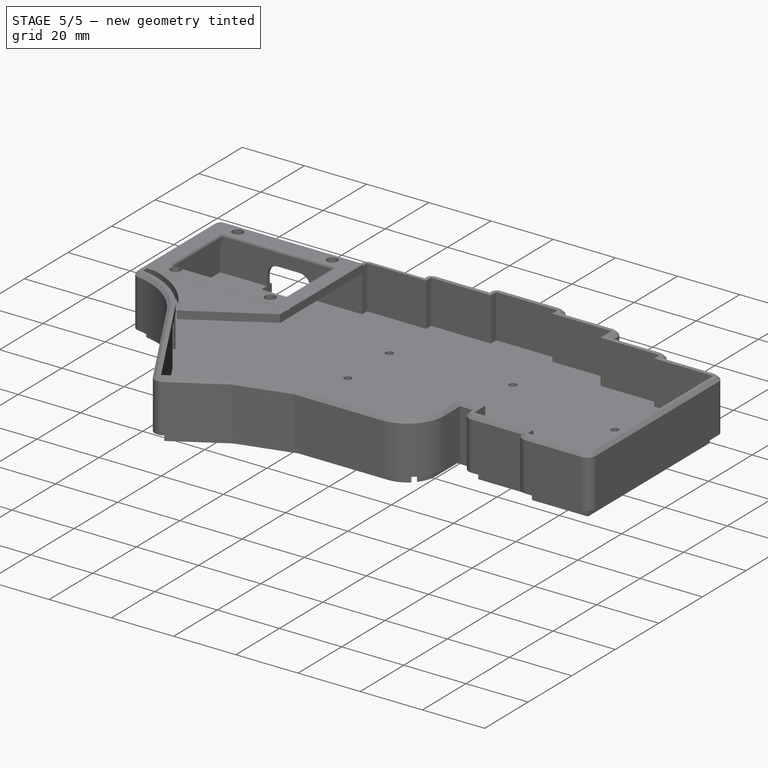
[diagram: stage 5 of 5 — iso view after this stage's code; geometry added in this stage tinted green]
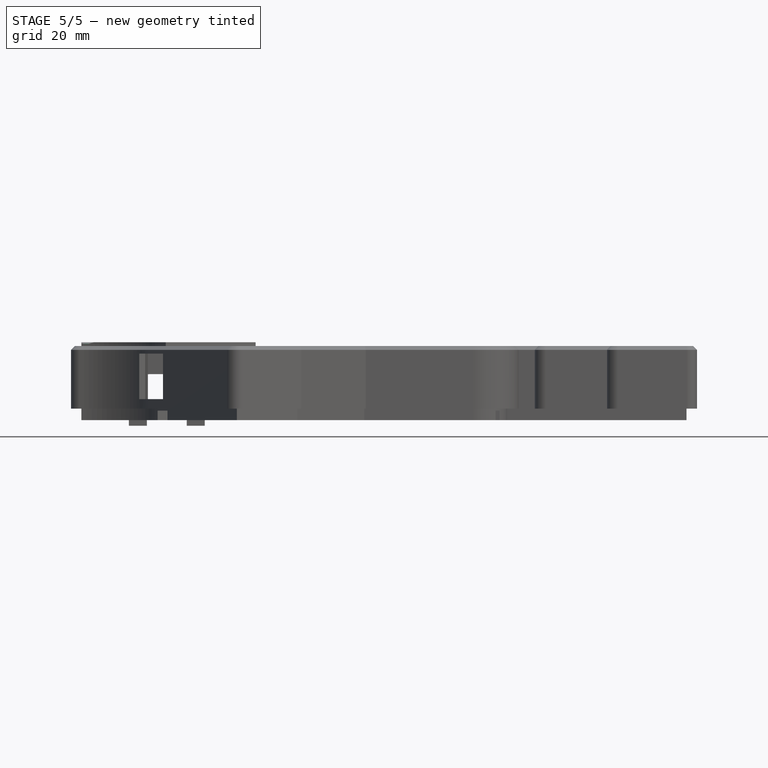
[diagram: stage 5 of 5 — front view after this stage's code; geometry added in this stage tinted green]
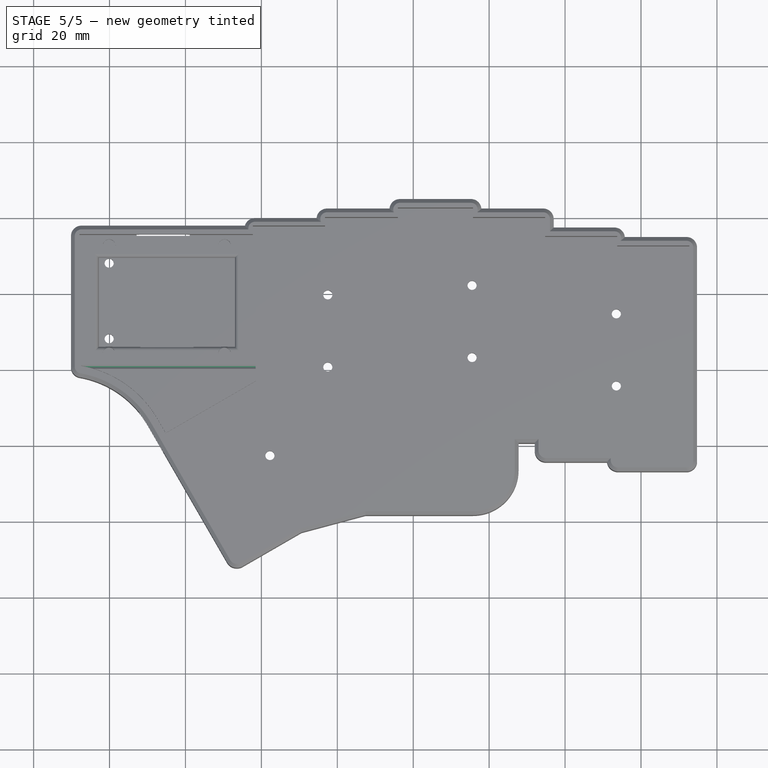
[diagram: stage 5 of 5 — top view after this stage's code; geometry added in this stage tinted green]
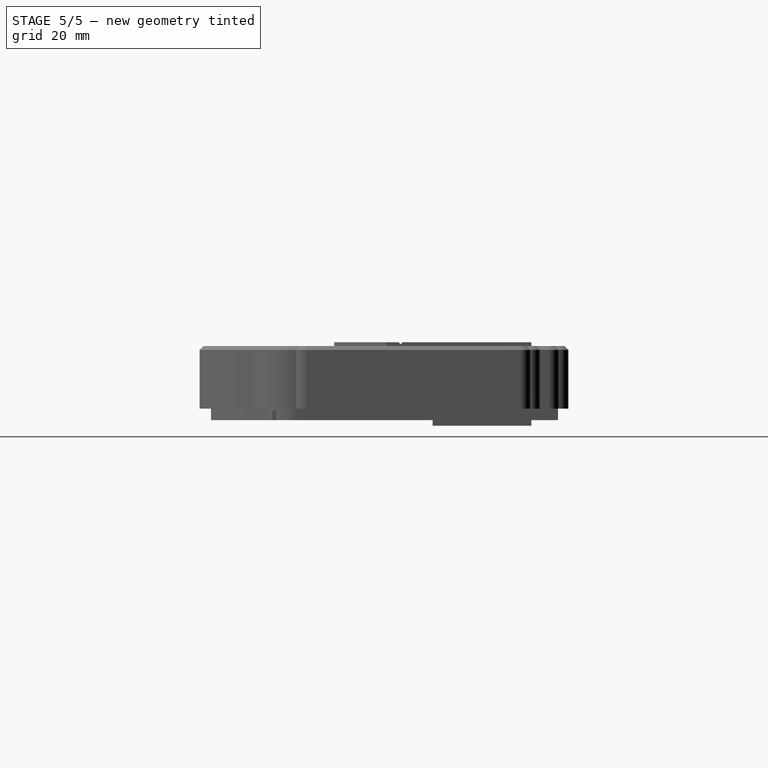
[diagram: stage 5 of 5 — right view after this stage's code; geometry added in this stage tinted green]
FEATURE [Sketcher::SketchObject] Sketch039
  ArcFitTolerance = 1e-06
  AttachmentSupport = -> [Fillet]
  ExternalGeometry = -> [Sketch038]
  FullyConstrained = true
  MakeInternals = false
  MapMode = 5
  Placement = pos=(0,0,18) rot=(1,0,0;3.14159rad)
  sketch-geometry (12):
    g0: LineSegment StartX=-151.9 StartY=-45.8 StartZ=0 EndX=-137.9 EndY=-45.8 EndZ=0
    g1: LineSegment StartX=-137.9 StartY=-45.8 StartZ=0 EndX=-137.9 EndY=-42.4 EndZ=0
    g2: LineSegment StartX=-137.9 StartY=-42.4 StartZ=0 EndX=-151.9 EndY=-42.4 EndZ=0
    g3: LineSegment StartX=-151.9 StartY=-42.4 StartZ=0 EndX=-151.9 EndY=-45.8 EndZ=0
    g4: LineSegment [constr] StartX=-137.9 StartY=-42.4 StartZ=0 EndX=-126.95 EndY=-45.8 EndZ=0
    g5: LineSegment [constr] StartX=-151.9 StartY=-42.4 StartZ=0 EndX=-162.85 EndY=-45.8 EndZ=0
    g6: LineSegment StartX=-149.9 StartY=-74 StartZ=0 EndX=-139.9 EndY=-74 EndZ=0
    g7: LineSegment StartX=-139.9 StartY=-74 StartZ=0 EndX=-139.9 EndY=-71 EndZ=0
    g8: LineSegment StartX=-139.9 StartY=-71 StartZ=0 EndX=-149.9 EndY=-71 EndZ=0
    g9: LineSegment StartX=-149.9 StartY=-71 StartZ=0 EndX=-149.9 EndY=-74 EndZ=0
    g10: LineSegment [constr] StartX=-126.95 StartY=-69.3 StartZ=0 EndX=-139.9 EndY=-71 EndZ=0
    g11: LineSegment [constr] StartX=-149.9 StartY=-71 StartZ=0 EndX=-162.85 EndY=-69.3 EndZ=0
  constraints (32):
    c: Coincident(g0,g1)
    c: Coincident(g1,g2)
    c: Coincident(g2,g3)
    c: Coincident(g3,g0)
    c: Horizontal(g0)
    c: Horizontal(g2)
    c: Vertical(g1)
    c: Vertical(g3)
    c: PointOnObject(g0,g-3)
    c: Distance(g3) = 3.4
    c: Distance(g2) = 14
    c: Coincident(g4,g1)
    c: Coincident(g4,g-3)
    c: Coincident(g5,g2)
    c: Coincident(g5,g-3)
    c: Equal(g5,g4)
    c: Coincident(g6,g7)
    c: Coincident(g7,g8)
    c: Coincident(g8,g9)
    c: Coincident(g9,g6)
    c: Horizontal(g6)
    c: Horizontal(g8)
    c: Vertical(g7)
    c: Vertical(g9)
    c: Distance(g7,g-4) = 1.7
    c: Distance(g9) = 3
    c: Distance(g6) = 10
    c: Coincident(g10,g-4)
    c: Coincident(g10,g7)
    c: Coincident(g11,g8)
    c: Coincident(g11,g-4)
    c: Equal(g11,g10)
FEATURE [PartDesign::Pocket] Pocket014
  BaseFeature = -> Fillet
  Direction = (0,0,1)
  Length = 2
  Length2 = 5
  Placement = pos=(0,0,18) rot=(0,0,1;0rad)
  Profile = -> Sketch039
  ReferenceAxis = -> Sketch039 [N_Axis]
  Refine = true
  Suppressed = false
  Type = 0
FEATURE [Sketcher::SketchObject] Sketch040
  ArcFitTolerance = 1e-06
  AttachmentSupport = -> [Pocket014]
  ExternalGeometry = -> [Pocket014]
  FullyConstrained = true
  MakeInternals = false
  MapMode = 5
  Placement = pos=(0,0,20.5) rot=(0,0,1;0rad)
  sketch-geometry (4):
    g0: LineSegment StartX=-167.4 StartY=40.41 StartZ=0 EndX=-121.5 EndY=40.41 EndZ=0
    g1: LineSegment StartX=-121.5 StartY=40.41 StartZ=0 EndX=-121.5 EndY=40.66 EndZ=0
    g2: LineSegment StartX=-121.5 StartY=40.66 StartZ=0 EndX=-167.4 EndY=40.66 EndZ=0
    g3: LineSegment StartX=-167.4 StartY=40.66 StartZ=0 EndX=-167.4 EndY=40.41 EndZ=0
  constraints (12):
    c: PointOnObject(g0,g-5)
    c: Horizontal(g0)
    c: Coincident(g0,g1)
    c: PointOnObject(g1,g-5)
    c: Coincident(g1,g2)
    c: PointOnObject(g2,g-3)
    c: Horizontal(g2)
    c: Coincident(g2,g3)
    c: Coincident(g3,g0)
    c: Vertical(g3)
    c: Distance(g1) = 0.25
    c: DistanceY(g-6,g0) = 0
FEATURE [PartDesign::Pocket] Pocket015
  BaseFeature = -> Pocket014
  Direction = (0,0,-1)
  Length = 0.5
  Length2 = 5
  Placement = pos=(0,0,18) rot=(0,0,1;0rad)
  Profile = -> Sketch040
  ReferenceAxis = -> Sketch040 [N_Axis]
  Refine = true
  Suppressed = false
  Type = 0
FEATURE [Sketcher::SketchObject] Sketch041
  ArcFitTolerance = 1e-06
  AttachmentSupport = -> [XY_Plane008]
  FullyConstrained = false
  MakeInternals = false
  MapMode = 5
  sketch-geometry (2):
    g0: Circle CenterX=-144.275 CenterY=64.7814 CenterZ=0 NormalX=0 NormalY=0 NormalZ=1 AngleXU=0 Radius=2.7
    g1: Circle CenterX=-144.275 CenterY=64.7814 CenterZ=0 NormalX=0 NormalY=0 NormalZ=1 AngleXU=0 Radius=1.7
  constraints (3):
    c: Coincident(g1,g0)
    c: Distance(g0,g1) = 1.7
    c: Distance(g1,g0) = 1
FEATURE [PartDesign::Pad] Pad010
  Direction = (0,0,1)
  Length = 1.5
  Length2 = 10
  Profile = -> Sketch041
  ReferenceAxis = -> Sketch041 [N_Axis]
  Refine = true
  Suppressed = false
  Type = 0
FEATURE [PartDesign::Chamfer] Chamfer009
  Angle = 45
  Base = -> Pocket015 [Edge102]
  BaseFeature = -> Pocket015
  ChamferType = 0
  FlipDirection = false
  Placement = pos=(0,0,18) rot=(0,0,1;0rad)
  Refine = true
  Size = 0.4
  Size2 = 1
  SupportTransform = false
  Suppressed = false
  UseAllEdges = false
FEATURE [PartDesign::Chamfer] Chamfer010
  Angle = 45
  Base = -> Chamfer009 [Edge20]
  BaseFeature = -> Chamfer009
  ChamferType = 0
  FlipDirection = false
  Placement = pos=(0,0,18) rot=(0,0,1;0rad)
  Refine = true
  Size = 0.4
  Size2 = 1
  SupportTransform = false
  Suppressed = false
  UseAllEdges = false
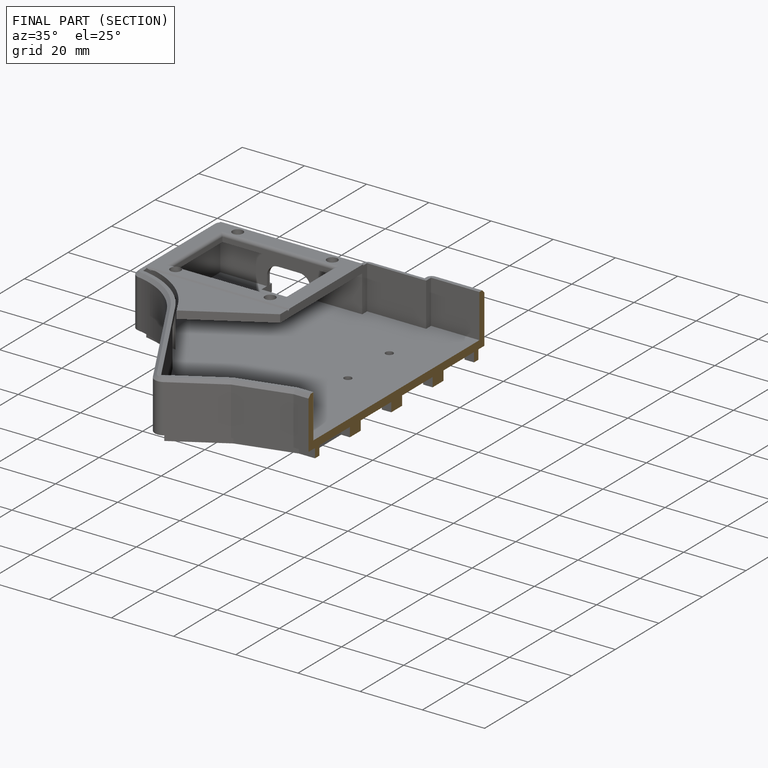
[diagram: finished part — half-section view (interior)]
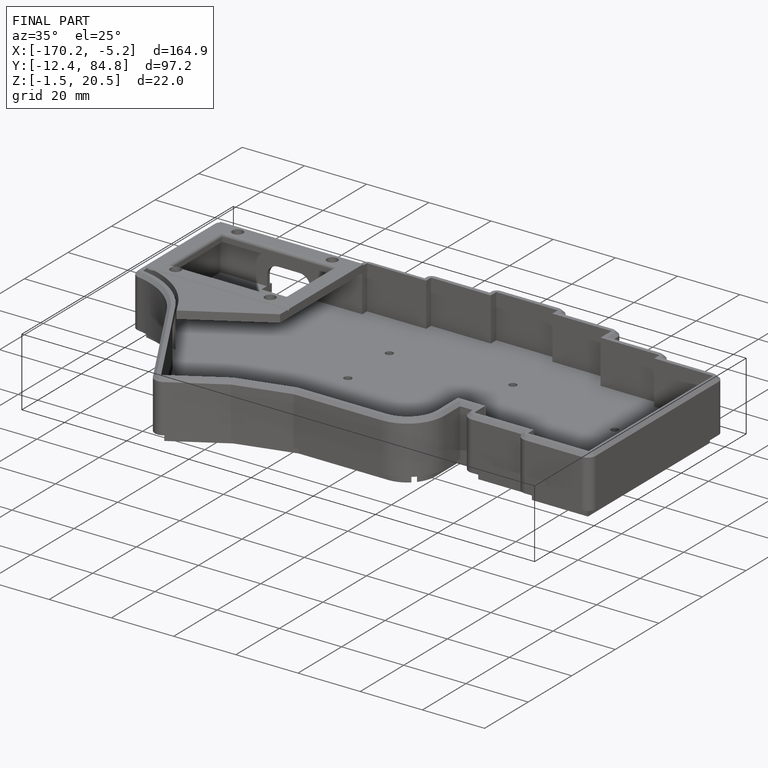
[diagram: finished part — iso view with bounding-box wireframe]
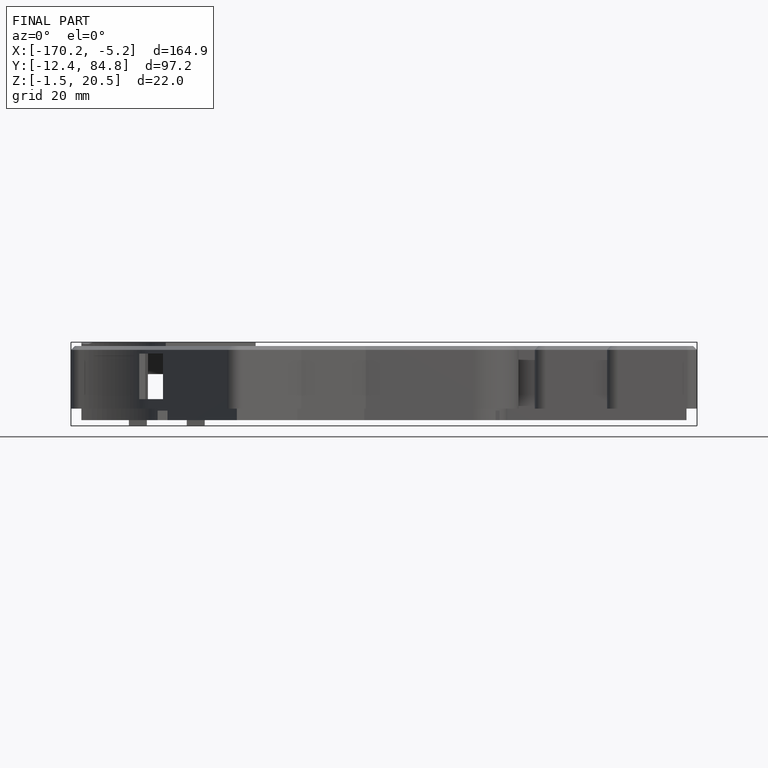
[diagram: finished part — front view with bounding-box wireframe]
